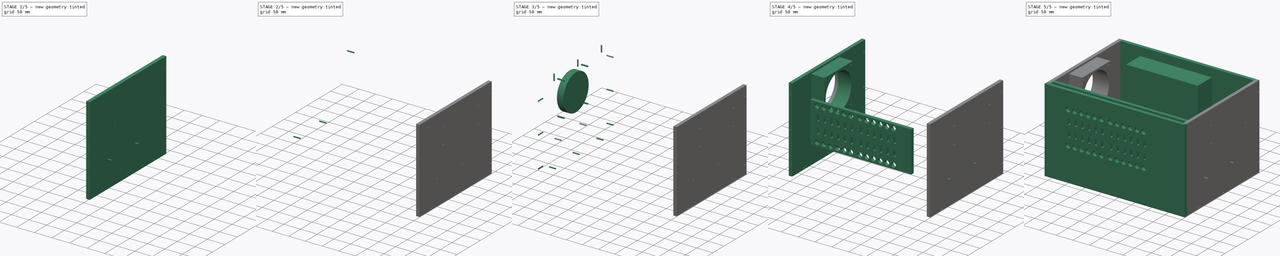
[diagram: build sequence overview — one tinted view per stage of 5, left to right]
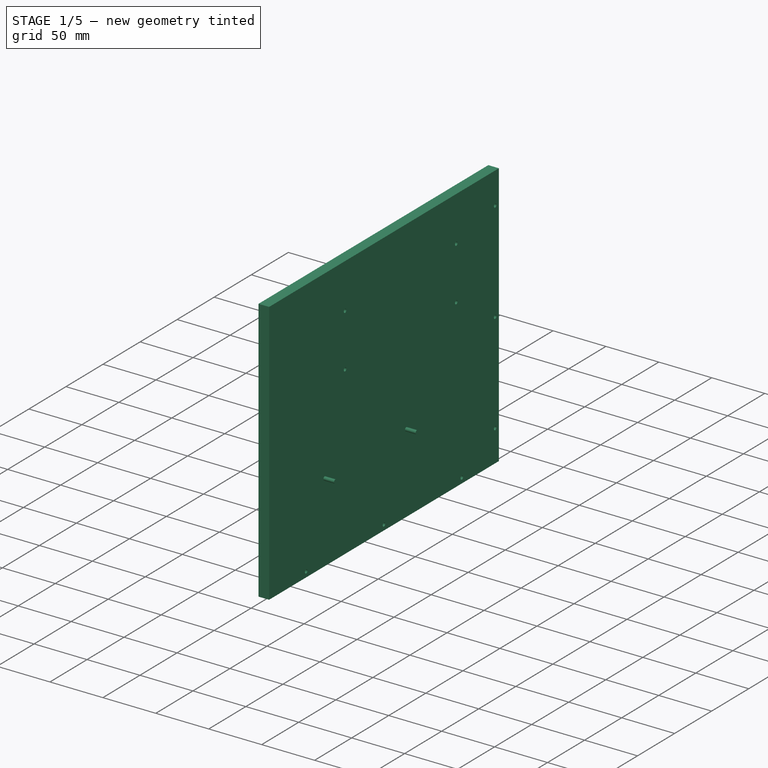
[diagram: stage 1 of 5 — iso view after this stage's code; geometry added in this stage tinted green]
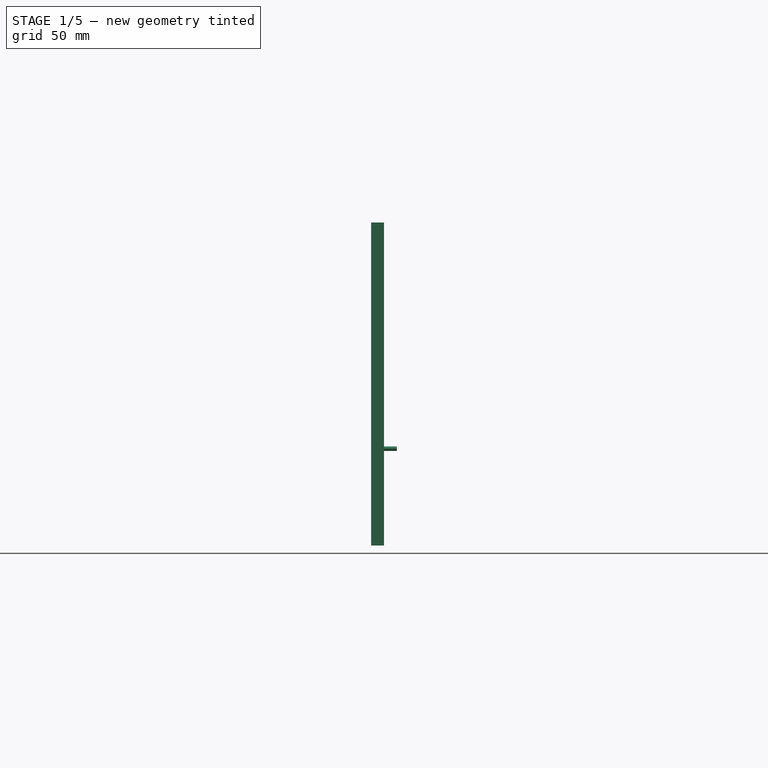
[diagram: stage 1 of 5 — front view after this stage's code; geometry added in this stage tinted green]
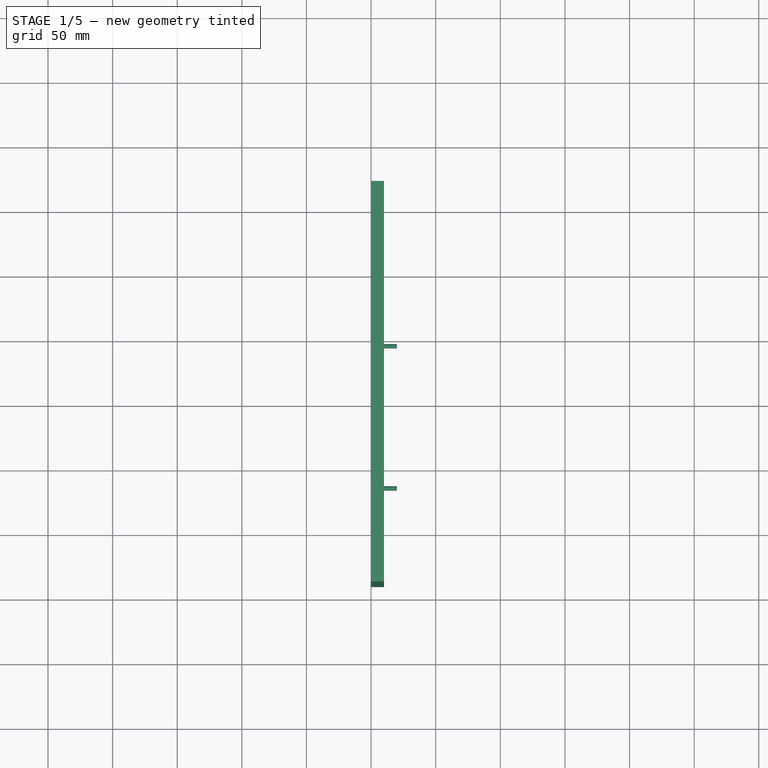
[diagram: stage 1 of 5 — top view after this stage's code; geometry added in this stage tinted green]
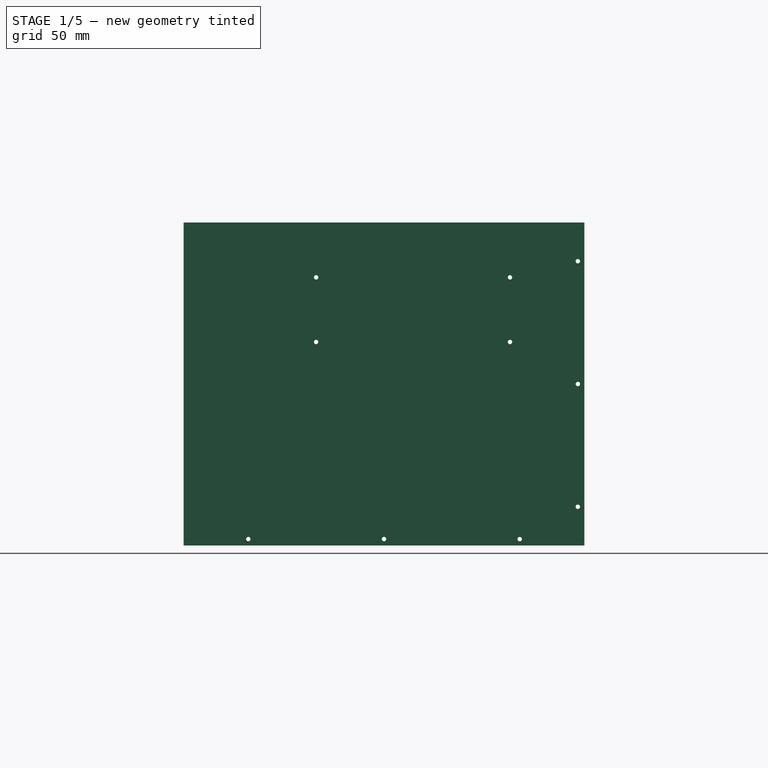
[diagram: stage 1 of 5 — right view after this stage's code; geometry added in this stage tinted green]
FCSTD DOCUMENT  (FreeCAD 0.16R6706 (Git))
Label: MSE-BOX
License: All rights reserved
LicenseURL: http://en.wikipedia.org/wiki/All_rights_reserved
objects: Drawing::FeatureViewPython×38, Part::Cylinder×34, Sketcher::SketchObject×16, PartDesign::Pad×15, Part::Cut×13, Part::MultiFuse×10, Drawing::FeatureViewPart×5, App::DocumentObjectGroup×3, Part::Box×1, Drawing::FeaturePage×1
note: 104 computed .brp shape members not serialized (recipe doc carries the construction recipe); baked Part::Feature solids carry a one-line shape summary decoded from their .brp

FEATURE [Sketcher::SketchObject] Sketch005  label="右侧板图"
  Placement = pos=(200,0,0) rot=(0.57735,0.57735,0.57735;2.0944rad)
  sketch-geometry (14):
    g0: LineSegment StartX=-140 StartY=240 StartZ=0 EndX=170 EndY=240 EndZ=0
    g1: LineSegment StartX=170 StartY=-10 StartZ=0 EndX=-140 EndY=-10 EndZ=0
    g2: LineSegment StartX=-140 StartY=-10 StartZ=0 EndX=-140 EndY=240 EndZ=0
    g3: LineSegment StartX=170 StartY=240 StartZ=0 EndX=170 EndY=-10 EndZ=0
    g4: Circle CenterX=165 CenterY=210 CenterZ=0 NormalX=0 NormalY=0 NormalZ=1 Radius=1.7
    g5: Circle CenterX=165 CenterY=115 CenterZ=0 NormalX=0 NormalY=0 NormalZ=1 Radius=1.7
    g6: Circle CenterX=165 CenterY=20 CenterZ=0 NormalX=0 NormalY=0 NormalZ=1 Radius=1.7
    g7: Circle CenterX=120 CenterY=-5 CenterZ=0 NormalX=0 NormalY=0 NormalZ=1 Radius=1.7
    g8: Circle CenterX=15 CenterY=-5 CenterZ=0 NormalX=0 NormalY=0 NormalZ=1 Radius=1.7
    g9: Circle CenterX=-90 CenterY=-5 CenterZ=0 NormalX=0 NormalY=0 NormalZ=1 Radius=1.7
    g10: Circle CenterX=-37.5 CenterY=197.5 CenterZ=0 NormalX=0 NormalY=0 NormalZ=1 Radius=1.7
    g11: Circle CenterX=-37.5 CenterY=147.5 CenterZ=0 NormalX=0 NormalY=0 NormalZ=1 Radius=1.7
    g12: Circle CenterX=112.5 CenterY=147.5 CenterZ=0 NormalX=0 NormalY=0 NormalZ=1 Radius=1.7
    g13: Circle CenterX=112.5 CenterY=197.5 CenterZ=0 NormalX=0 NormalY=0 NormalZ=1 Radius=1.7
  constraints (41):
    c: Coincident(g1,g2)
    c: Coincident(g2,g0)
    c: Horizontal(g0)
    c: Horizontal(g1)
    c: DistanceX(g0,g0) = 310
    c: Perpendicular(g2,g1)
    c: DistanceX(g0) = 170
    c: Coincident(g3,g0)
    c: Coincident(g3,g1)
    c: Perpendicular(g3,g1,g1) = 4.71239
    c: Radius(g4) = 1.7
    c: Radius(g9) = 1.7
    c: DistanceY(g-1,g9) = -5
    c: Radius(g8) = 1.7
    c: Radius(g5) = 1.7
    c: Radius(g6) = 1.7
    c: Radius(g7) = 1.7
    c: DistanceY(g-1,g8) = -5
    c: DistanceY(g-1,g7) = -5
    c: Distance(g6,g3) = 5
    c: Distance(g5,g3) = 5
    c: Distance(g4,g3) = 5
    c: Radius(g10) = 1.7
    c: Distance(g10,g0) = 42.5
    c: Equal(g10,g11)
    c: Equal(g11,g12)
    c: Equal(g12,g13)
    c: Distance(g11,g0) = 92.5
    c: Distance(g11,g2) = 102.5
    c: Distance(g13,g3) = 57.5
    c: Distance(g13,g0) = 42.5
    c: Distance(g12,g3) = 57.5
    c: Distance(g12,g0) = 92.5
    c: Distance(g4,g0) = 30
    c: Distance(g6,g1) = 30
    c: Distance(g0,g1) = 250
    c: DistanceY(g1,g-1) = 10
    c: Distance(g5,g1) = 125
    c: Distance(g7,g3) = 50
    c: Distance(g9,g2) = 50
    c: Distance(g8,g2) = 155
FEATURE [PartDesign::Pad] Pad005  label="右面板"
  Length = 10
  Length2 = 100
  Placement = pos=(200,0,0) rot=(0.57735,0.57735,0.57735;2.0944rad)
  Sketch = -> Sketch005
  Type = 0
FEATURE [Part::Box] Box  label="5V电源"
  Height = 115
  Length = 50
  Placement = pos=(150,-70,115) rot=(0,0,1;0rad)
  Width = 215
FEATURE [Part::Cylinder] Cylinder002  label="5V-M4-左下"
  Angle = 360
  Height = 61
  Placement = pos=(150,-37.5,147.5) rot=(0,1,0;1.5708rad)
  Radius = 1.7
FEATURE [Part::Cylinder] Cylinder004  label="5V-M4-左上"
  Angle = 360
  Height = 61
  Placement = pos=(150,-37.5,197.5) rot=(0,1,0;1.5708rad)
  Radius = 1.7
FEATURE [Part::Cylinder] Cylinder005  label="5V-M4-右下"
  Angle = 360
  Height = 61
  Placement = pos=(150,112.5,147.5) rot=(0,1,0;1.5708rad)
  Radius = 1.7
FEATURE [Part::Cylinder] Cylinder006  label="5V-M4-右上"
  Angle = 360
  Height = 61
  Placement = pos=(150,112.5,197.5) rot=(0,1,0;1.5708rad)
  Radius = 1.7
FEATURE [Part::MultiFuse] Fusion002  label="5V电源加螺丝"
  Shapes = -> [Cylinder006,Cylinder005,Cylinder004,Cylinder002,Box]
FEATURE [Part::Cut] Cut002  label="右侧开孔"
  Base = -> Pad005
  Tool = -> Fusion002
FEATURE [Part::Cylinder] Cylinder011  label="右侧前002"
  Angle = 360
  Height = 20
  Placement = pos=(205,-135,115) rot=(1,0,0;1.5708rad)
  Radius = 1.7
FEATURE [Part::Cylinder] Cylinder012  label="右侧前003"
  Angle = 360
  Height = 20
  Placement = pos=(205,-135,210) rot=(1,0,0;1.5708rad)
  Radius = 1.7
FEATURE [Part::Cut] Cut009
  Base = -> Cut002
  Tool = -> Cylinder011
FEATURE [Part::Cut] Cut010  label="ok"
  Base = -> Cut002
  Tool = -> Cylinder012
FEATURE [App::DocumentObjectGroup] ___  label="左边"
  Group = -> [Pad011,Cut012]
FEATURE [Part::Cylinder] Cylinder034  label="串口板右前002"
  Angle = 360
  Height = 20
  Placement = pos=(200,-65,65) rot=(0,1,0;1.5708rad)
  Radius = 1.7
FEATURE [Part::Cylinder] Cylinder035  label="串口板右后002"
  Angle = 360
  Height = 20
  Placement = pos=(200,45,65) rot=(0,1,0;1.5708rad)
  Radius = 1.7
FEATURE [Part::MultiFuse] Fusion010
  Shapes = -> [Cylinder034,Cylinder035]
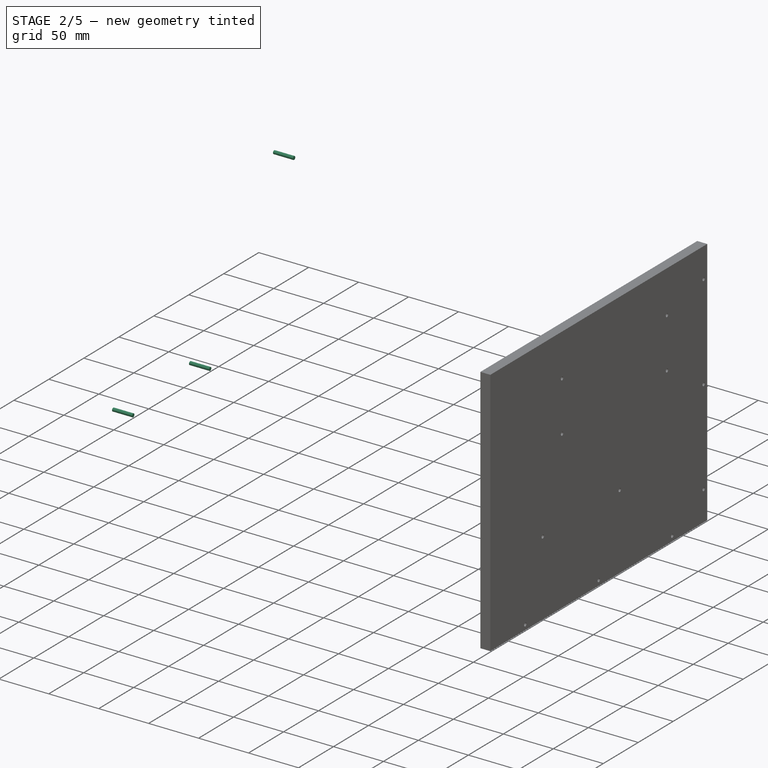
[diagram: stage 2 of 5 — iso view after this stage's code; geometry added in this stage tinted green]
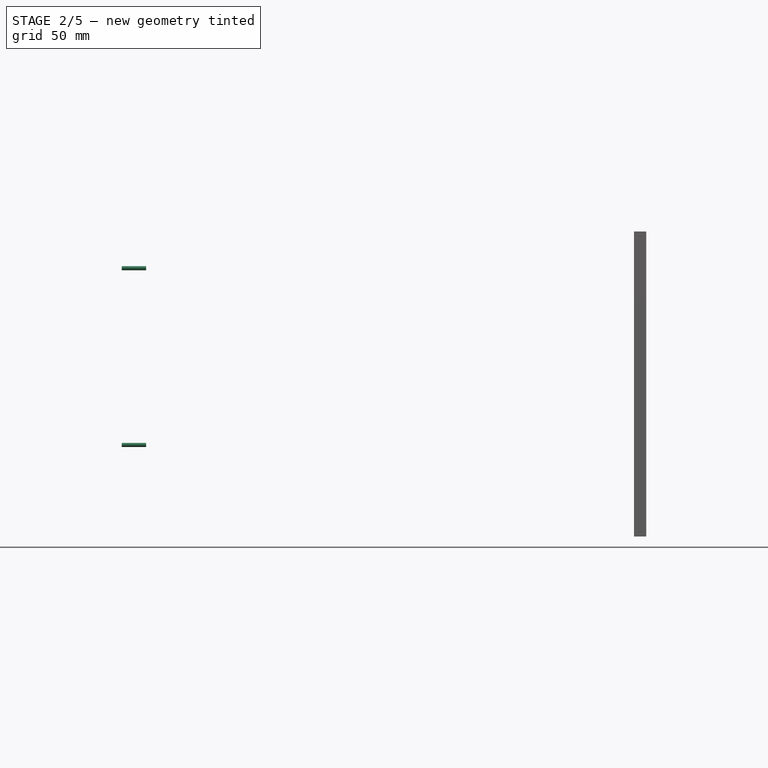
[diagram: stage 2 of 5 — front view after this stage's code; geometry added in this stage tinted green]
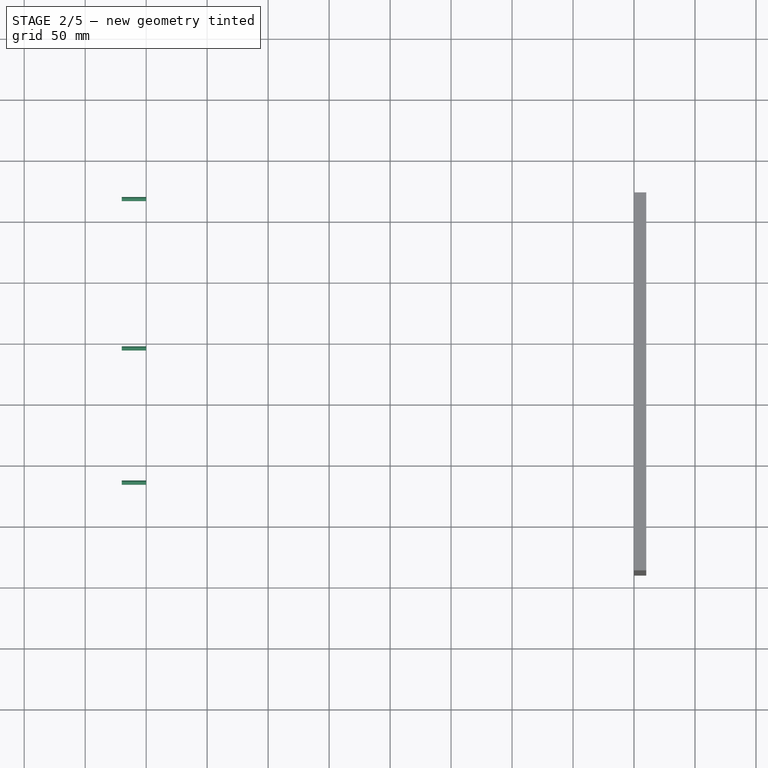
[diagram: stage 2 of 5 — top view after this stage's code; geometry added in this stage tinted green]
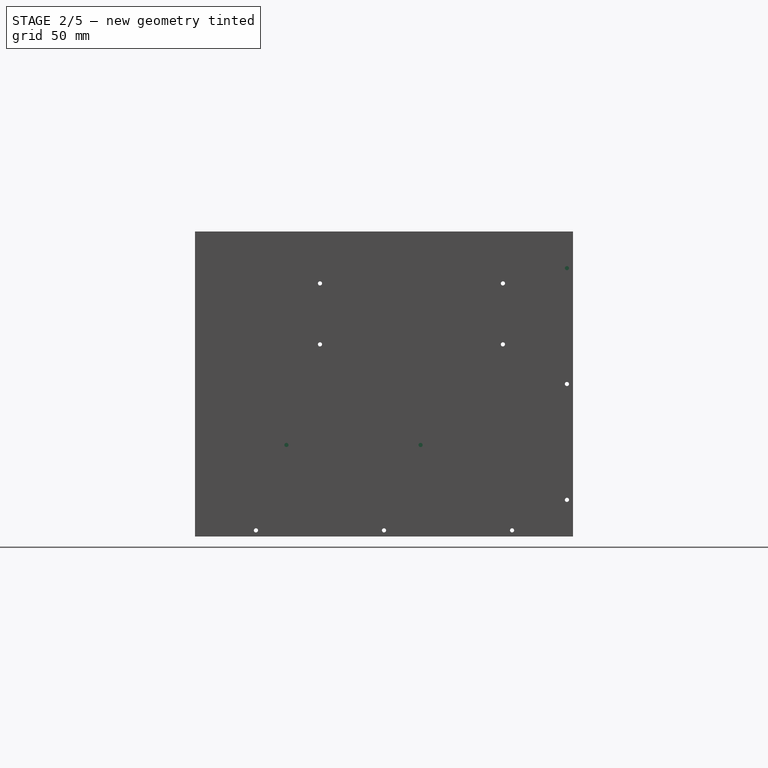
[diagram: stage 2 of 5 — right view after this stage's code; geometry added in this stage tinted green]
FEATURE [Part::Cylinder] Cylinder007  label="右侧-上001"
  Angle = 360
  Height = 20
  Placement = pos=(205,-90,235) rot=(0,0,1;0rad)
  Radius = 1.7
FEATURE [Part::Cylinder] Cylinder008  label="右侧-上002"
  Angle = 360
  Height = 20
  Placement = pos=(205,15,235) rot=(0,0,1;0rad)
  Radius = 1.7
FEATURE [Part::Cylinder] Cylinder009  label="右侧-上003"
  Angle = 360
  Height = 20
  Placement = pos=(205,120,235) rot=(0,0,1;0rad)
  Radius = 1.7
FEATURE [Part::Cylinder] Cylinder010  label="右侧前001"
  Angle = 360
  Height = 20
  Placement = pos=(205,-135,20) rot=(1,0,0;1.5708rad)
  Radius = 1.7
FEATURE [Part::Cut] Cut005
  Base = -> Cut002
  Tool = -> Cylinder007
FEATURE [Part::Cut] Cut006
  Base = -> Cut002
  Tool = -> Cylinder008
FEATURE [Part::Cut] Cut007
  Base = -> Cut002
  Tool = -> Cylinder009
FEATURE [Part::Cut] Cut008
  Base = -> Cut002
  Tool = -> Cylinder010
FEATURE [Part::MultiFuse] Fusion003  label="右侧开孔001"
  Shapes = -> [Cut005,Cut007,Cut006,Cut008,Cut009,Cut010]
FEATURE [Part::Cylinder] Cylinder019  label="串口板左前001"
  Angle = 360
  Height = 20
  Placement = pos=(-220,-65,65) rot=(0,1,0;1.5708rad)
  Radius = 1.7
FEATURE [Part::Cylinder] Cylinder020  label="串口板左后001"
  Angle = 360
  Height = 20
  Placement = pos=(-220,45,65) rot=(0,1,0;1.5708rad)
  Radius = 1.7
FEATURE [Part::Cylinder] Cylinder027  label="后3"
  Angle = 360
  Height = 20
  Placement = pos=(-220,165,210) rot=(0,1,0;1.5708rad)
  Radius = 1.7
FEATURE [Part::MultiFuse] Fusion008
  Shapes = -> [Cylinder019,Cylinder020]
FEATURE [Part::Cut] Cut013  label="右侧"
  Base = -> Fusion003
  Tool = -> Fusion010
FEATURE [App::DocumentObjectGroup] Group  label="右边"
  Group = -> [Cut013]
FEATURE [Drawing::FeatureViewPart] Ortho  label="Ortho_0_0"
  Direction = (1,0,0)
  HiddenWidth = 0.15
  LineWidth = 0.35
  Rotation = -90
  Scale = 0.5
  ShowHiddenLines = false
  ShowSmoothLines = false
  Source = -> Cut013
  Tolerance = 0.05
  ViewResult = <g id="Ortho_0_0"\n   transform="rotate(-90,207.5,176) translate(207.5,176) scale(0.5,0.5)"\n  >\n<g   stroke="rgb(0, 0, 0)"\n   stroke-width="0.7"\n   stroke-linecap="butt"\n   stroke-linejoin="miter"\n   fill="none"\n   transform="scale(1,-1)"\n  >\n<path id= "1" d=" M 240 140 L 240 -170 " />\n<path id= "2" d=" M -10 140 L 240 140 " />\n<path id= "3" d=" M 240 -170 L -10 -170 " />\n<path id= "4" d=" M -10 -170 L -10 140 " />\n<circle cx ="115" cy ="-165" r ="1.7" /><circle cx ="210" cy ="-165" r ="1.7" /><path d="M147.5 -114.2 A1.7 1.7 0 1 1 145.8 -112.5" /><path d="M145.8 -112.5 A1.7 1.7 0 0 1 147.5 -114.2" /><path d="M197.5 -114.2 A1.7 1.7 0 1 1 195.8 -112.5" /><path d="M195.8 -112.5 A1.7 1.7 0 0 1 197.5 -114.2" /><circle cx ="-5" cy ="-15" r ="1.7" /><circle cx ="20" cy ="-165" r ="1.7" /><circle cx ="-5" cy ="-120" r ="1.7" /><circle cx ="65" cy ="-45" r ="1.7" /><circle cx ="65" cy ="65" r ="1.7" /><path d="M147.5 35.8 A1.7 1.7 0 1 1 145.8 37.5" /><path d="M145.8 37.5 A1.7 1.7 0 0 1 147.5 35.8" /><path d="M197.5 35.8 A1.7 1.7 0 1 1 195.8 37.5" /><path d="M195.8 37.5 A1.7 1.7 0 0 1 197.5 35.8" /><circle cx ="-5" cy ="90" r ="1.7" /></g>\n</g>
  Visible = true
  X = 207.5
  Y = 176
FEATURE [Drawing::FeatureViewPart] Ortho001  label="Ortho_-1_0"
  Direction = (0,-1,0)
  HiddenWidth = 0.15
  LineWidth = 0.35
  Rotation = 90
  Scale = 0.5
  ShowHiddenLines = false
  ShowSmoothLines = false
  Source = -> Cut013
  Tolerance = 0.05
  ViewResult = <g id="Ortho_-1_0"\n   transform="rotate(90,-23.75,176) translate(-23.75,176) scale(0.5,0.5)"\n  >\n<g   stroke="rgb(0, 0, 0)"\n   stroke-width="0.7"\n   stroke-linecap="butt"\n   stroke-linejoin="miter"\n   fill="none"\n   transform="scale(1,-1)"\n  >\n<path id= "1" d=" M -240 200 L -240 210 " />\n<path id= "2" d=" M 10 200 L 10 210 " />\n<path id= "3" d=" M 10 200 L -240 200 " />\n<path id= "4" d=" M 10 210 L -240 210 " />\n<circle cx ="-210" cy ="205" r ="1.7" /><circle cx ="-115" cy ="205" r ="1.7" /><circle cx ="-20" cy ="205" r ="1.7" /></g>\n</g>
  Visible = true
  X = -23.75
  Y = 176
FEATURE [Drawing::FeatureViewPart] Ortho002  label="Ortho_1_0"
  Direction = (0,1,0)
  HiddenWidth = 0.15
  LineWidth = 0.35
  Rotation = -90
  Scale = 0.5
  ShowHiddenLines = false
  ShowSmoothLines = false
  Source = -> Cut013
  Tolerance = 0.05
  ViewResult = <g id="Ortho_1_0"\n   transform="rotate(-90,453.75,176) translate(453.75,176) scale(0.5,0.5)"\n  >\n<g   stroke="rgb(0, 0, 0)"\n   stroke-width="0.7"\n   stroke-linecap="butt"\n   stroke-linejoin="miter"\n   fill="none"\n   transform="scale(1,-1)"\n  >\n<path id= "1" d=" M 240 200 L 240 210 " />\n<path id= "2" d=" M 240 200 L -10 200 " />\n<path id= "3" d=" M 240 210 L -10 210 " />\n<path id= "4" d=" M -10 200 L -10 210 " />\n</g>\n</g>
  Visible = true
  X = 453.75
  Y = 176
FEATURE [Drawing::FeatureViewPart] Ortho003  label="Ortho_0_1"
  Direction = (0,0,1)
  HiddenWidth = 0.15
  LineWidth = 0.35
  Rotation = 90
  Scale = 0.5
  ShowHiddenLines = false
  ShowSmoothLines = false
  Source = -> Cut013
  Tolerance = 0.05
  ViewResult = <g id="Ortho_0_1"\n   transform="rotate(90,207.5,-69.5) translate(207.5,-69.5) scale(0.5,0.5)"\n  >\n<g   stroke="rgb(0, 0, 0)"\n   stroke-width="0.7"\n   stroke-linecap="butt"\n   stroke-linejoin="miter"\n   fill="none"\n   transform="scale(1,-1)"\n  >\n<path id= "1" d=" M 200 -140 L 210 -140 " />\n<path id= "2" d=" M 200 -140 L 200 170 " />\n<path id= "3" d=" M 210 -140 L 210 170 " />\n<path id= "4" d=" M 200 170 L 210 170 " />\n<circle cx ="205" cy ="-90" r ="1.7" /><circle cx ="205" cy ="15" r ="1.7" /><circle cx ="205" cy ="120" r ="1.7" /><path id= "8" d=" M 200 121.7 L 210 121.7 " />\n</g>\n</g>
  Visible = true
  X = 207.5
  Y = -69.5
FEATURE [Drawing::FeatureViewPart] Ortho004  label="Ortho_0_-1"
  Direction = (0,0,-1)
  HiddenWidth = 0.15
  LineWidth = 0.35
  Rotation = 90
  Scale = 0.5
  ShowHiddenLines = false
  ShowSmoothLines = false
  Source = -> Cut013
  Tolerance = 0.05
  ViewResult = <blob: 3025 chars omitted>
  Visible = true
  X = 207.5
  Y = 306.5
FEATURE [Drawing::FeatureViewPython] dim001  # drawing view (typed FeaturePython)
  Rotation = 0
  ViewResult = <g> \n  <line x1="137.500000" y1="28.500000" x2="137.500000" y2="23.291591" style="stroke:rgb(0,0,255);stroke-width:0.50" />\n<line x1="292.500000" y1="28.500000" x2="292.500000" y2="23.291591" style="stroke:rgb(0,0,255);stroke-width:0.50" />\n<line x1="137.500000" y1="24.291591" x2="292.500000" y2="24.291591" style="stroke:rgb(0,0,255);stroke-width:0.50" /> \n  <polygon points="292.500000,24.291591 289.500000,23.291591 288.500000,24.291591 289.500000,25.291591" style="fill:rgb(0,0,255);stroke:rgb(0,0,255);stroke-width:0" /><polygon points="137.500000,24.291591 140.500000,25.291591 141.500000,24.291591 140.500000,23.291591" style="fill:rgb(0,0,255);stroke:rgb(0,0,255);stroke-width:0" /> \n  <text x="215.000000" y="22.291591" font-family="inherit" font-size="3.6" fill="rgb(0,0,255)" text-anchor="middle" transform="rotate(0.000000 215.000000,22.291591)" >310</text> </g>
  Visible = true
  X = 0
  Y = 0
  arrowL1 = 3
  arrowL2 = 1
  arrowW = 2
  arrow_scheme = 0
  autoPlaceOffset = 2
  autoPlaceText = true
  click1_x = 199.691
  click1_y = 24.2916
  click2_x = 199.691
  click2_y = 24.2916
  comma_decimal_place = false
  dimension_line_overshoot = 1
  gap_datum_points = 2
  halfDimension_linear = false
  lineColor = rgb(0,0,255)
  strokeWidth = 0.5
  textFormat_linear = %(value)3.3f
  textRenderer_color = rgb(0,0,255)
  textRenderer_family = inherit
  textRenderer_size = 3.6
  unit_custom_scale = 1
  unit_scheme = 0
FEATURE [Drawing::FeatureViewPython] dim002  # drawing view (typed FeaturePython)
  Rotation = 0
  ViewResult = <g> \n  <line x1="74.250000" y1="181.000000" x2="69.016940" y2="181.000000" style="stroke:rgb(0,0,255);stroke-width:0.50" />\n<line x1="74.250000" y1="56.000000" x2="69.016940" y2="56.000000" style="stroke:rgb(0,0,255);stroke-width:0.50" />\n<line x1="70.016940" y1="181.000000" x2="70.016940" y2="56.000000" style="stroke:rgb(0,0,255);stroke-width:0.50" /> \n  <polygon points="70.016940,56.000000 69.016940,59.000000 70.016940,60.000000 71.016940,59.000000" style="fill:rgb(0,0,255);stroke:rgb(0,0,255);stroke-width:0" /><polygon points="70.016940,181.000000 71.016940,178.000000 70.016940,177.000000 69.016940,178.000000" style="fill:rgb(0,0,255);stroke:rgb(0,0,255);stroke-width:0" /> \n  <text x="68.016940" y="118.500000" font-family="inherit" font-size="3.6" fill="rgb(0,0,255)" text-anchor="middle" transform="rotate(-90.000000 68.016940,118.500000)" >250</text> </g>
  Visible = true
  X = 0
  Y = 0
  arrowL1 = 3
  arrowL2 = 1
  arrowW = 2
  arrow_scheme = 0
  autoPlaceOffset = 2
  autoPlaceText = true
  click1_x = 70.0169
  click1_y = 94.6658
  click2_x = 70.0169
  click2_y = 94.6658
  comma_decimal_place = false
  dimension_line_overshoot = 1
  gap_datum_points = 2
  halfDimension_linear = false
  lineColor = rgb(0,0,255)
  strokeWidth = 0.5
  textFormat_linear = %(value)3.3f
  textRenderer_color = rgb(0,0,255)
  textRenderer_family = inherit
  textRenderer_size = 3.6
  unit_custom_scale = 1
  unit_scheme = 0
FEATURE [Drawing::FeatureViewPython] dim003  # drawing view (typed FeaturePython)
  Rotation = 0
  ViewResult = <g> \n  <line x1="137.500000" y1="54.000000" x2="137.500000" y2="51.155475" style="stroke:rgb(0,0,255);stroke-width:0.50" />\n<line x1="292.500000" y1="54.000000" x2="292.500000" y2="51.155475" style="stroke:rgb(0,0,255);stroke-width:0.50" />\n<line x1="137.500000" y1="52.155475" x2="292.500000" y2="52.155475" style="stroke:rgb(0,0,255);stroke-width:0.50" /> \n  <polygon points="292.500000,52.155475 289.500000,51.155475 288.500000,52.155475 289.500000,53.155475" style="fill:rgb(0,0,255);stroke:rgb(0,0,255);stroke-width:0" /><polygon points="137.500000,52.155475 140.500000,53.155475 141.500000,52.155475 140.500000,51.155475" style="fill:rgb(0,0,255);stroke:rgb(0,0,255);stroke-width:0" /> \n  <text x="215.000000" y="50.155475" font-family="inherit" font-size="3.6" fill="rgb(0,0,255)" text-anchor="middle" transform="rotate(0.000000 215.000000,50.155475)" >310</text> </g>
  Visible = true
  X = 0
  Y = 0
  arrowL1 = 3
  arrowL2 = 1
  arrowW = 2
  arrow_scheme = 0
  autoPlaceOffset = 2
  autoPlaceText = true
  click1_x = 191.832
  click1_y = 52.1555
  click2_x = 191.832
  click2_y = 52.1555
  comma_decimal_place = false
  dimension_line_overshoot = 1
  gap_datum_points = 2
  halfDimension_linear = false
  lineColor = rgb(0,0,255)
  strokeWidth = 0.5
  textFormat_linear = %(value)3.3f
  textRenderer_color = rgb(0,0,255)
  textRenderer_family = inherit
  textRenderer_size = 3.6
  unit_custom_scale = 1
  unit_scheme = 0
FEATURE [Drawing::FeatureViewPython] dim004  # drawing view (typed FeaturePython)
  Rotation = 0
  ViewResult = <g> \n  <line x1="135.500000" y1="181.000000" x2="131.174835" y2="181.000000" style="stroke:rgb(0,0,255);stroke-width:0.50" />\n<line x1="135.500000" y1="56.000000" x2="131.174835" y2="56.000000" style="stroke:rgb(0,0,255);stroke-width:0.50" />\n<line x1="132.174835" y1="181.000000" x2="132.174835" y2="56.000000" style="stroke:rgb(0,0,255);stroke-width:0.50" /> \n  <polygon points="132.174835,56.000000 131.174835,59.000000 132.174835,60.000000 133.174835,59.000000" style="fill:rgb(0,0,255);stroke:rgb(0,0,255);stroke-width:0" /><polygon points="132.174835,181.000000 133.174835,178.000000 132.174835,177.000000 131.174835,178.000000" style="fill:rgb(0,0,255);stroke:rgb(0,0,255);stroke-width:0" /> \n  <text x="130.174835" y="118.500000" font-family="inherit" font-size="3.6" fill="rgb(0,0,255)" text-anchor="middle" transform="rotate(-90.000000 130.174835,118.500000)" >250</text> </g>
  Visible = true
  X = 0
  Y = 0
  arrowL1 = 3
  arrowL2 = 1
  arrowW = 2
  arrow_scheme = 0
  autoPlaceOffset = 2
  autoPlaceText = true
  click1_x = 132.175
  click1_y = 96.4519
  click2_x = 132.175
  click2_y = 96.4519
  comma_decimal_place = false
  dimension_line_overshoot = 1
  gap_datum_points = 2
  halfDimension_linear = false
  lineColor = rgb(0,0,255)
  strokeWidth = 0.5
  textFormat_linear = %(value)3.3f
  textRenderer_color = rgb(0,0,255)
  textRenderer_family = inherit
  textRenderer_size = 3.6
  unit_custom_scale = 1
  unit_scheme = 0
FEATURE [Drawing::FeatureViewPython] dim005  # drawing view (typed FeaturePython)
  Rotation = 0
  ViewResult = <g> \n  <line x1="135.500000" y1="35.500000" x2="127.602542" y2="35.500000" style="stroke:rgb(0,0,255);stroke-width:0.50" />\n<line x1="135.500000" y1="30.500000" x2="127.602542" y2="30.500000" style="stroke:rgb(0,0,255);stroke-width:0.50" />\n<line x1="128.602542" y1="35.500000" x2="128.602542" y2="30.500000" style="stroke:rgb(0,0,255);stroke-width:0.50" /> \n  <polygon points="128.602542,30.500000 129.602542,27.500000 128.602542,26.500000 127.602542,27.500000" style="fill:rgb(0,0,255);stroke:rgb(0,0,255);stroke-width:0" /><polygon points="128.602542,35.500000 127.602542,38.500000 128.602542,39.500000 129.602542,38.500000" style="fill:rgb(0,0,255);stroke:rgb(0,0,255);stroke-width:0" /> \n  <text x="126.602542" y="33.000000" font-family="inherit" font-size="3.6" fill="rgb(0,0,255)" text-anchor="middle" transform="rotate(-90.000000 126.602542,33.000000)" >10</text> </g>
  Visible = true
  X = 0
  Y = 0
  arrowL1 = 3
  arrowL2 = 1
  arrowW = 2
  arrow_scheme = 0
  autoPlaceOffset = 2
  autoPlaceText = true
  click1_x = 128.603
  click1_y = 32.5079
  click2_x = 128.603
  click2_y = 32.5079
  comma_decimal_place = false
  dimension_line_overshoot = 1
  gap_datum_points = 2
  halfDimension_linear = false
  lineColor = rgb(0,0,255)
  strokeWidth = 0.5
  textFormat_linear = %(value)3.3f
  textRenderer_color = rgb(0,0,255)
  textRenderer_family = inherit
  textRenderer_size = 3.6
  unit_custom_scale = 1
  unit_scheme = 0
FEATURE [Drawing::FeatureViewPython] dim006  # drawing view (typed FeaturePython)
  Rotation = 0
  ViewResult = <g> \n  <line x1="81.250000" y1="54.000000" x2="81.250000" y2="49.369329" style="stroke:rgb(0,0,255);stroke-width:0.50" />\n<line x1="76.250000" y1="54.000000" x2="76.250000" y2="49.369329" style="stroke:rgb(0,0,255);stroke-width:0.50" />\n<line x1="81.250000" y1="50.369329" x2="76.250000" y2="50.369329" style="stroke:rgb(0,0,255);stroke-width:0.50" /> \n  <polygon points="76.250000,50.369329 73.250000,49.369329 72.250000,50.369329 73.250000,51.369329" style="fill:rgb(0,0,255);stroke:rgb(0,0,255);stroke-width:0" /><polygon points="81.250000,50.369329 84.250000,51.369329 85.250000,50.369329 84.250000,49.369329" style="fill:rgb(0,0,255);stroke:rgb(0,0,255);stroke-width:0" /> \n  <text x="78.750000" y="48.369329" font-family="inherit" font-size="3.6" fill="rgb(0,0,255)" text-anchor="middle" transform="rotate(-0.000000 78.750000,48.369329)" >10</text> </g>
  Visible = true
  X = 0
  Y = 0
  arrowL1 = 3
  arrowL2 = 1
  arrowW = 2
  arrow_scheme = 0
  autoPlaceOffset = 2
  autoPlaceText = true
  click1_x = 76.0898
  click1_y = 50.3693
  click2_x = 76.0898
  click2_y = 50.3693
  comma_decimal_place = false
  dimension_line_overshoot = 1
  gap_datum_points = 2
  halfDimension_linear = false
  lineColor = rgb(0,0,255)
  strokeWidth = 0.5
  textFormat_linear = %(value)3.3f
  textRenderer_color = rgb(0,0,255)
  textRenderer_family = inherit
  textRenderer_size = 3.6
  unit_custom_scale = 1
  unit_scheme = 0
FEATURE [Drawing::FeatureViewPython] centerLines001  # drawing view (typed FeaturePython)
  Rotation = 0
  ViewResult = <g transform="scale(0.500000,0.500000)" stroke="rgb(0,0,255)"  stroke-width="0.640000" > <path d="M 430.000000,112.000000 L 430.000000,118.000000 M 430.000000,122.000000 L 430.000000,134.000000 M 430.000000,138.000000 L 430.000000,144.000000 M 430.000000,148.000000 L 430.000000,160.000000 M 430.000000,164.000000 L 430.000000,170.000000 M 430.000000,174.000000 L 430.000000,186.000000 M 430.000000,190.000000 L 430.000000,196.000000 M 430.000000,200.000000 L 430.000000,212.000000 M 430.000000,216.000000 L 430.000000,222.000000 M 430.000000,226.000000 L 430.000000,238.000000 M 430.000000,242.000000 L 430.000000,248.000000 M 430.000000,252.000000 L 430.000000,264.000000 M 430.000000,268.000000 L 430.000000,274.000000 M 430.000000,278.000000 L 430.000000,290.000000 M 430.000000,294.000000 L 430.000000,300.000000 M 430.000000,304.000000 L 430.000000,316.000000 M 430.000000,320.000000 L 430.000000,326.000000 M 430.000000,330.000000 L 430.000000,342.000000 M 430.000000,346.000000 L 430.000000,352.000000 M 430.000000,356.000000 L 430.000000,368.000000 M 430.000000,372.000000 L 430.000000,378.000000 M 430.000000,382.000000 L 430.000000,394.000000 M 430.000000,398.000000 L 430.000000,404.000000 M 430.000000,408.000000 L 430.000000,420.000000 M 430.000000,424.000000 L 430.000000,430.000000 "/>\n<path d="M 430.000000,112.000000 L 430.000000,106.000000 M 430.000000,102.000000 L 430.000000,90.000000 M 430.000000,86.000000 L 430.000000,80.000000 M 430.000000,76.000000 L 430.000000,64.000000 M 430.000000,60.000000 L 430.000000,54.000000 M 430.000000,50.000000 L 430.000000,38.000000 M 430.000000,34.000000 L 430.000000,32.150636 "/> </g> 
  Visible = true
  X = 0
  Y = 0
  centerLine_color = rgb(0,0,255)
  centerLine_len_dash = 6
  centerLine_len_dot = 3
  centerLine_len_gap = 2
  centerLine_width = 0.32
  click1_x = 220.41
  click1_y = 216.124
  click2_x = 214.695
  click2_y = 16.0753
FEATURE [Drawing::FeatureViewPython] centerLines002  # drawing view (typed FeaturePython)
  Rotation = 0
  ViewResult = <blob: 2328 chars omitted>
  Visible = true
  X = 0
  Y = 0
  centerLine_color = rgb(0,0,255)
  centerLine_len_dash = 6
  centerLine_len_dot = 3
  centerLine_len_gap = 2
  centerLine_width = 0.32
  click1_x = 357.587
  click1_y = 117.171
  click2_x = 60.729
  click2_y = 119.315
FEATURE [Drawing::FeatureViewPython] dia001  # drawing view (typed FeaturePython)
  Rotation = 0
  ViewResult = <g>  <circle cx ="162.500000" cy ="33.000000" r="0.250000" stroke="none" fill="rgb(0,0,255)" /> \n<line x1="150.036299" y1="42.510285" x2="163.175747" y2="33.515621" style="stroke:rgb(0,0,255);stroke-width:0.50" />\n<polygon points="161.824253,32.484379 160.045875,29.869542 158.644265,30.057925 158.832648,31.459535" style="fill:rgb(0,0,255);stroke:rgb(0,0,255);stroke-width:0" />\n<polygon points="163.175747,33.515621 164.954125,36.130458 166.355735,35.942075 166.167352,34.540465" style="fill:rgb(0,0,255);stroke:rgb(0,0,255);stroke-width:0" />\n<line x1="150.036299" y1="42.510285" x2="140.033879" y2="42.510285" style="stroke:rgb(0,0,255);stroke-width:0.50" />\n<text x="145.035089" y="40.510285" font-family="inherit" font-size="3.6" fill="rgb(0,0,255)" text-anchor="middle" transform="rotate(0.000000 145.035089,40.510285)" >Ø3.4</text> </g>
  Visible = true
  X = 0
  Y = 0
  arrowL1 = 3
  arrowL2 = 1
  arrowW = 2
  arrow_scheme = 0
  autoPlaceOffset = 2
  autoPlaceText = true
  centerPointDia = 0.5
  click1_x = 150.036
  click1_y = 42.5103
  click2_x = 140.034
  click2_y = 42.5103
  click3_x = 140.034
  click3_y = 42.5103
  comma_decimal_place = false
  lineColor = rgb(0,0,255)
  strokeWidth = 0.5
  textFormat_circular = Ø%(value)3.3f
  textRenderer_color = rgb(0,0,255)
  textRenderer_family = inherit
  textRenderer_size = 3.6
  unit_custom_scale = 1
  unit_scheme = 0
FEATURE [Drawing::FeatureViewPython] dia002  # drawing view (typed FeaturePython)
  Rotation = 0
  ViewResult = <g>  <circle cx ="78.750000" cy ="71.000000" r="0.250000" stroke="none" fill="rgb(0,0,255)" /> \n<line x1="87.521174" y1="65.372959" x2="79.465431" y2="71.458976" style="stroke:rgb(0,0,255);stroke-width:0.50" />\n<polygon points="78.034569,70.541024 76.049491,68.079426 74.667837,68.381137 74.969548,69.762792" style="fill:rgb(0,0,255);stroke:rgb(0,0,255);stroke-width:0" />\n<polygon points="79.465431,71.458976 81.450509,73.920574 82.832163,73.618863 82.530452,72.237208" style="fill:rgb(0,0,255);stroke:rgb(0,0,255);stroke-width:0" />\n<line x1="87.521174" y1="65.372959" x2="95.737448" y2="65.372959" style="stroke:rgb(0,0,255);stroke-width:0.50" />\n<text x="91.629311" y="63.372959" font-family="inherit" font-size="3.6" fill="rgb(0,0,255)" text-anchor="middle" transform="rotate(0.000000 91.629311,63.372959)" >Ø3.4</text> </g>
  Visible = true
  X = 0
  Y = 0
  arrowL1 = 3
  arrowL2 = 1
  arrowW = 2
  arrow_scheme = 0
  autoPlaceOffset = 2
  autoPlaceText = true
  centerPointDia = 0.5
  click1_x = 87.5212
  click1_y = 65.373
  click2_x = 95.7374
  click2_y = 65.373
  click3_x = 95.7374
  click3_y = 65.373
  comma_decimal_place = false
  lineColor = rgb(0,0,255)
  strokeWidth = 0.5
  textFormat_circular = Ø%(value)3.3f
  textRenderer_color = rgb(0,0,255)
  textRenderer_family = inherit
  textRenderer_size = 3.6
  unit_custom_scale = 1
  unit_scheme = 0
FEATURE [Drawing::FeatureViewPython] dia004  # drawing view (typed FeaturePython)
  Rotation = 0
  ViewResult = <g>  <circle cx ="188.750000" cy ="77.250000" r="0.250000" stroke="none" fill="rgb(0,0,255)" /> \n<line x1="180.036709" y1="71.108839" x2="189.444776" y2="77.739680" style="stroke:rgb(0,0,255);stroke-width:0.50" />\n<polygon points="188.055224,76.760320 186.179170,74.214652 184.785693,74.455941 185.026981,75.849418" style="fill:rgb(0,0,255);stroke:rgb(0,0,255);stroke-width:0" />\n<polygon points="189.444776,77.739680 191.320830,80.285348 192.714307,80.044059 192.473019,78.650582" style="fill:rgb(0,0,255);stroke:rgb(0,0,255);stroke-width:0" />\n<line x1="180.036709" y1="71.108839" x2="172.337026" y2="71.108839" style="stroke:rgb(0,0,255);stroke-width:0.50" />\n<text x="176.186868" y="69.108839" font-family="inherit" font-size="3.6" fill="rgb(0,0,255)" text-anchor="middle" transform="rotate(0.000000 176.186868,69.108839)" >Ø3.4</text> </g>
  Visible = true
  X = 0
  Y = 0
  arrowL1 = 3
  arrowL2 = 1
  arrowW = 2
  arrow_scheme = 0
  autoPlaceOffset = 2
  autoPlaceText = true
  centerPointDia = 0.5
  click1_x = 180.037
  click1_y = 71.1088
  click2_x = 172.337
  click2_y = 71.1088
  click3_x = 172.337
  click3_y = 71.1088
  comma_decimal_place = false
  lineColor = rgb(0,0,255)
  strokeWidth = 0.5
  textFormat_circular = Ø%(value)3.3f
  textRenderer_color = rgb(0,0,255)
  textRenderer_family = inherit
  textRenderer_size = 3.6
  unit_custom_scale = 1
  unit_scheme = 0
FEATURE [Drawing::FeatureViewPython] dia005  # drawing view (typed FeaturePython)
  Rotation = 0
  ViewResult = <g>  <circle cx ="189.600000" cy ="103.100000" r="0.250000" stroke="none" fill="rgb(0,0,255)" /> \n<line x1="180.942554" y1="97.151885" x2="190.300582" y2="103.581336" style="stroke:rgb(0,0,255);stroke-width:0.50" />\n<polygon points="188.899418,102.618664 186.993053,100.095615 185.602561,100.353551 185.860497,101.744044" style="fill:rgb(0,0,255);stroke:rgb(0,0,255);stroke-width:0" />\n<polygon points="190.300582,103.581336 192.206947,106.104385 193.597439,105.846449 193.339503,104.455956" style="fill:rgb(0,0,255);stroke:rgb(0,0,255);stroke-width:0" />\n<line x1="180.942554" y1="97.151885" x2="173.922255" y2="97.151885" style="stroke:rgb(0,0,255);stroke-width:0.50" />\n<text x="177.432405" y="95.151885" font-family="inherit" font-size="3.6" fill="rgb(0,0,255)" text-anchor="middle" transform="rotate(0.000000 177.432405,95.151885)" >Ø3.4</text> </g>
  Visible = true
  X = 0
  Y = 0
  arrowL1 = 3
  arrowL2 = 1
  arrowW = 2
  arrow_scheme = 0
  autoPlaceOffset = 2
  autoPlaceText = true
  centerPointDia = 0.5
  click1_x = 180.943
  click1_y = 97.1519
  click2_x = 173.922
  click2_y = 97.3783
  click3_x = 173.922
  click3_y = 97.3783
  comma_decimal_place = false
  lineColor = rgb(0,0,255)
  strokeWidth = 0.5
  textFormat_circular = Ø%(value)3.3f
  textRenderer_color = rgb(0,0,255)
  textRenderer_family = inherit
  textRenderer_size = 3.6
  unit_custom_scale = 1
  unit_scheme = 0
FEATURE [Drawing::FeatureViewPython] dia003  # drawing view (typed FeaturePython)
  Rotation = 0
  ViewResult = <g>  <circle cx ="162.500000" cy ="178.500000" r="0.250000" stroke="none" fill="rgb(0,0,255)" /> \n<line x1="156.109197" y1="171.470056" x2="163.071769" y2="179.128952" style="stroke:rgb(0,0,255);stroke-width:0.50" />\n<polygon points="161.928231,177.871048 160.650165,174.978550 159.237552,174.911277 159.170279,176.323889" style="fill:rgb(0,0,255);stroke:rgb(0,0,255);stroke-width:0" />\n<polygon points="163.071769,179.128952 164.349835,182.021450 165.762448,182.088723 165.829721,180.676111" style="fill:rgb(0,0,255);stroke:rgb(0,0,255);stroke-width:0" />\n<line x1="156.109197" y1="171.470056" x2="151.107987" y2="171.470056" style="stroke:rgb(0,0,255);stroke-width:0.50" />\n<text x="153.608592" y="169.470056" font-family="inherit" font-size="3.6" fill="rgb(0,0,255)" text-anchor="middle" transform="rotate(0.000000 153.608592,169.470056)" >Ø3.4</text> </g>
  Visible = true
  X = 0
  Y = 0
  arrowL1 = 3
  arrowL2 = 1
  arrowW = 2
  arrow_scheme = 0
  autoPlaceOffset = 2
  autoPlaceText = true
  centerPointDia = 0.5
  click1_x = 156.109
  click1_y = 171.47
  click2_x = 151.108
  click2_y = 172.542
  click3_x = 151.108
  click3_y = 172.542
  comma_decimal_place = false
  lineColor = rgb(0,0,255)
  strokeWidth = 0.5
  textFormat_circular = Ø%(value)3.3f
  textRenderer_color = rgb(0,0,255)
  textRenderer_family = inherit
  textRenderer_size = 3.6
  unit_custom_scale = 1
  unit_scheme = 0
FEATURE [Drawing::FeatureViewPython] dia006  # drawing view (typed FeaturePython)
  Rotation = 0
  ViewResult = <g>  <circle cx ="290.000000" cy ="71.000000" r="0.250000" stroke="none" fill="rgb(0,0,255)" /> \n<line x1="297.571993" y1="66.087417" x2="290.713073" y2="71.462630" style="stroke:rgb(0,0,255);stroke-width:0.50" />\n<polygon points="289.286927,70.537370 287.314468,68.065648 285.931288,68.360288 286.225927,69.743468" style="fill:rgb(0,0,255);stroke:rgb(0,0,255);stroke-width:0" />\n<polygon points="290.713073,71.462630 292.685532,73.934352 294.068712,73.639712 293.774073,72.256532" style="fill:rgb(0,0,255);stroke:rgb(0,0,255);stroke-width:0" />\n<line x1="297.571993" y1="66.087417" x2="304.359350" y2="66.087417" style="stroke:rgb(0,0,255);stroke-width:0.50" />\n<text x="300.965671" y="64.087417" font-family="inherit" font-size="3.6" fill="rgb(0,0,255)" text-anchor="middle" transform="rotate(0.000000 300.965671,64.087417)" >Ø3.4</text> </g>
  Visible = true
  X = 0
  Y = 0
  arrowL1 = 3
  arrowL2 = 1
  arrowW = 2
  arrow_scheme = 0
  autoPlaceOffset = 2
  autoPlaceText = true
  centerPointDia = 0.5
  click1_x = 297.572
  click1_y = 66.0874
  click2_x = 304.359
  click2_y = 66.0874
  click3_x = 304.359
  click3_y = 66.0874
  comma_decimal_place = false
  lineColor = rgb(0,0,255)
  strokeWidth = 0.5
  textFormat_circular = Ø%(value)3.3f
  textRenderer_color = rgb(0,0,255)
  textRenderer_family = inherit
  textRenderer_size = 3.6
  unit_custom_scale = 1
  unit_scheme = 0
FEATURE [Drawing::FeatureViewPython] dim007  # drawing view (typed FeaturePython)
  Rotation = 0
  ViewResult = <g> \n  <line x1="188.750000" y1="79.250000" x2="188.750000" y2="101.917273" style="stroke:rgb(0,0,255);stroke-width:0.50" />\n<line x1="215.000000" y1="213.000000" x2="215.000000" y2="99.917273" style="stroke:rgb(0,0,255);stroke-width:0.50" />\n<line x1="188.750000" y1="100.917273" x2="215.000000" y2="100.917273" style="stroke:rgb(0,0,255);stroke-width:0.50" /> \n  <polygon points="215.000000,100.917273 212.000000,99.917273 211.000000,100.917273 212.000000,101.917273" style="fill:rgb(0,0,255);stroke:rgb(0,0,255);stroke-width:0" /><polygon points="188.750000,100.917273 191.750000,101.917273 192.750000,100.917273 191.750000,99.917273" style="fill:rgb(0,0,255);stroke:rgb(0,0,255);stroke-width:0" /> \n  <text x="201.875000" y="98.917273" font-family="inherit" font-size="3.6" fill="rgb(0,0,255)" text-anchor="middle" transform="rotate(0.000000 201.875000,98.917273)" >52.5</text> </g>
  Visible = true
  X = 0
  Y = 0
  arrowL1 = 3
  arrowL2 = 1
  arrowW = 2
  arrow_scheme = 0
  autoPlaceOffset = 2
  autoPlaceText = true
  click1_x = 206.598
  click1_y = 100.917
  click2_x = 206.598
  click2_y = 100.917
  comma_decimal_place = false
  dimension_line_overshoot = 1
  gap_datum_points = 2
  halfDimension_linear = false
  lineColor = rgb(0,0,255)
  strokeWidth = 0.5
  textFormat_linear = %(value)3.3f
  textRenderer_color = rgb(0,0,255)
  textRenderer_family = inherit
  textRenderer_size = 3.6
  unit_custom_scale = 1
  unit_scheme = 0
FEATURE [Drawing::FeatureViewPython] dim008  # drawing view (typed FeaturePython)
  Rotation = 0
  ViewResult = <g> \n  <line x1="263.750000" y1="79.250000" x2="263.750000" y2="101.820557" style="stroke:rgb(0,0,255);stroke-width:0.50" />\n<line x1="215.000000" y1="213.000000" x2="215.000000" y2="99.820557" style="stroke:rgb(0,0,255);stroke-width:0.50" />\n<line x1="263.750000" y1="100.820557" x2="215.000000" y2="100.820557" style="stroke:rgb(0,0,255);stroke-width:0.50" /> \n  <polygon points="215.000000,100.820557 218.000000,101.820557 219.000000,100.820557 218.000000,99.820557" style="fill:rgb(0,0,255);stroke:rgb(0,0,255);stroke-width:0" /><polygon points="263.750000,100.820557 260.750000,99.820557 259.750000,100.820557 260.750000,101.820557" style="fill:rgb(0,0,255);stroke:rgb(0,0,255);stroke-width:0" /> \n  <text x="239.375000" y="98.820557" font-family="inherit" font-size="3.6" fill="rgb(0,0,255)" text-anchor="middle" transform="rotate(0.000000 239.375000,98.820557)" >97.5</text> </g>
  Visible = true
  X = 0
  Y = 0
  arrowL1 = 3
  arrowL2 = 1
  arrowW = 2
  arrow_scheme = 0
  autoPlaceOffset = 2
  autoPlaceText = true
  click1_x = 223.381
  click1_y = 100.821
  click2_x = 223.381
  click2_y = 100.821
  comma_decimal_place = false
  dimension_line_overshoot = 1
  gap_datum_points = 2
  halfDimension_linear = false
  lineColor = rgb(0,0,255)
  strokeWidth = 0.5
  textFormat_linear = %(value)3.3f
  textRenderer_color = rgb(0,0,255)
  textRenderer_family = inherit
  textRenderer_size = 3.6
  unit_custom_scale = 1
  unit_scheme = 0
FEATURE [Drawing::FeatureViewPython] dim009  # drawing view (typed FeaturePython)
  Rotation = 0
  ViewResult = <g> \n  <line x1="262.600000" y1="102.250000" x2="260.685610" y2="102.250000" style="stroke:rgb(0,0,255);stroke-width:0.50" />\n<line x1="354.500000" y1="118.500000" x2="260.685610" y2="118.500000" style="stroke:rgb(0,0,255);stroke-width:0.50" />\n<line x1="261.685610" y1="102.250000" x2="261.685610" y2="118.500000" style="stroke:rgb(0,0,255);stroke-width:0.50" /> \n  <polygon points="261.685610,118.500000 262.685610,115.500000 261.685610,114.500000 260.685610,115.500000" style="fill:rgb(0,0,255);stroke:rgb(0,0,255);stroke-width:0" /><polygon points="261.685610,102.250000 260.685610,105.250000 261.685610,106.250000 262.685610,105.250000" style="fill:rgb(0,0,255);stroke:rgb(0,0,255);stroke-width:0" /> \n  <text x="259.685610" y="110.375000" font-family="inherit" font-size="3.6" fill="rgb(0,0,255)" text-anchor="middle" transform="rotate(-90.000000 259.685610,110.375000)" >32.5</text> </g>
  Visible = true
  X = 0
  Y = 0
  arrowL1 = 3
  arrowL2 = 1
  arrowW = 2
  arrow_scheme = 0
  autoPlaceOffset = 2
  autoPlaceText = true
  click1_x = 261.686
  click1_y = 117.836
  click2_x = 261.686
  click2_y = 117.836
  comma_decimal_place = false
  dimension_line_overshoot = 1
  gap_datum_points = 2
  halfDimension_linear = false
  lineColor = rgb(0,0,255)
  strokeWidth = 0.5
  textFormat_linear = %(value)3.3f
  textRenderer_color = rgb(0,0,255)
  textRenderer_family = inherit
  textRenderer_size = 3.6
  unit_custom_scale = 1
  unit_scheme = 0
FEATURE [Drawing::FeatureViewPython] dim010  # drawing view (typed FeaturePython)
  Rotation = 0
  ViewResult = <g> \n  <line x1="266.600000" y1="102.250000" x2="273.392047" y2="102.250000" style="stroke:rgb(0,0,255);stroke-width:0.50" />\n<line x1="266.600000" y1="77.250000" x2="273.392047" y2="77.250000" style="stroke:rgb(0,0,255);stroke-width:0.50" />\n<line x1="272.392047" y1="102.250000" x2="272.392047" y2="77.250000" style="stroke:rgb(0,0,255);stroke-width:0.50" /> \n  <polygon points="272.392047,77.250000 271.392047,80.250000 272.392047,81.250000 273.392047,80.250000" style="fill:rgb(0,0,255);stroke:rgb(0,0,255);stroke-width:0" /><polygon points="272.392047,102.250000 273.392047,99.250000 272.392047,98.250000 271.392047,99.250000" style="fill:rgb(0,0,255);stroke:rgb(0,0,255);stroke-width:0" /> \n  <text x="270.392047" y="89.750000" font-family="inherit" font-size="3.6" fill="rgb(0,0,255)" text-anchor="middle" transform="rotate(-90.000000 270.392047,89.750000)" >50</text> </g>
  Visible = true
  X = 0
  Y = 0
  arrowL1 = 3
  arrowL2 = 1
  arrowW = 2
  arrow_scheme = 0
  autoPlaceOffset = 2
  autoPlaceText = true
  click1_x = 272.392
  click1_y = 78.5414
  click2_x = 272.392
  click2_y = 78.5414
  comma_decimal_place = false
  dimension_line_overshoot = 1
  gap_datum_points = 2
  halfDimension_linear = false
  lineColor = rgb(0,0,255)
  strokeWidth = 0.5
  textFormat_linear = %(value)3.3f
  textRenderer_color = rgb(0,0,255)
  textRenderer_family = inherit
  textRenderer_size = 3.6
  unit_custom_scale = 1
  unit_scheme = 0
FEATURE [Drawing::FeatureViewPython] dim011  # drawing view (typed FeaturePython)
  Rotation = 0
  ViewResult = <g> \n  <line x1="290.000000" y1="116.500000" x2="290.000000" y2="111.758840" style="stroke:rgb(0,0,255);stroke-width:0.50" />\n<line x1="292.500000" y1="58.000000" x2="292.500000" y2="113.758840" style="stroke:rgb(0,0,255);stroke-width:0.50" />\n<line x1="290.000000" y1="112.758840" x2="292.500000" y2="112.758840" style="stroke:rgb(0,0,255);stroke-width:0.50" /> \n  <polygon points="292.500000,112.758840 295.500000,113.758840 296.500000,112.758840 295.500000,111.758840" style="fill:rgb(0,0,255);stroke:rgb(0,0,255);stroke-width:0" /><polygon points="290.000000,112.758840 287.000000,111.758840 286.000000,112.758840 287.000000,113.758840" style="fill:rgb(0,0,255);stroke:rgb(0,0,255);stroke-width:0" /> \n  <text x="291.250000" y="110.758840" font-family="inherit" font-size="3.6" fill="rgb(0,0,255)" text-anchor="middle" transform="rotate(0.000000 291.250000,110.758840)" >5</text> </g>
  Visible = true
  X = 0
  Y = 0
  arrowL1 = 3
  arrowL2 = 1
  arrowW = 2
  arrow_scheme = 0
  autoPlaceOffset = 2
  autoPlaceText = true
  click1_x = 290.468
  click1_y = 112.759
  click2_x = 290.468
  click2_y = 112.759
  comma_decimal_place = false
  dimension_line_overshoot = 1
  gap_datum_points = 2
  halfDimension_linear = false
  lineColor = rgb(0,0,255)
  strokeWidth = 0.5
  textFormat_linear = %(value)3.3f
  textRenderer_color = rgb(0,0,255)
  textRenderer_family = inherit
  textRenderer_size = 3.6
  unit_custom_scale = 1
  unit_scheme = 0
FEATURE [Drawing::FeatureViewPython] dim012  # drawing view (typed FeaturePython)
  Rotation = 0
  ViewResult = <g> \n  <line x1="175.000000" y1="145.500000" x2="175.000000" y2="150.198038" style="stroke:rgb(0,0,255);stroke-width:0.50" />\n<line x1="215.000000" y1="176.500000" x2="215.000000" y2="148.198038" style="stroke:rgb(0,0,255);stroke-width:0.50" />\n<line x1="175.000000" y1="149.198038" x2="215.000000" y2="149.198038" style="stroke:rgb(0,0,255);stroke-width:0.50" /> \n  <polygon points="215.000000,149.198038 212.000000,148.198038 211.000000,149.198038 212.000000,150.198038" style="fill:rgb(0,0,255);stroke:rgb(0,0,255);stroke-width:0" /><polygon points="175.000000,149.198038 178.000000,150.198038 179.000000,149.198038 178.000000,148.198038" style="fill:rgb(0,0,255);stroke:rgb(0,0,255);stroke-width:0" /> \n  <text x="195.000000" y="147.198038" font-family="inherit" font-size="3.6" fill="rgb(0,0,255)" text-anchor="middle" transform="rotate(0.000000 195.000000,147.198038)" >80</text> </g>
  Visible = true
  X = 0
  Y = 0
  arrowL1 = 3
  arrowL2 = 1
  arrowW = 2
  arrow_scheme = 0
  autoPlaceOffset = 2
  autoPlaceText = true
  click1_x = 208.566
  click1_y = 149.198
  click2_x = 208.566
  click2_y = 149.198
  comma_decimal_place = false
  dimension_line_overshoot = 1
  gap_datum_points = 2
  halfDimension_linear = false
  lineColor = rgb(0,0,255)
  strokeWidth = 0.5
  textFormat_linear = %(value)3.3f
  textRenderer_color = rgb(0,0,255)
  textRenderer_family = inherit
  textRenderer_size = 3.6
  unit_custom_scale = 1
  unit_scheme = 0
FEATURE [Drawing::FeatureViewPython] dim013  # drawing view (typed FeaturePython)
  Rotation = 0
  ViewResult = <g> \n  <line x1="230.000000" y1="145.500000" x2="230.000000" y2="150.371122" style="stroke:rgb(0,0,255);stroke-width:0.50" />\n<line x1="215.000000" y1="176.500000" x2="215.000000" y2="148.371122" style="stroke:rgb(0,0,255);stroke-width:0.50" />\n<line x1="230.000000" y1="149.371122" x2="215.000000" y2="149.371122" style="stroke:rgb(0,0,255);stroke-width:0.50" /> \n  <polygon points="215.000000,149.371122 218.000000,150.371122 219.000000,149.371122 218.000000,148.371122" style="fill:rgb(0,0,255);stroke:rgb(0,0,255);stroke-width:0" /><polygon points="230.000000,149.371122 227.000000,148.371122 226.000000,149.371122 227.000000,150.371122" style="fill:rgb(0,0,255);stroke:rgb(0,0,255);stroke-width:0" /> \n  <text x="222.500000" y="147.371122" font-family="inherit" font-size="3.6" fill="rgb(0,0,255)" text-anchor="middle" transform="rotate(0.000000 222.500000,147.371122)" >30</text> </g>
  Visible = true
  X = 0
  Y = 0
  arrowL1 = 3
  arrowL2 = 1
  arrowW = 2
  arrow_scheme = 0
  autoPlaceOffset = 2
  autoPlaceText = true
  click1_x = 216.239
  click1_y = 149.371
  click2_x = 216.239
  click2_y = 149.371
  comma_decimal_place = false
  dimension_line_overshoot = 1
  gap_datum_points = 2
  halfDimension_linear = false
  lineColor = rgb(0,0,255)
  strokeWidth = 0.5
  textFormat_linear = %(value)3.3f
  textRenderer_color = rgb(0,0,255)
  textRenderer_family = inherit
  textRenderer_size = 3.6
  unit_custom_scale = 1
  unit_scheme = 0
FEATURE [Drawing::FeatureViewPython] dim014  # drawing view (typed FeaturePython)
  Rotation = 0
  ViewResult = <g> \n  <line x1="177.000000" y1="143.500000" x2="180.753633" y2="143.500000" style="stroke:rgb(0,0,255);stroke-width:0.50" />\n<line x1="80.750000" y1="118.500000" x2="180.753633" y2="118.500000" style="stroke:rgb(0,0,255);stroke-width:0.50" />\n<line x1="179.753633" y1="143.500000" x2="179.753633" y2="118.500000" style="stroke:rgb(0,0,255);stroke-width:0.50" /> \n  <polygon points="179.753633,118.500000 178.753633,121.500000 179.753633,122.500000 180.753633,121.500000" style="fill:rgb(0,0,255);stroke:rgb(0,0,255);stroke-width:0" /><polygon points="179.753633,143.500000 180.753633,140.500000 179.753633,139.500000 178.753633,140.500000" style="fill:rgb(0,0,255);stroke:rgb(0,0,255);stroke-width:0" /> \n  <text x="177.753633" y="131.000000" font-family="inherit" font-size="3.6" fill="rgb(0,0,255)" text-anchor="middle" transform="rotate(-90.000000 177.753633,131.000000)" >50</text> </g>
  Visible = true
  X = 0
  Y = 0
  arrowL1 = 3
  arrowL2 = 1
  arrowW = 2
  arrow_scheme = 0
  autoPlaceOffset = 2
  autoPlaceText = true
  click1_x = 179.754
  click1_y = 136.034
  click2_x = 179.754
  click2_y = 136.034
  comma_decimal_place = false
  dimension_line_overshoot = 1
  gap_datum_points = 2
  halfDimension_linear = false
  lineColor = rgb(0,0,255)
  strokeWidth = 0.5
  textFormat_linear = %(value)3.3f
  textRenderer_color = rgb(0,0,255)
  textRenderer_family = inherit
  textRenderer_size = 3.6
  unit_custom_scale = 1
  unit_scheme = 0
FEATURE [Drawing::FeatureViewPython] dia007  # drawing view (typed FeaturePython)
  Rotation = 0
  ViewResult = <g>  <circle cx ="175.000000" cy ="143.500000" r="0.250000" stroke="none" fill="rgb(0,0,255)" /> \n<line x1="165.996111" y1="135.650300" x2="175.640701" y2="144.058571" style="stroke:rgb(0,0,255);stroke-width:0.50" />\n<polygon points="174.359299,142.941429 172.755142,140.216235 171.344233,140.312859 171.440857,141.723767" style="fill:rgb(0,0,255);stroke:rgb(0,0,255);stroke-width:0" />\n<polygon points="175.640701,144.058571 177.244858,146.783765 178.655767,146.687141 178.559143,145.276233" style="fill:rgb(0,0,255);stroke:rgb(0,0,255);stroke-width:0" />\n<line x1="165.996111" y1="135.650300" x2="159.881656" y2="135.650300" style="stroke:rgb(0,0,255);stroke-width:0.50" />\n<text x="162.938883" y="133.650300" font-family="inherit" font-size="3.6" fill="rgb(0,0,255)" text-anchor="middle" transform="rotate(0.000000 162.938883,133.650300)" >Ø3.4</text> </g>
  Visible = true
  X = 0
  Y = 0
  arrowL1 = 3
  arrowL2 = 1
  arrowW = 2
  arrow_scheme = 0
  autoPlaceOffset = 2
  autoPlaceText = true
  centerPointDia = 0.5
  click1_x = 165.996
  click1_y = 135.65
  click2_x = 159.882
  click2_y = 135.65
  click3_x = 159.882
  click3_y = 135.65
  comma_decimal_place = false
  lineColor = rgb(0,0,255)
  strokeWidth = 0.5
  textFormat_circular = Ø%(value)3.3f
  textRenderer_color = rgb(0,0,255)
  textRenderer_family = inherit
  textRenderer_size = 3.6
  unit_custom_scale = 1
  unit_scheme = 0
FEATURE [Drawing::FeatureViewPython] centerLines003  # drawing view (typed FeaturePython)
  Rotation = 0
  ViewResult = <g transform="scale(0.500000,0.500000)" stroke="rgb(0,0,255)"  stroke-width="0.640000" > <path d="M 350.000000,287.000000 L 356.000000,287.000000 M 360.000000,287.000000 L 372.000000,287.000000 M 376.000000,287.000000 L 382.000000,287.000000 M 386.000000,287.000000 L 398.000000,287.000000 M 402.000000,287.000000 L 408.000000,287.000000 M 412.000000,287.000000 L 424.000000,287.000000 M 428.000000,287.000000 L 434.000000,287.000000 M 438.000000,287.000000 L 450.000000,287.000000 M 454.000000,287.000000 L 460.000000,287.000000 "/>\n<path d="M 350.000000,287.000000 L 356.000000,287.000000 M 360.000000,287.000000 L 372.000000,287.000000 M 376.000000,287.000000 L 382.000000,287.000000 M 386.000000,287.000000 L 398.000000,287.000000 M 402.000000,287.000000 L 408.000000,287.000000 M 412.000000,287.000000 L 424.000000,287.000000 M 428.000000,287.000000 L 434.000000,287.000000 M 438.000000,287.000000 L 450.000000,287.000000 M 454.000000,287.000000 L 459.963050,287.000000 "/> </g> 
  Visible = true
  X = 0
  Y = 0
  centerLine_color = rgb(0,0,255)
  centerLine_len_dash = 6
  centerLine_len_dot = 3
  centerLine_len_gap = 2
  centerLine_width = 0.32
  click1_x = 230.073
  click1_y = 143.34
  click2_x = 229.982
  click2_y = 151.713
FEATURE [Drawing::FeatureViewPython] centerLines004  # drawing view (typed FeaturePython)
  Rotation = 0
  ViewResult = <g transform="scale(0.500000,0.500000)" stroke="rgb(0,0,255)"  stroke-width="0.640000" > <path d="M 325.000000,357.000000 L 331.000000,357.000000 M 335.000000,357.000000 L 347.000000,357.000000 M 351.000000,357.000000 L 357.000000,357.000000 M 361.000000,357.000000 L 373.000000,357.000000 M 377.000000,357.000000 L 383.000000,357.000000 M 387.000000,357.000000 L 399.000000,357.000000 M 403.000000,357.000000 L 409.000000,357.000000 M 413.000000,357.000000 L 425.000000,357.000000 M 429.000000,357.000000 L 435.000000,357.000000 M 439.000000,357.000000 L 451.000000,357.000000 M 455.000000,357.000000 L 461.000000,357.000000 M 465.000000,357.000000 L 477.000000,357.000000 M 481.000000,357.000000 L 487.000000,357.000000 M 491.000000,357.000000 L 503.000000,357.000000 M 507.000000,357.000000 L 513.000000,357.000000 M 517.000000,357.000000 L 529.000000,357.000000 M 533.000000,357.000000 L 539.000000,357.000000 M 543.000000,357.000000 L 555.000000,357.000000 M 559.000000,357.000000 L 565.000000,357.000000 M 569.000000,357.000000 L 581.000000,357.000000 M 585.000000,357.000000 L 591.000000,357.000000 "/>\n<path d="M 325.000000,357.000000 L 319.000000,357.000000 M 315.000000,357.000000 L 303.000000,357.000000 M 299.000000,357.000000 L 293.000000,357.000000 M 289.000000,357.000000 L 277.000000,357.000000 M 273.000000,357.000000 L 267.921963,357.000000 "/> </g> 
  Visible = true
  X = 0
  Y = 0
  centerLine_color = rgb(0,0,255)
  centerLine_len_dash = 6
  centerLine_len_dot = 3
  centerLine_len_gap = 2
  centerLine_width = 0.32
  click1_x = 296.037
  click1_y = 177.788
  click2_x = 133.961
  click2_y = 175.514
FEATURE [Drawing::FeatureViewPython] centerLines005  # drawing view (typed FeaturePython)
  Rotation = 0
  ViewResult = <g transform="scale(0.500000,0.500000)" stroke="rgb(0,0,255)"  stroke-width="0.640000" > <path d="M 580.000000,332.000000 L 580.000000,338.000000 M 580.000000,342.000000 L 580.000000,354.000000 M 580.000000,358.000000 L 580.000000,364.000000 M 580.000000,368.000000 L 580.000000,377.075355 "/>\n<path d="M 580.000000,332.000000 L 580.000000,326.000000 M 580.000000,322.000000 L 580.000000,310.000000 M 580.000000,306.000000 L 580.000000,300.000000 M 580.000000,296.000000 L 580.000000,284.000000 M 580.000000,280.000000 L 580.000000,274.000000 M 580.000000,270.000000 L 580.000000,258.000000 M 580.000000,254.000000 L 580.000000,248.000000 M 580.000000,244.000000 L 580.000000,232.000000 M 580.000000,228.000000 L 580.000000,222.000000 M 580.000000,218.000000 L 580.000000,206.000000 M 580.000000,202.000000 L 580.000000,196.000000 M 580.000000,192.000000 L 580.000000,180.000000 M 580.000000,176.000000 L 580.000000,170.000000 M 580.000000,166.000000 L 580.000000,154.000000 M 580.000000,150.000000 L 580.000000,144.000000 M 580.000000,140.000000 L 580.000000,128.000000 M 580.000000,124.000000 L 580.000000,118.000000 M 580.000000,114.000000 L 580.000000,108.657240 "/> </g> 
  Visible = true
  X = 0
  Y = 0
  centerLine_color = rgb(0,0,255)
  centerLine_len_dash = 6
  centerLine_len_dot = 3
  centerLine_len_gap = 2
  centerLine_width = 0.32
  click1_x = 290.497
  click1_y = 188.538
  click2_x = 290.497
  click2_y = 54.3286
FEATURE [Drawing::FeatureViewPython] centerLines006  # drawing view (typed FeaturePython)
  Rotation = 0
  ViewResult = <g transform="scale(0.500000,0.500000)" stroke="rgb(0,0,255)"  stroke-width="0.640000" > <path d="M 377.500000,154.500000 L 383.500000,154.500000 M 387.500000,154.500000 L 399.500000,154.500000 M 403.500000,154.500000 L 409.500000,154.500000 M 413.500000,154.500000 L 425.500000,154.500000 M 429.500000,154.500000 L 435.500000,154.500000 M 439.500000,154.500000 L 451.500000,154.500000 M 455.500000,154.500000 L 461.500000,154.500000 M 465.500000,154.500000 L 477.500000,154.500000 M 481.500000,154.500000 L 487.500000,154.500000 M 491.500000,154.500000 L 503.500000,154.500000 M 507.500000,154.500000 L 513.500000,154.500000 M 517.500000,154.500000 L 529.500000,154.500000 M 533.500000,154.500000 L 539.500000,154.500000 M 543.500000,154.500000 L 555.500000,154.500000 M 559.500000,154.500000 L 559.812258,154.500000 "/>\n<path d="M 377.500000,154.500000 L 371.500000,154.500000 M 367.500000,154.500000 L 355.544193,154.500000 "/> </g> 
  Visible = true
  X = 0
  Y = 0
  centerLine_color = rgb(0,0,255)
  centerLine_len_dash = 6
  centerLine_len_dot = 3
  centerLine_len_gap = 2
  centerLine_width = 0.32
  click1_x = 279.906
  click1_y = 77.4498
  click2_x = 177.772
  click2_y = 76.3174
FEATURE [Drawing::FeatureViewPython] centerLines007  # drawing view (typed FeaturePython)
  Rotation = 0
  ViewResult = <g transform="scale(0.500000,0.500000)" stroke="rgb(0,0,255)"  stroke-width="0.640000" > <path d="M 379.200000,204.500000 L 373.200000,204.500000 M 369.200000,204.500000 L 362.748463,204.500000 "/>\n<path d="M 379.200000,204.500000 L 385.200000,204.500000 M 389.200000,204.500000 L 401.200000,204.500000 M 405.200000,204.500000 L 411.200000,204.500000 M 415.200000,204.500000 L 427.200000,204.500000 M 431.200000,204.500000 L 437.200000,204.500000 M 441.200000,204.500000 L 453.200000,204.500000 M 457.200000,204.500000 L 463.200000,204.500000 M 467.200000,204.500000 L 479.200000,204.500000 M 483.200000,204.500000 L 489.200000,204.500000 M 493.200000,204.500000 L 505.200000,204.500000 M 509.200000,204.500000 L 515.200000,204.500000 M 519.200000,204.500000 L 531.200000,204.500000 M 535.200000,204.500000 L 541.200000,204.500000 M 545.200000,204.500000 L 557.200000,204.500000 M 561.200000,204.500000 L 563.626128,204.500000 "/> </g> 
  Visible = true
  X = 0
  Y = 0
  centerLine_color = rgb(0,0,255)
  centerLine_len_dash = 6
  centerLine_len_dot = 3
  centerLine_len_gap = 2
  centerLine_width = 0.32
  click1_x = 181.374
  click1_y = 102.446
  click2_x = 281.813
  click2_y = 102.36
FEATURE [Drawing::FeatureViewPython] dim015  # drawing view (typed FeaturePython)
  Rotation = 0
  ViewResult = <g> \n  <line x1="80.750000" y1="71.000000" x2="92.281783" y2="71.000000" style="stroke:rgb(0,0,255);stroke-width:0.50" />\n<line x1="63.500000" y1="118.500000" x2="92.281783" y2="118.500000" style="stroke:rgb(0,0,255);stroke-width:0.50" />\n<line x1="91.281783" y1="71.000000" x2="91.281783" y2="118.500000" style="stroke:rgb(0,0,255);stroke-width:0.50" /> \n  <polygon points="91.281783,118.500000 92.281783,115.500000 91.281783,114.500000 90.281783,115.500000" style="fill:rgb(0,0,255);stroke:rgb(0,0,255);stroke-width:0" /><polygon points="91.281783,71.000000 90.281783,74.000000 91.281783,75.000000 92.281783,74.000000" style="fill:rgb(0,0,255);stroke:rgb(0,0,255);stroke-width:0" /> \n  <text x="89.281783" y="94.750000" font-family="inherit" font-size="3.6" fill="rgb(0,0,255)" text-anchor="middle" transform="rotate(-90.000000 89.281783,94.750000)" >95</text> </g>
  Visible = true
  X = 0
  Y = 0
  arrowL1 = 3
  arrowL2 = 1
  arrowW = 2
  arrow_scheme = 0
  autoPlaceOffset = 2
  autoPlaceText = true
  click1_x = 91.2818
  click1_y = 116.286
  click2_x = 91.2818
  click2_y = 116.286
  comma_decimal_place = false
  dimension_line_overshoot = 1
  gap_datum_points = 2
  halfDimension_linear = false
  lineColor = rgb(0,0,255)
  strokeWidth = 0.5
  textFormat_linear = %(value)3.3f
  textRenderer_color = rgb(0,0,255)
  textRenderer_family = inherit
  textRenderer_size = 3.6
  unit_custom_scale = 1
  unit_scheme = 0
FEATURE [Drawing::FeatureViewPython] dim016  # drawing view (typed FeaturePython)
  Rotation = 0
  ViewResult = <g> \n  <line x1="80.750000" y1="166.000000" x2="92.281783" y2="166.000000" style="stroke:rgb(0,0,255);stroke-width:0.50" />\n<line x1="63.500000" y1="118.500000" x2="92.281783" y2="118.500000" style="stroke:rgb(0,0,255);stroke-width:0.50" />\n<line x1="91.281783" y1="166.000000" x2="91.281783" y2="118.500000" style="stroke:rgb(0,0,255);stroke-width:0.50" /> \n  <polygon points="91.281783,118.500000 90.281783,121.500000 91.281783,122.500000 92.281783,121.500000" style="fill:rgb(0,0,255);stroke:rgb(0,0,255);stroke-width:0" /><polygon points="91.281783,166.000000 92.281783,163.000000 91.281783,162.000000 90.281783,163.000000" style="fill:rgb(0,0,255);stroke:rgb(0,0,255);stroke-width:0" /> \n  <text x="89.281783" y="142.250000" font-family="inherit" font-size="3.6" fill="rgb(0,0,255)" text-anchor="middle" transform="rotate(-90.000000 89.281783,142.250000)" >95</text> </g>
  Visible = true
  X = 0
  Y = 0
  arrowL1 = 3
  arrowL2 = 1
  arrowW = 2
  arrow_scheme = 0
  autoPlaceOffset = 2
  autoPlaceText = true
  click1_x = 91.2818
  click1_y = 125.856
  click2_x = 91.2818
  click2_y = 125.856
  comma_decimal_place = false
  dimension_line_overshoot = 1
  gap_datum_points = 2
  halfDimension_linear = false
  lineColor = rgb(0,0,255)
  strokeWidth = 0.5
  textFormat_linear = %(value)3.3f
  textRenderer_color = rgb(0,0,255)
  textRenderer_family = inherit
  textRenderer_size = 3.6
  unit_custom_scale = 1
  unit_scheme = 0
FEATURE [Drawing::FeatureViewPython] dim017  # drawing view (typed FeaturePython)
  Rotation = 0
  ViewResult = <g> \n  <line x1="215.000000" y1="35.000000" x2="215.000000" y2="41.875416" style="stroke:rgb(0,0,255);stroke-width:0.50" />\n<line x1="267.500000" y1="35.000000" x2="267.500000" y2="41.875416" style="stroke:rgb(0,0,255);stroke-width:0.50" />\n<line x1="215.000000" y1="40.875416" x2="267.500000" y2="40.875416" style="stroke:rgb(0,0,255);stroke-width:0.50" /> \n  <polygon points="267.500000,40.875416 264.500000,39.875416 263.500000,40.875416 264.500000,41.875416" style="fill:rgb(0,0,255);stroke:rgb(0,0,255);stroke-width:0" /><polygon points="215.000000,40.875416 218.000000,41.875416 219.000000,40.875416 218.000000,39.875416" style="fill:rgb(0,0,255);stroke:rgb(0,0,255);stroke-width:0" /> \n  <text x="241.250000" y="38.875416" font-family="inherit" font-size="3.6" fill="rgb(0,0,255)" text-anchor="middle" transform="rotate(0.000000 241.250000,38.875416)" >105</text> </g>
  Visible = true
  X = 0
  Y = 0
  arrowL1 = 3
  arrowL2 = 1
  arrowW = 2
  arrow_scheme = 0
  autoPlaceOffset = 2
  autoPlaceText = true
  click1_x = 266.288
  click1_y = 40.8754
  click2_x = 266.288
  click2_y = 40.8754
  comma_decimal_place = false
  dimension_line_overshoot = 1
  gap_datum_points = 2
  halfDimension_linear = false
  lineColor = rgb(0,0,255)
  strokeWidth = 0.5
  textFormat_linear = %(value)3.3f
  textRenderer_color = rgb(0,0,255)
  textRenderer_family = inherit
  textRenderer_size = 3.6
  unit_custom_scale = 1
  unit_scheme = 0
FEATURE [Drawing::FeatureViewPython] dim018  # drawing view (typed FeaturePython)
  Rotation = 0
  ViewResult = <g> \n  <line x1="215.000000" y1="35.000000" x2="215.000000" y2="41.875416" style="stroke:rgb(0,0,255);stroke-width:0.50" />\n<line x1="162.500000" y1="35.000000" x2="162.500000" y2="41.875416" style="stroke:rgb(0,0,255);stroke-width:0.50" />\n<line x1="215.000000" y1="40.875416" x2="162.500000" y2="40.875416" style="stroke:rgb(0,0,255);stroke-width:0.50" /> \n  <polygon points="162.500000,40.875416 165.500000,41.875416 166.500000,40.875416 165.500000,39.875416" style="fill:rgb(0,0,255);stroke:rgb(0,0,255);stroke-width:0" /><polygon points="215.000000,40.875416 212.000000,39.875416 211.000000,40.875416 212.000000,41.875416" style="fill:rgb(0,0,255);stroke:rgb(0,0,255);stroke-width:0" /> \n  <text x="188.750000" y="38.875416" font-family="inherit" font-size="3.6" fill="rgb(0,0,255)" text-anchor="middle" transform="rotate(0.000000 188.750000,38.875416)" >105</text> </g>
  Visible = true
  X = 0
  Y = 0
  arrowL1 = 3
  arrowL2 = 1
  arrowW = 2
  arrow_scheme = 0
  autoPlaceOffset = 2
  autoPlaceText = true
  click1_x = 165.396
  click1_y = 40.8754
  click2_x = 165.396
  click2_y = 40.8754
  comma_decimal_place = false
  dimension_line_overshoot = 1
  gap_datum_points = 2
  halfDimension_linear = false
  lineColor = rgb(0,0,255)
  strokeWidth = 0.5
  textFormat_linear = %(value)3.3f
  textRenderer_color = rgb(0,0,255)
  textRenderer_family = inherit
  textRenderer_size = 3.6
  unit_custom_scale = 1
  unit_scheme = 0
FEATURE [Drawing::FeatureViewPython] dim019  # drawing view (typed FeaturePython)
  Rotation = 0
  ViewResult = <g> \n  <line x1="292.000000" y1="71.000000" x2="298.930382" y2="71.000000" style="stroke:rgb(0,0,255);stroke-width:0.50" />\n<line x1="292.000000" y1="118.500000" x2="298.930382" y2="118.500000" style="stroke:rgb(0,0,255);stroke-width:0.50" />\n<line x1="297.930382" y1="71.000000" x2="297.930382" y2="118.500000" style="stroke:rgb(0,0,255);stroke-width:0.50" /> \n  <polygon points="297.930382,118.500000 298.930382,115.500000 297.930382,114.500000 296.930382,115.500000" style="fill:rgb(0,0,255);stroke:rgb(0,0,255);stroke-width:0" /><polygon points="297.930382,71.000000 296.930382,74.000000 297.930382,75.000000 298.930382,74.000000" style="fill:rgb(0,0,255);stroke:rgb(0,0,255);stroke-width:0" /> \n  <text x="295.930382" y="94.750000" font-family="inherit" font-size="3.6" fill="rgb(0,0,255)" text-anchor="middle" transform="rotate(-90.000000 295.930382,94.750000)" >95</text> </g>
  Visible = true
  X = 0
  Y = 0
  arrowL1 = 3
  arrowL2 = 1
  arrowW = 2
  arrow_scheme = 0
  autoPlaceOffset = 2
  autoPlaceText = true
  click1_x = 297.93
  click1_y = 117.365
  click2_x = 297.93
  click2_y = 117.365
  comma_decimal_place = false
  dimension_line_overshoot = 1
  gap_datum_points = 2
  halfDimension_linear = false
  lineColor = rgb(0,0,255)
  strokeWidth = 0.5
  textFormat_linear = %(value)3.3f
  textRenderer_color = rgb(0,0,255)
  textRenderer_family = inherit
  textRenderer_size = 3.6
  unit_custom_scale = 1
  unit_scheme = 0
FEATURE [Drawing::FeatureViewPython] dim020  # drawing view (typed FeaturePython)
  Rotation = 0
  ViewResult = <g> \n  <line x1="292.000000" y1="118.500000" x2="299.016740" y2="118.500000" style="stroke:rgb(0,0,255);stroke-width:0.50" />\n<line x1="292.000000" y1="166.000000" x2="299.016740" y2="166.000000" style="stroke:rgb(0,0,255);stroke-width:0.50" />\n<line x1="298.016740" y1="118.500000" x2="298.016740" y2="166.000000" style="stroke:rgb(0,0,255);stroke-width:0.50" /> \n  <polygon points="298.016740,166.000000 299.016740,163.000000 298.016740,162.000000 297.016740,163.000000" style="fill:rgb(0,0,255);stroke:rgb(0,0,255);stroke-width:0" /><polygon points="298.016740,118.500000 297.016740,121.500000 298.016740,122.500000 299.016740,121.500000" style="fill:rgb(0,0,255);stroke:rgb(0,0,255);stroke-width:0" /> \n  <text x="296.016740" y="142.250000" font-family="inherit" font-size="3.6" fill="rgb(0,0,255)" text-anchor="middle" transform="rotate(-90.000000 296.016740,142.250000)" >95</text> </g>
  Visible = true
  X = 0
  Y = 0
  arrowL1 = 3
  arrowL2 = 1
  arrowW = 2
  arrow_scheme = 0
  autoPlaceOffset = 2
  autoPlaceText = true
  click1_x = 298.017
  click1_y = 166.176
  click2_x = 298.017
  click2_y = 166.176
  comma_decimal_place = false
  dimension_line_overshoot = 1
  gap_datum_points = 2
  halfDimension_linear = false
  lineColor = rgb(0,0,255)
  strokeWidth = 0.5
  textFormat_linear = %(value)3.3f
  textRenderer_color = rgb(0,0,255)
  textRenderer_family = inherit
  textRenderer_size = 3.6
  unit_custom_scale = 1
  unit_scheme = 0
FEATURE [Drawing::FeatureViewPython] dim021  # drawing view (typed FeaturePython)
  Rotation = 0
  ViewResult = <g> \n  <line x1="267.500000" y1="180.500000" x2="267.500000" y2="189.425699" style="stroke:rgb(0,0,255);stroke-width:0.50" />\n<line x1="215.000000" y1="180.500000" x2="215.000000" y2="189.425699" style="stroke:rgb(0,0,255);stroke-width:0.50" />\n<line x1="267.500000" y1="188.425699" x2="215.000000" y2="188.425699" style="stroke:rgb(0,0,255);stroke-width:0.50" /> \n  <polygon points="215.000000,188.425699 218.000000,189.425699 219.000000,188.425699 218.000000,187.425699" style="fill:rgb(0,0,255);stroke:rgb(0,0,255);stroke-width:0" /><polygon points="267.500000,188.425699 264.500000,187.425699 263.500000,188.425699 264.500000,189.425699" style="fill:rgb(0,0,255);stroke:rgb(0,0,255);stroke-width:0" /> \n  <text x="241.250000" y="186.425699" font-family="inherit" font-size="3.6" fill="rgb(0,0,255)" text-anchor="middle" transform="rotate(0.000000 241.250000,186.425699)" >105</text> </g>
  Visible = true
  X = 0
  Y = 0
  arrowL1 = 3
  arrowL2 = 1
  arrowW = 2
  arrow_scheme = 0
  autoPlaceOffset = 2
  autoPlaceText = true
  click1_x = 218.916
  click1_y = 188.426
  click2_x = 218.916
  click2_y = 188.426
  comma_decimal_place = false
  dimension_line_overshoot = 1
  gap_datum_points = 2
  halfDimension_linear = false
  lineColor = rgb(0,0,255)
  strokeWidth = 0.5
  textFormat_linear = %(value)3.3f
  textRenderer_color = rgb(0,0,255)
  textRenderer_family = inherit
  textRenderer_size = 3.6
  unit_custom_scale = 1
  unit_scheme = 0
FEATURE [Drawing::FeatureViewPython] dim022  # drawing view (typed FeaturePython)
  Rotation = 0
  ViewResult = <g> \n  <line x1="162.500000" y1="180.500000" x2="162.500000" y2="189.425699" style="stroke:rgb(0,0,255);stroke-width:0.50" />\n<line x1="215.000000" y1="180.500000" x2="215.000000" y2="189.425699" style="stroke:rgb(0,0,255);stroke-width:0.50" />\n<line x1="162.500000" y1="188.425699" x2="215.000000" y2="188.425699" style="stroke:rgb(0,0,255);stroke-width:0.50" /> \n  <polygon points="215.000000,188.425699 212.000000,187.425699 211.000000,188.425699 212.000000,189.425699" style="fill:rgb(0,0,255);stroke:rgb(0,0,255);stroke-width:0" /><polygon points="162.500000,188.425699 165.500000,189.425699 166.500000,188.425699 165.500000,187.425699" style="fill:rgb(0,0,255);stroke:rgb(0,0,255);stroke-width:0" /> \n  <text x="188.750000" y="186.425699" font-family="inherit" font-size="3.6" fill="rgb(0,0,255)" text-anchor="middle" transform="rotate(0.000000 188.750000,186.425699)" >105</text> </g>
  Visible = true
  X = 0
  Y = 0
  arrowL1 = 3
  arrowL2 = 1
  arrowW = 2
  arrow_scheme = 0
  autoPlaceOffset = 2
  autoPlaceText = true
  click1_x = 210.658
  click1_y = 188.426
  click2_x = 210.658
  click2_y = 188.426
  comma_decimal_place = false
  dimension_line_overshoot = 1
  gap_datum_points = 2
  halfDimension_linear = false
  lineColor = rgb(0,0,255)
  strokeWidth = 0.5
  textFormat_linear = %(value)3.3f
  textRenderer_color = rgb(0,0,255)
  textRenderer_family = inherit
  textRenderer_size = 3.6
  unit_custom_scale = 1
  unit_scheme = 0
FEATURE [Drawing::FeatureViewPython] dim023  # drawing view (typed FeaturePython)
  Rotation = 0
  ViewResult = <g> \n  <line x1="213.000000" y1="178.500000" x2="144.620548" y2="178.500000" style="stroke:rgb(0,0,255);stroke-width:0.50" />\n<line x1="354.500000" y1="118.500000" x2="144.620548" y2="118.500000" style="stroke:rgb(0,0,255);stroke-width:0.50" />\n<line x1="145.620548" y1="178.500000" x2="145.620548" y2="118.500000" style="stroke:rgb(0,0,255);stroke-width:0.50" /> \n  <polygon points="145.620548,118.500000 144.620548,121.500000 145.620548,122.500000 146.620548,121.500000" style="fill:rgb(0,0,255);stroke:rgb(0,0,255);stroke-width:0" /><polygon points="145.620548,178.500000 146.620548,175.500000 145.620548,174.500000 144.620548,175.500000" style="fill:rgb(0,0,255);stroke:rgb(0,0,255);stroke-width:0" /> \n  <text x="143.620548" y="148.500000" font-family="inherit" font-size="3.6" fill="rgb(0,0,255)" text-anchor="middle" transform="rotate(-90.000000 143.620548,148.500000)" >120</text> </g>
  Visible = true
  X = 0
  Y = 0
  arrowL1 = 3
  arrowL2 = 1
  arrowW = 2
  arrow_scheme = 0
  autoPlaceOffset = 2
  autoPlaceText = true
  click1_x = 145.621
  click1_y = 155.792
  click2_x = 145.621
  click2_y = 155.792
  comma_decimal_place = false
  dimension_line_overshoot = 1
  gap_datum_points = 2
  halfDimension_linear = false
  lineColor = rgb(0,0,255)
  strokeWidth = 0.5
  textFormat_linear = %(value)3.3f
  textRenderer_color = rgb(0,0,255)
  textRenderer_family = inherit
  textRenderer_size = 3.6
  unit_custom_scale = 1
  unit_scheme = 0
FEATURE [Drawing::FeatureViewPython] dim024  # drawing view (typed FeaturePython)
  Rotation = 0
  ViewResult = <g> \n  <line x1="215.000000" y1="213.000000" x2="215.000000" y2="129.871956" style="stroke:rgb(0,0,255);stroke-width:0.50" />\n<line x1="290.000000" y1="120.500000" x2="290.000000" y2="131.871956" style="stroke:rgb(0,0,255);stroke-width:0.50" />\n<line x1="215.000000" y1="130.871956" x2="290.000000" y2="130.871956" style="stroke:rgb(0,0,255);stroke-width:0.50" /> \n  <polygon points="290.000000,130.871956 287.000000,129.871956 286.000000,130.871956 287.000000,131.871956" style="fill:rgb(0,0,255);stroke:rgb(0,0,255);stroke-width:0" /><polygon points="215.000000,130.871956 218.000000,131.871956 219.000000,130.871956 218.000000,129.871956" style="fill:rgb(0,0,255);stroke:rgb(0,0,255);stroke-width:0" /> \n  <text x="252.500000" y="128.871956" font-family="inherit" font-size="3.6" fill="rgb(0,0,255)" text-anchor="middle" transform="rotate(0.000000 252.500000,128.871956)" >150</text> </g>
  Visible = true
  X = 0
  Y = 0
  arrowL1 = 3
  arrowL2 = 1
  arrowW = 2
  arrow_scheme = 0
  autoPlaceOffset = 2
  autoPlaceText = true
  click1_x = 283.586
  click1_y = 130.872
  click2_x = 283.586
  click2_y = 130.872
  comma_decimal_place = false
  dimension_line_overshoot = 1
  gap_datum_points = 2
  halfDimension_linear = false
  lineColor = rgb(0,0,255)
  strokeWidth = 0.5
  textFormat_linear = %(value)3.3f
  textRenderer_color = rgb(0,0,255)
  textRenderer_family = inherit
  textRenderer_size = 3.6
  unit_custom_scale = 1
  unit_scheme = 0
FEATURE [Drawing::FeaturePage] Page
  EditableTexts = AUTHOR NAME | DRAWING TITLE | FreeCAD DRAWING | A3 | X / Y | SCALE | PN | DN | DD/MM/YYYY | REV A
  Group = -> [Ortho,Ortho001,Ortho002,Ortho003,Ortho004,dim001,dim002,dim003,dim004,dim005,dim006,centerLines001,centerLines002,dia001,dia002,dia004,dia005,dia003,dia006,dim007,dim008,dim009,dim010,dim011,dim012,dim013,dim014,dia007,centerLines003,centerLines004,centerLines005,centerLines006,centerLines007,dim015,dim016,dim017,dim018,dim019,dim020,dim021,dim022,dim023,dim024]
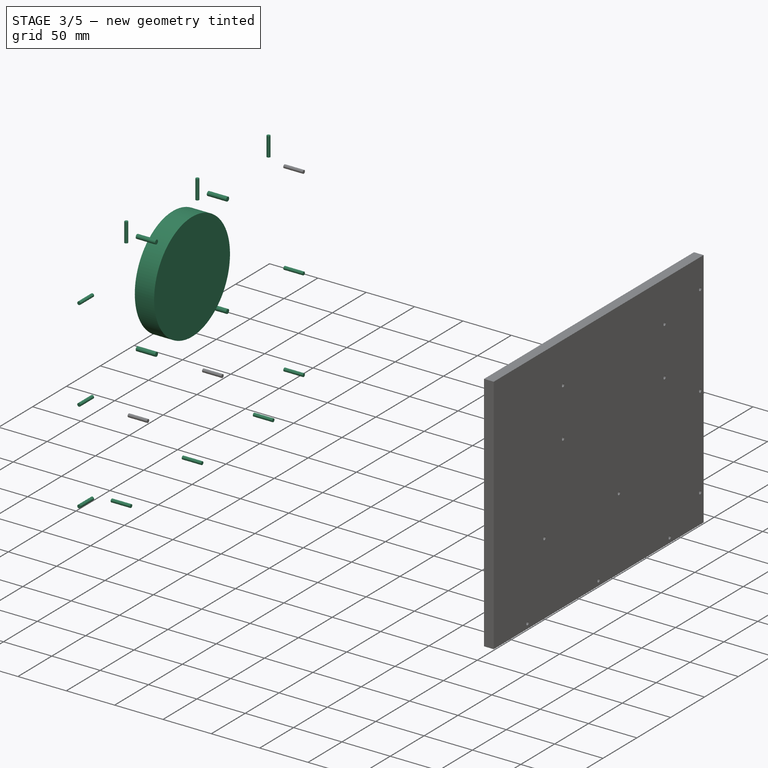
[diagram: stage 3 of 5 — iso view after this stage's code; geometry added in this stage tinted green]
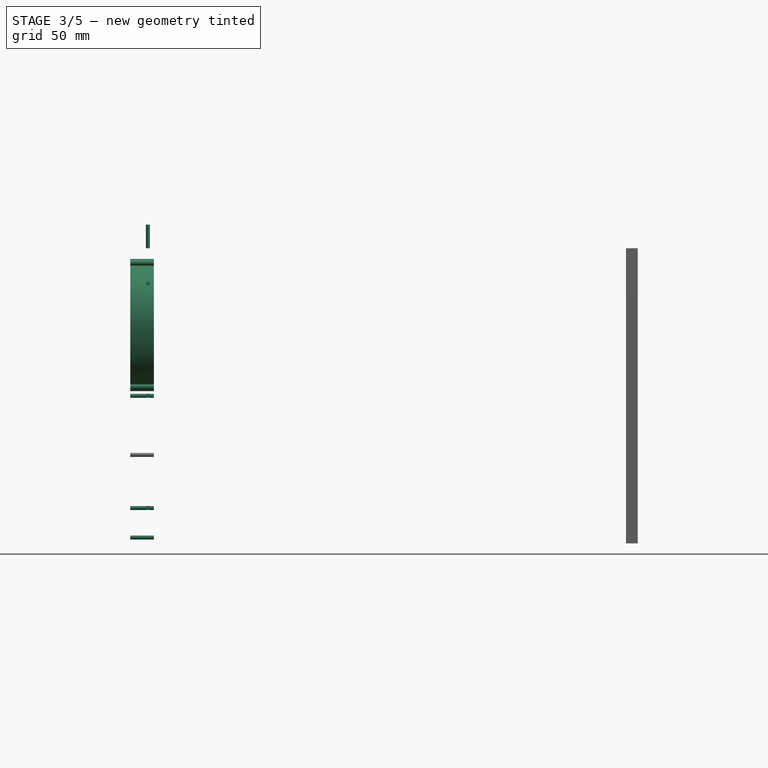
[diagram: stage 3 of 5 — front view after this stage's code; geometry added in this stage tinted green]
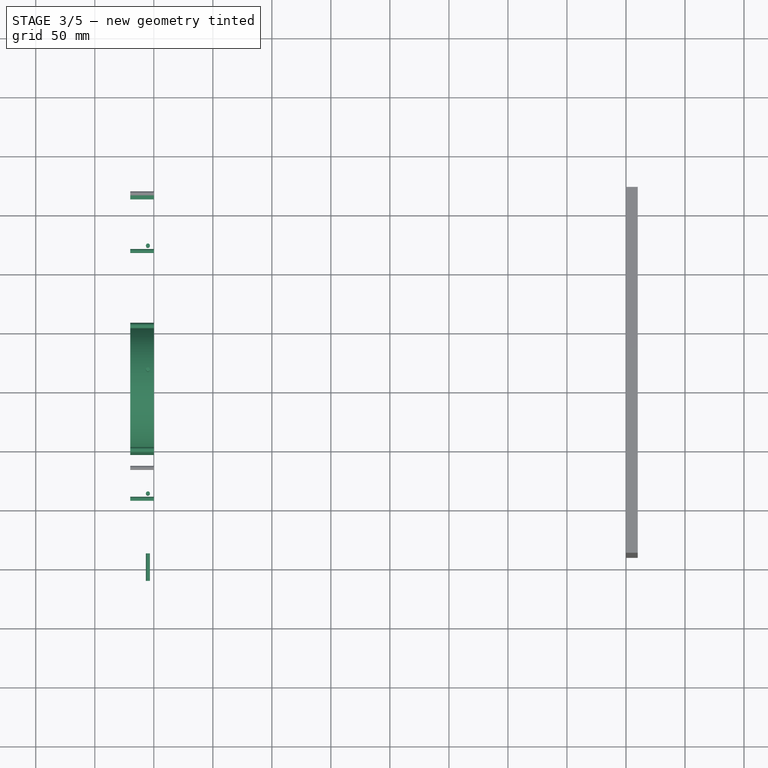
[diagram: stage 3 of 5 — top view after this stage's code; geometry added in this stage tinted green]
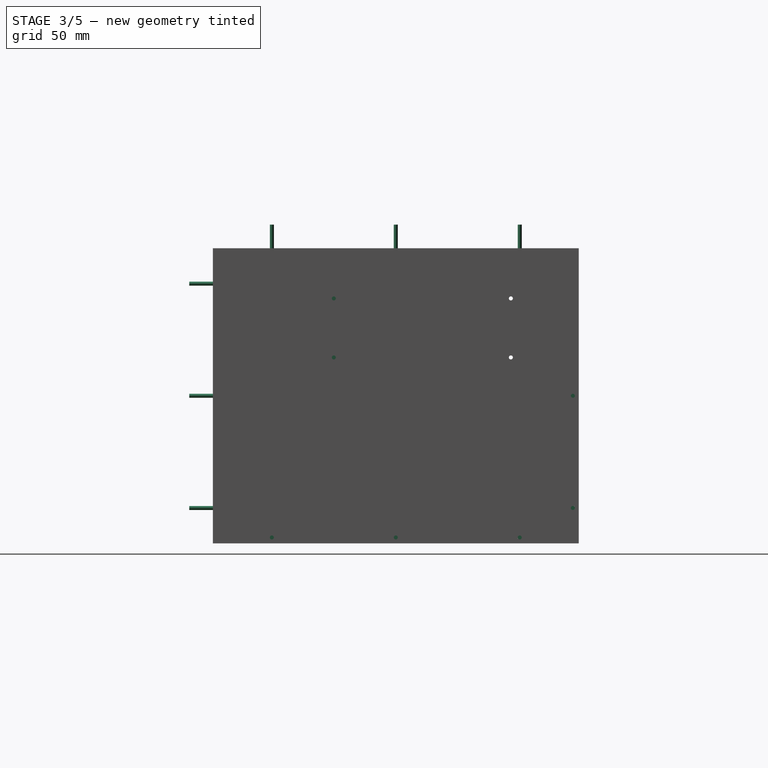
[diagram: stage 3 of 5 — right view after this stage's code; geometry added in this stage tinted green]
FEATURE [Sketcher::SketchObject] Sketch018
  Placement = pos=(-200,0,175) rot=(0.57735,0.57735,0.57735;2.0944rad)
  sketch-geometry (5):
    g0: Circle CenterX=-52.5 CenterY=52.5 CenterZ=0 NormalX=0 NormalY=0 NormalZ=1 Radius=2.2
    g1: Circle CenterX=52.5 CenterY=52.5 CenterZ=0 NormalX=0 NormalY=0 NormalZ=1 Radius=2.2
    g2: Circle CenterX=-52.5 CenterY=-52.5 CenterZ=0 NormalX=0 NormalY=0 NormalZ=1 Radius=2.2
    g3: Circle CenterX=52.5 CenterY=-52.5 CenterZ=0 NormalX=0 NormalY=0 NormalZ=1 Radius=2.2
    g4: Circle CenterX=0 CenterY=0 CenterZ=0 NormalX=0 NormalY=0 NormalZ=1 Radius=56
  constraints (11):
    c: Symmetric(g2,g3,g-2)
    c: Symmetric(g0,g1,g-2)
    c: Symmetric(g0,g2,g-1)
    c: DistanceX(g2,g3) = 105
    c: DistanceY(g2,g0) = 105
    c: Radius(g2) = 2.2
    c: Radius(g3) = 2.2
    c: Radius(g0) = 2.2
    c: Radius(g1) = 2.2
    c: Coincident(g4,g-1)
    c: Radius(g4) = 56
FEATURE [PartDesign::Pad] Pad016  label="风扇挖空块"
  Length = 20
  Length2 = 100
  Placement = pos=(-200,0,175) rot=(0.57735,0.57735,0.57735;2.0944rad)
  Reversed = true
  Sketch = -> Sketch018
  Type = 0
FEATURE [App::DocumentObjectGroup] ___001  label="备份"
  Group = -> [Pad015]
FEATURE [Part::Cylinder] Cylinder022  label="下1"
  Angle = 360
  Height = 20
  Placement = pos=(-220,-90,-5) rot=(0,1,0;1.5708rad)
  Radius = 1.7
FEATURE [Part::Cylinder] Cylinder023  label="下002"
  Angle = 360
  Height = 20
  Placement = pos=(-220,15,-5) rot=(0,1,0;1.5708rad)
  Radius = 1.7
FEATURE [Part::Cylinder] Cylinder024  label="下003"
  Angle = 360
  Height = 20
  Placement = pos=(-220,120,-5) rot=(0,1,0;1.5708rad)
  Radius = 1.7
FEATURE [Part::Cylinder] Cylinder025  label="后1"
  Angle = 360
  Height = 20
  Placement = pos=(-220,165,20) rot=(0,1,0;1.5708rad)
  Radius = 1.7
FEATURE [Part::Cylinder] Cylinder026  label="后2"
  Angle = 360
  Height = 20
  Placement = pos=(-220,165,115) rot=(0,1,0;1.5708rad)
  Radius = 1.7
FEATURE [Part::Cylinder] Cylinder028  label="前1"
  Angle = 360
  Height = 20
  Placement = pos=(-205,-140,20) rot=(1,0,0;1.5708rad)
  Radius = 1.7
FEATURE [Part::Cylinder] Cylinder029  label="上1"
  Angle = 360
  Height = 20
  Placement = pos=(-205,-90,240) rot=(0,0,1;0rad)
  Radius = 1.7
FEATURE [Part::Cylinder] Cylinder031  label="前003"
  Angle = 360
  Height = 20
  Placement = pos=(-205,-140,210) rot=(1,0,0;1.5708rad)
  Radius = 1.7
FEATURE [Part::Cylinder] Cylinder030  label="前002"
  Angle = 360
  Height = 20
  Placement = pos=(-205,-140,115) rot=(1,0,0;1.5708rad)
  Radius = 1.7
FEATURE [Part::Cylinder] Cylinder032  label="上002"
  Angle = 360
  Height = 20
  Placement = pos=(-205,15,240) rot=(0,0,1;0rad)
  Radius = 1.7
FEATURE [Part::Cylinder] Cylinder033  label="上003"
  Angle = 360
  Height = 20
  Placement = pos=(-205,120,240) rot=(0,0,1;0rad)
  Radius = 1.7
FEATURE [Part::MultiFuse] Fusion006
  Shapes = -> [Cylinder029,Cylinder033,Cylinder031,Cylinder028,Cylinder032,Cylinder030]
FEATURE [Part::MultiFuse] Fusion007
  Shapes = -> [Cylinder022,Cylinder024,Cylinder025,Cylinder026,Cylinder027,Cylinder023]
FEATURE [Part::MultiFuse] Fusion009
  Shapes = -> [Fusion008,Fusion006,Fusion007]
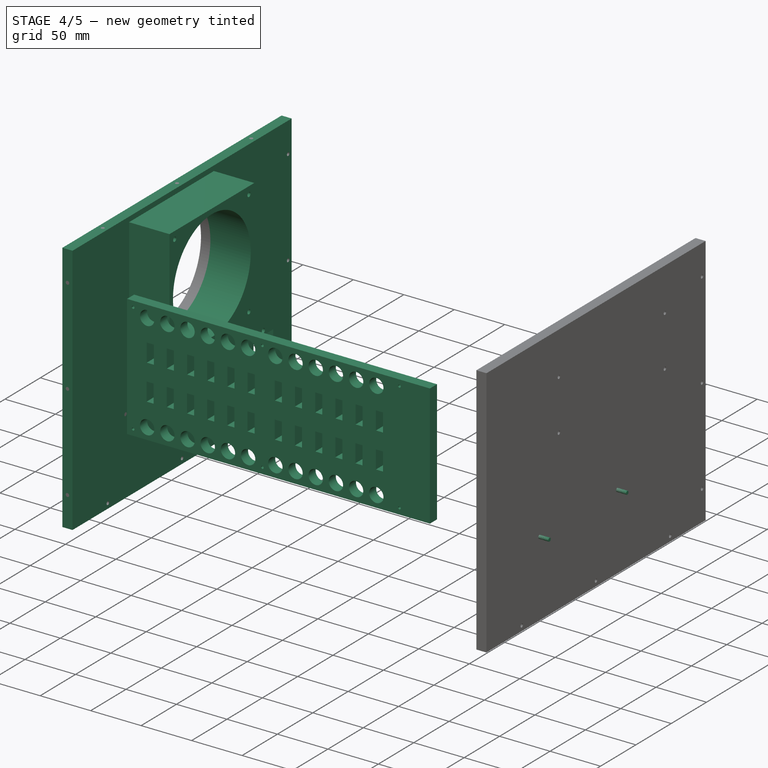
[diagram: stage 4 of 5 — iso view after this stage's code; geometry added in this stage tinted green]
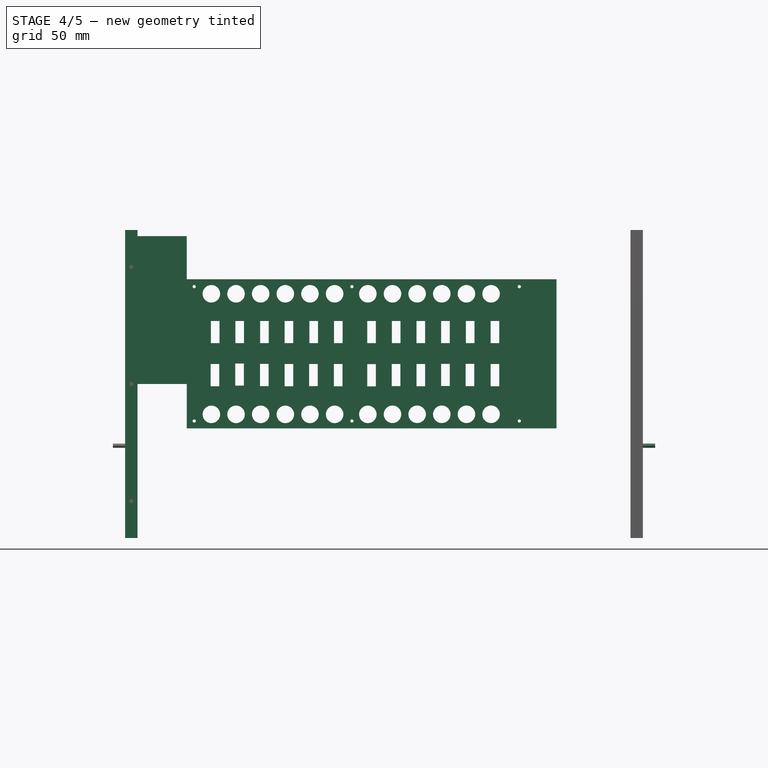
[diagram: stage 4 of 5 — front view after this stage's code; geometry added in this stage tinted green]
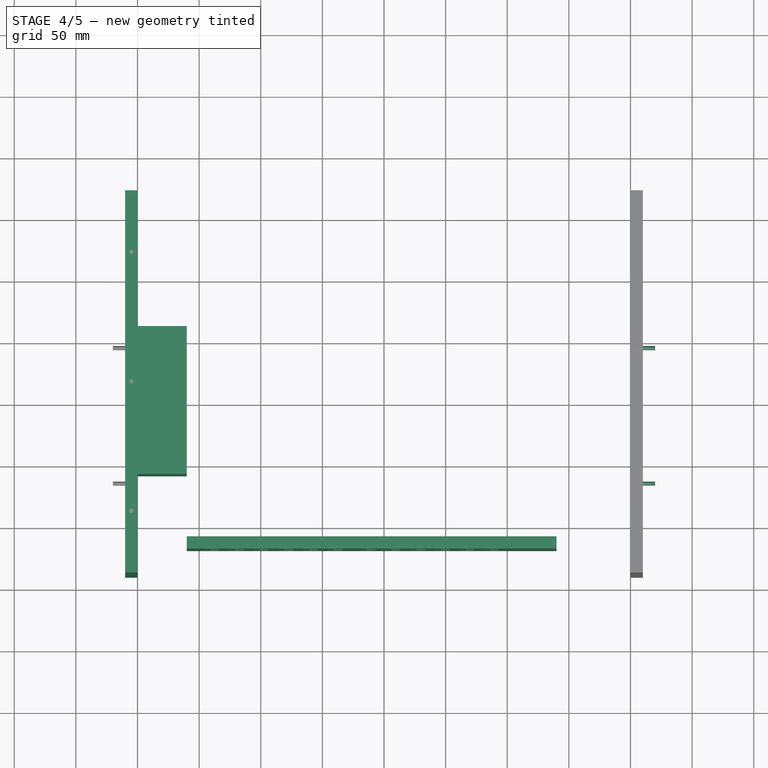
[diagram: stage 4 of 5 — top view after this stage's code; geometry added in this stage tinted green]
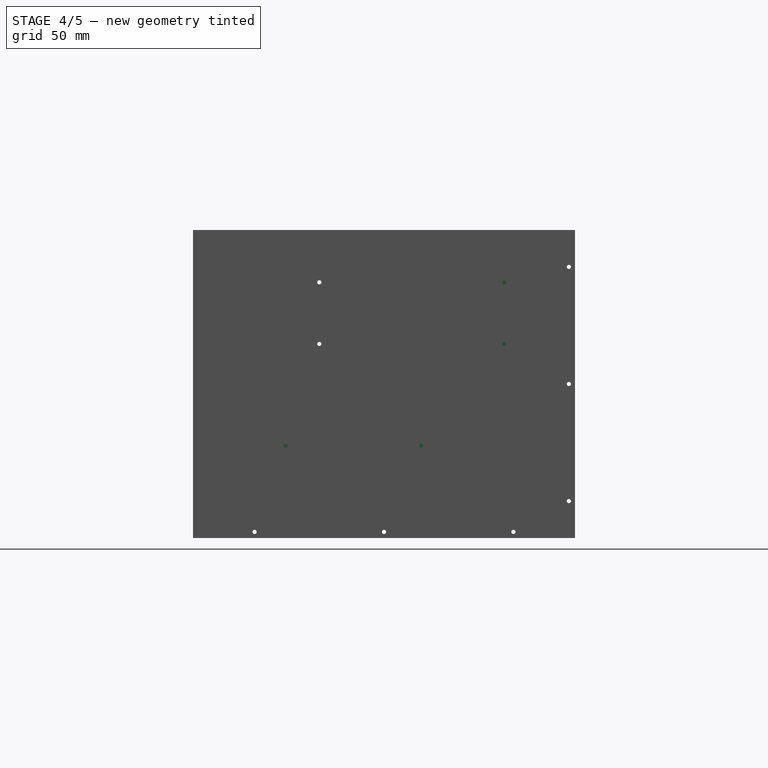
[diagram: stage 4 of 5 — right view after this stage's code; geometry added in this stage tinted green]
FEATURE [Sketcher::SketchObject] Sketch006  label="左侧面板"
  Placement = pos=(-210,0,0) rot=(0.57735,0.57735,0.57735;2.0944rad)
  sketch-geometry (4):
    g0: LineSegment StartX=-140 StartY=240 StartZ=0 EndX=170 EndY=240 EndZ=0
    g1: LineSegment StartX=170 StartY=240 StartZ=0 EndX=170 EndY=-10 EndZ=0
    g2: LineSegment StartX=170 StartY=-10 StartZ=0 EndX=-140 EndY=-10 EndZ=0
    g3: LineSegment StartX=-140 StartY=-10 StartZ=0 EndX=-140 EndY=240 EndZ=0
  constraints (12):
    c: Coincident(g0,g1)
    c: Coincident(g1,g2)
    c: Coincident(g2,g3)
    c: Coincident(g3,g0)
    c: Horizontal(g0)
    c: Horizontal(g2)
    c: Vertical(g1)
    c: Vertical(g3)
    c: DistanceY(g-1,g1) = -10
    c: DistanceX(g-1,g0) = 170
    c: DistanceX(g0,g-1) = 140
    c: DistanceY(g1,g1) = 250
FEATURE [PartDesign::Pad] Pad006  label="左侧"
  Length = 10
  Length2 = 100
  Placement = pos=(-210,0,0) rot=(0.57735,0.57735,0.57735;2.0944rad)
  Sketch = -> Sketch006
  Type = 0
FEATURE [Sketcher::SketchObject] Sketch011
  Placement = pos=(-200,0,175) rot=(0.57735,0.57735,0.57735;2.0944rad)
  sketch-geometry (9):
    g0: LineSegment StartX=-60 StartY=60 StartZ=0 EndX=60 EndY=60 EndZ=0
    g1: LineSegment StartX=60 StartY=60 StartZ=0 EndX=60 EndY=-60 EndZ=0
    g2: LineSegment StartX=60 StartY=-60 StartZ=0 EndX=-60 EndY=-60 EndZ=0
    g3: LineSegment StartX=-60 StartY=-60 StartZ=0 EndX=-60 EndY=60 EndZ=0
    g4: Circle CenterX=-52.5 CenterY=52.5 CenterZ=0 NormalX=0 NormalY=0 NormalZ=1 Radius=2.2
    g5: Circle CenterX=52.5 CenterY=52.5 CenterZ=0 NormalX=0 NormalY=0 NormalZ=1 Radius=2.2
    g6: Circle CenterX=-52.5 CenterY=-52.5 CenterZ=0 NormalX=0 NormalY=0 NormalZ=1 Radius=2.2
    g7: Circle CenterX=52.5 CenterY=-52.5 CenterZ=0 NormalX=0 NormalY=0 NormalZ=1 Radius=2.2
    g8: Circle CenterX=0 CenterY=0 CenterZ=0 NormalX=0 NormalY=0 NormalZ=1 Radius=55
  constraints (22):
    c: Coincident(g0,g1)
    c: Coincident(g1,g2)
    c: Coincident(g2,g3)
    c: Coincident(g3,g0)
    c: Horizontal(g2)
    c: Vertical(g1)
    c: Vertical(g3)
    c: Symmetric(g0,g0,g-2)
    c: Symmetric(g0,g1,g-1)
    c: DistanceY(g1,g1) = 120
    c: DistanceX(g0,g0) = 120
    c: Symmetric(g6,g7,g-2)
    c: Symmetric(g4,g5,g-2)
    c: Symmetric(g4,g6,g-1)
    c: DistanceX(g6,g7) = 105
    c: DistanceY(g6,g4) = 105
    c: Radius(g6) = 2.2
    c: Radius(g7) = 2.2
    c: Radius(g4) = 2.2
    c: Radius(g5) = 2.2
    c: Coincident(g8,g-1)
    c: Radius(g8) = 55
FEATURE [PartDesign::Pad] Pad011  label="风扇"
  Length = 40
  Length2 = 100
  Placement = pos=(-200,0,175) rot=(0.57735,0.57735,0.57735;2.0944rad)
  Sketch = -> Sketch011
  Type = 0
FEATURE [Sketcher::SketchObject] Sketch012
  Placement = pos=(-213,130,40) rot=(0.57735,0.57735,0.57735;2.0944rad)
  sketch-geometry (6):
    g0: Circle CenterX=0 CenterY=25.3 CenterZ=0 NormalX=0 NormalY=0 NormalZ=1 Radius=2.2
    g1: Circle CenterX=0 CenterY=-25.3 CenterZ=0 NormalX=0 NormalY=0 NormalZ=1 Radius=2.2
    g2: LineSegment StartX=-13.9 StartY=21.25 StartZ=0 EndX=13.9 EndY=21.25 EndZ=0
    g3: LineSegment StartX=13.9 StartY=21.25 StartZ=0 EndX=13.9 EndY=-21.25 EndZ=0
    g4: LineSegment StartX=13.9 StartY=-21.25 StartZ=0 EndX=-13.9 EndY=-21.25 EndZ=0
    g5: LineSegment StartX=-13.9 StartY=-21.25 StartZ=0 EndX=-13.9 EndY=21.25 EndZ=0
  constraints (16):
    c: Symmetric(g0,g1,g-1)
    c: Radius(g0) = 2.2
    c: Equal(g0,g1)
    c: Coincident(g2,g3)
    c: Coincident(g3,g4)
    c: Coincident(g4,g5)
    c: Coincident(g5,g2)
    c: Horizontal(g2)
    c: Horizontal(g4)
    c: Vertical(g3)
    c: Vertical(g5)
    c: Symmetric(g2,g3,g-1)
    c: DistanceY(g3,g3) = 42.5
    c: DistanceY(g1,g0) = 50.6
    c: DistanceX(g2,g2) = 27.8
    c: Symmetric(g2,g2,g-2)
FEATURE [PartDesign::Pad] Pad012  label="品形插座"
  Length = 30
  Length2 = 100
  Placement = pos=(-213,130,40) rot=(0.57735,0.57735,0.57735;2.0944rad)
  Sketch = -> Sketch012
  Type = 0
FEATURE [Sketcher::SketchObject] Sketch015
  Placement = pos=(-160,-110,200) rot=(0.57735,0.57735,-0.57735;2.0944rad)
  sketch-geometry (134):
    g0: LineSegment StartX=0 StartY=300 StartZ=0 EndX=121 EndY=300 EndZ=0
    g1: LineSegment StartX=121 StartY=300 StartZ=0 EndX=121 EndY=0 EndZ=0
    g2: LineSegment StartX=121 StartY=0 StartZ=0 EndX=0 EndY=0 EndZ=0
    g3: LineSegment StartX=0 StartY=0 StartZ=0 EndX=0 EndY=300 EndZ=0
    g4: Circle CenterX=11.81 CenterY=19.93 CenterZ=0 NormalX=0 NormalY=0 NormalZ=1 Radius=7.1
    g5: Circle CenterX=11.81 CenterY=39.93 CenterZ=0 NormalX=0 NormalY=0 NormalZ=1 Radius=7.1
    g6: Circle CenterX=11.81 CenterY=59.93 CenterZ=0 NormalX=0 NormalY=0 NormalZ=1 Radius=7.1
    g7: Circle CenterX=11.81 CenterY=79.93 CenterZ=0 NormalX=0 NormalY=0 NormalZ=1 Radius=7.1
    g8: Circle CenterX=11.81 CenterY=99.93 CenterZ=0 NormalX=0 NormalY=0 NormalZ=1 Radius=7.1
    g9: Circle CenterX=11.81 CenterY=119.93 CenterZ=0 NormalX=0 NormalY=0 NormalZ=1 Radius=7.1
    g10: Circle CenterX=11.81 CenterY=146.89 CenterZ=0 NormalX=0 NormalY=0 NormalZ=1 Radius=7.1
    g11: Circle CenterX=11.81 CenterY=166.89 CenterZ=0 NormalX=0 NormalY=0 NormalZ=1 Radius=7.1
    g12: Circle CenterX=11.81 CenterY=186.89 CenterZ=0 NormalX=0 NormalY=0 NormalZ=1 Radius=7.1
    g13: Circle CenterX=11.81 CenterY=246.89 CenterZ=0 NormalX=0 NormalY=0 NormalZ=1 Radius=7.1
    g14: Circle CenterX=109.58 CenterY=246.89 CenterZ=0 NormalX=0 NormalY=0 NormalZ=1 Radius=7.1
    g15: Circle CenterX=11.81 CenterY=226.89 CenterZ=0 NormalX=0 NormalY=0 NormalZ=1 Radius=7.1
    g16: Circle CenterX=11.81 CenterY=206.89 CenterZ=0 NormalX=0 NormalY=0 NormalZ=1 Radius=7.1
    g17: Circle CenterX=109.58 CenterY=186.89 CenterZ=0 NormalX=0 NormalY=0 NormalZ=1 Radius=7.1
    g18: Circle CenterX=109.58 CenterY=226.89 CenterZ=0 NormalX=0 NormalY=0 NormalZ=1 Radius=7.1
    g19: Circle CenterX=109.58 CenterY=206.89 CenterZ=0 NormalX=0 NormalY=0 NormalZ=1 Radius=7.1
    g20: Circle CenterX=109.58 CenterY=166.89 CenterZ=0 NormalX=0 NormalY=0 NormalZ=1 Radius=7.1
    g21: Circle CenterX=109.63 CenterY=146.89 CenterZ=0 NormalX=0 NormalY=0 NormalZ=1 Radius=7.1
    g22: Circle CenterX=109.63 CenterY=119.95 CenterZ=0 NormalX=0 NormalY=0 NormalZ=1 Radius=7.1
    g23: Circle CenterX=109.63 CenterY=99.95 CenterZ=0 NormalX=0 NormalY=0 NormalZ=1 Radius=7.1
    g24: Circle CenterX=109.63 CenterY=79.95 CenterZ=0 NormalX=0 NormalY=0 NormalZ=1 Radius=7.1
    g25: Circle CenterX=109.63 CenterY=59.95 CenterZ=0 NormalX=0 NormalY=0 NormalZ=1 Radius=7.1
    g26: Circle CenterX=109.63 CenterY=39.95 CenterZ=0 NormalX=0 NormalY=0 NormalZ=1 Radius=7.1
    g27: Circle CenterX=109.63 CenterY=19.95 CenterZ=0 NormalX=0 NormalY=0 NormalZ=1 Radius=7.1
    g28: Circle CenterX=5.9944 CenterY=5.9944 CenterZ=0 NormalX=0 NormalY=0 NormalZ=1 Radius=1.3
    g29: Circle CenterX=5.9944 CenterY=134 CenterZ=0 NormalX=0 NormalY=0 NormalZ=1 Radius=1.3
    g30: Circle CenterX=5.9944 CenterY=269.79 CenterZ=0 NormalX=0 NormalY=0 NormalZ=1 Radius=1.3
    g31: Circle CenterX=115 CenterY=269.79 CenterZ=0 NormalX=0 NormalY=0 NormalZ=1 Radius=1.3
    g32: Circle CenterX=115 CenterY=5.9944 CenterZ=0 NormalX=0 NormalY=0 NormalZ=1 Radius=1.3
    g33: Circle CenterX=115 CenterY=134 CenterZ=0 NormalX=0 NormalY=0 NormalZ=1 Radius=1.3
    g34: LineSegment StartX=33.87 StartY=26.57 StartZ=0 EndX=51.87 EndY=26.57 EndZ=0
    g35: LineSegment StartX=51.87 StartY=26.57 StartZ=0 EndX=51.87 EndY=19.57 EndZ=0
    g36: LineSegment StartX=51.87 StartY=19.57 StartZ=0 EndX=33.87 EndY=19.57 EndZ=0
    g37: LineSegment StartX=33.87 StartY=19.57 StartZ=0 EndX=33.87 EndY=26.57 EndZ=0
    g38: LineSegment StartX=33.87 StartY=66.47 StartZ=0 EndX=51.87 EndY=66.47 EndZ=0
    g39: LineSegment StartX=51.87 StartY=66.47 StartZ=0 EndX=51.87 EndY=59.47 EndZ=0
    g40: LineSegment StartX=51.87 StartY=59.47 StartZ=0 EndX=33.87 EndY=59.47 EndZ=0
    g41: LineSegment StartX=33.87 StartY=59.47 StartZ=0 EndX=33.87 EndY=66.47 EndZ=0
    g42: LineSegment StartX=33.87 StartY=86.38 StartZ=0 EndX=51.87 EndY=86.38 EndZ=0
    g43: LineSegment StartX=51.87 StartY=86.38 StartZ=0 EndX=51.87 EndY=79.38 EndZ=0
    g44: LineSegment StartX=51.87 StartY=79.38 StartZ=0 EndX=33.87 EndY=79.38 EndZ=0
    g45: LineSegment StartX=33.87 StartY=79.38 StartZ=0 EndX=33.87 EndY=86.38 EndZ=0
    g46: LineSegment StartX=33.87 StartY=46.4 StartZ=0 EndX=51.87 EndY=46.4 EndZ=0
    g47: LineSegment StartX=51.87 StartY=46.4 StartZ=0 EndX=51.87 EndY=39.4 EndZ=0
    g48: LineSegment StartX=51.87 StartY=39.4 StartZ=0 EndX=33.87 EndY=39.4 EndZ=0
    g49: LineSegment StartX=33.87 StartY=39.4 StartZ=0 EndX=33.87 EndY=46.4 EndZ=0
    g50: LineSegment StartX=33.87 StartY=153.36 StartZ=0 EndX=51.87 EndY=153.36 EndZ=0
    g51: LineSegment StartX=51.87 StartY=153.36 StartZ=0 EndX=51.87 EndY=146.36 EndZ=0
    g52: LineSegment StartX=51.87 StartY=146.36 StartZ=0 EndX=33.87 EndY=146.36 EndZ=0
    g53: LineSegment StartX=33.87 StartY=146.36 StartZ=0 EndX=33.87 EndY=153.36 EndZ=0
    g54: LineSegment StartX=33.87 StartY=126.46 StartZ=0 EndX=51.87 EndY=126.46 EndZ=0
    g55: LineSegment StartX=51.87 StartY=126.46 StartZ=0 EndX=51.87 EndY=119.46 EndZ=0
    g56: LineSegment StartX=51.87 StartY=119.46 StartZ=0 EndX=33.87 EndY=119.46 EndZ=0
    g57: LineSegment StartX=33.87 StartY=119.46 StartZ=0 EndX=33.87 EndY=126.46 EndZ=0
    g58: LineSegment StartX=33.87 StartY=106.43 StartZ=0 EndX=51.87 EndY=106.43 EndZ=0
    g59: LineSegment StartX=51.87 StartY=106.43 StartZ=0 EndX=51.87 EndY=99.43 EndZ=0
    g60: LineSegment StartX=51.87 StartY=99.43 StartZ=0 EndX=33.87 EndY=99.43 EndZ=0
    g61: LineSegment StartX=33.87 StartY=99.43 StartZ=0 EndX=33.87 EndY=106.43 EndZ=0
    g62: LineSegment StartX=33.87 StartY=173.36 StartZ=0 EndX=51.87 EndY=173.36 EndZ=0
    g63: LineSegment StartX=51.87 StartY=173.36 StartZ=0 EndX=51.87 EndY=166.36 EndZ=0
    g64: LineSegment StartX=51.87 StartY=166.36 StartZ=0 EndX=33.87 EndY=166.36 EndZ=0
    g65: LineSegment StartX=33.87 StartY=166.36 StartZ=0 EndX=33.87 EndY=173.36 EndZ=0
    g66: LineSegment StartX=51.87 StartY=213.34 StartZ=0 EndX=33.87 EndY=213.34 EndZ=0
    g67: LineSegment StartX=33.87 StartY=213.34 StartZ=0 EndX=33.87 EndY=206.34 EndZ=0
    g68: LineSegment StartX=33.87 StartY=206.34 StartZ=0 EndX=51.87 EndY=206.34 EndZ=0
    g69: LineSegment StartX=51.87 StartY=206.34 StartZ=0 EndX=51.87 EndY=213.34 EndZ=0
    g70: LineSegment StartX=33.87 StartY=193.39 StartZ=0 EndX=51.87 EndY=193.39 EndZ=0
    g71: LineSegment StartX=51.87 StartY=193.39 StartZ=0 EndX=51.87 EndY=186.39 EndZ=0
    g72: LineSegment StartX=51.87 StartY=186.39 StartZ=0 EndX=33.87 EndY=186.39 EndZ=0
    g73: LineSegment StartX=33.87 StartY=186.39 StartZ=0 EndX=33.87 EndY=193.39 EndZ=0
    g74: LineSegment StartX=33.87 StartY=253.52 StartZ=0 EndX=51.87 EndY=253.52 EndZ=0
    g75: LineSegment StartX=51.87 StartY=253.52 StartZ=0 EndX=51.87 EndY=246.52 EndZ=0
    g76: LineSegment StartX=51.87 StartY=246.52 StartZ=0 EndX=33.87 EndY=246.52 EndZ=0
    g77: LineSegment StartX=33.87 StartY=246.52 StartZ=0 EndX=33.87 EndY=253.52 EndZ=0
    g78: LineSegment StartX=33.8701 StartY=233.4 StartZ=0 EndX=51.8701 EndY=233.4 EndZ=0
    g79: LineSegment StartX=51.8701 StartY=233.4 StartZ=0 EndX=51.8701 EndY=226.4 EndZ=0
    g80: LineSegment StartX=51.8701 StartY=226.4 StartZ=0 EndX=33.8701 EndY=226.4 EndZ=0
    g81: LineSegment StartX=33.8701 StartY=226.4 StartZ=0 EndX=33.8701 EndY=233.4 EndZ=0
    g82: LineSegment StartX=68.82 StartY=26.37 StartZ=0 EndX=86.82 EndY=26.37 EndZ=0
    g83: LineSegment StartX=86.82 StartY=26.37 StartZ=0 EndX=86.82 EndY=19.37 EndZ=0
    g84: LineSegment StartX=86.82 StartY=19.37 StartZ=0 EndX=68.82 EndY=19.37 EndZ=0
    g85: LineSegment StartX=68.82 StartY=19.37 StartZ=0 EndX=68.82 EndY=26.37 EndZ=0
    g86: LineSegment StartX=68.3352 StartY=46.33 StartZ=0 EndX=86.3352 EndY=46.33 EndZ=0
    g87: LineSegment StartX=86.3352 StartY=46.33 StartZ=0 EndX=86.3352 EndY=39.33 EndZ=0
    g88: LineSegment StartX=86.3352 StartY=39.33 StartZ=0 EndX=68.3352 EndY=39.33 EndZ=0
    g89: LineSegment StartX=68.3352 StartY=39.33 StartZ=0 EndX=68.3352 EndY=46.33 EndZ=0
    g90: LineSegment StartX=68.6925 StartY=66.4 StartZ=0 EndX=86.6925 EndY=66.4 EndZ=0
    g91: LineSegment StartX=86.6925 StartY=66.4 StartZ=0 EndX=86.6925 EndY=59.4 EndZ=0
    g92: LineSegment StartX=86.6925 StartY=59.4 StartZ=0 EndX=68.6925 EndY=59.4 EndZ=0
    g93: LineSegment StartX=68.6925 StartY=59.4 StartZ=0 EndX=68.6925 EndY=66.4 EndZ=0
    g94: LineSegment StartX=68.7894 StartY=86.34 StartZ=0 EndX=86.7894 EndY=86.34 EndZ=0
    g95: LineSegment StartX=86.7894 StartY=86.34 StartZ=0 EndX=86.7894 EndY=79.34 EndZ=0
    g96: LineSegment StartX=86.7894 StartY=79.34 StartZ=0 EndX=68.7894 EndY=79.34 EndZ=0
    g97: LineSegment StartX=68.7894 StartY=79.34 StartZ=0 EndX=68.7894 EndY=86.34 EndZ=0
    g98: LineSegment StartX=68.733 StartY=106.27 StartZ=0 EndX=86.733 EndY=106.27 EndZ=0
    g99: LineSegment StartX=86.733 StartY=106.27 StartZ=0 EndX=86.733 EndY=99.27 EndZ=0
    g100: LineSegment StartX=86.733 StartY=99.27 StartZ=0 EndX=68.733 EndY=99.27 EndZ=0
    g101: LineSegment StartX=68.733 StartY=99.27 StartZ=0 EndX=68.733 EndY=106.27 EndZ=0
    g102: LineSegment StartX=68.82 StartY=126.36 StartZ=0 EndX=86.82 EndY=126.36 EndZ=0
    g103: LineSegment StartX=86.82 StartY=126.36 StartZ=0 EndX=86.82 EndY=119.36 EndZ=0
    g104: LineSegment StartX=86.82 StartY=119.36 StartZ=0 EndX=68.82 EndY=119.36 EndZ=0
    g105: LineSegment StartX=68.82 StartY=119.36 StartZ=0 EndX=68.82 EndY=126.36 EndZ=0
    g106: LineSegment StartX=68.8995 StartY=153.372 StartZ=0 EndX=86.8995 EndY=153.372 EndZ=0
    g107: LineSegment StartX=86.8995 StartY=153.372 StartZ=0 EndX=86.8995 EndY=146.372 EndZ=0
    g108: LineSegment StartX=86.8995 StartY=146.372 StartZ=0 EndX=68.8995 EndY=146.372 EndZ=0
    g109: LineSegment StartX=68.8995 StartY=146.372 StartZ=0 EndX=68.8995 EndY=153.372 EndZ=0
    g110: LineSegment StartX=68.7731 StartY=173.267 StartZ=0 EndX=86.7731 EndY=173.267 EndZ=0
    g111: LineSegment StartX=86.7731 StartY=173.267 StartZ=0 EndX=86.7731 EndY=166.267 EndZ=0
    g112: LineSegment StartX=86.7731 StartY=166.267 StartZ=0 EndX=68.7731 EndY=166.267 EndZ=0
    g113: LineSegment StartX=68.7731 StartY=166.267 StartZ=0 EndX=68.7731 EndY=173.267 EndZ=0
    g114: LineSegment StartX=68.781 StartY=193.39 StartZ=0 EndX=86.781 EndY=193.39 EndZ=0
    g115: LineSegment StartX=86.781 StartY=193.39 StartZ=0 EndX=86.781 EndY=186.39 EndZ=0
    g116: LineSegment StartX=86.781 StartY=186.39 StartZ=0 EndX=68.781 EndY=186.39 EndZ=0
    g117: LineSegment StartX=68.781 StartY=186.39 StartZ=0 EndX=68.781 EndY=193.39 EndZ=0
    g118: LineSegment StartX=68.6717 StartY=213.338 StartZ=0 EndX=86.6717 EndY=213.338 EndZ=0
    g119: LineSegment StartX=86.6717 StartY=213.338 StartZ=0 EndX=86.6717 EndY=206.338 EndZ=0
    g120: LineSegment StartX=86.6717 StartY=206.338 StartZ=0 EndX=68.6717 EndY=206.338 EndZ=0
    g121: LineSegment StartX=68.6717 StartY=206.338 StartZ=0 EndX=68.6717 EndY=213.338 EndZ=0
    g122: LineSegment StartX=68.6927 StartY=233.2 StartZ=0 EndX=86.6927 EndY=233.2 EndZ=0
    g123: LineSegment StartX=86.6927 StartY=233.2 StartZ=0 EndX=86.6927 EndY=226.2 EndZ=0
    g124: LineSegment StartX=86.6927 StartY=226.2 StartZ=0 EndX=68.6927 EndY=226.2 EndZ=0
    g125: LineSegment StartX=68.6927 StartY=226.2 StartZ=0 EndX=68.6927 EndY=233.2 EndZ=0
    g126: LineSegment StartX=68.82 StartY=253.52 StartZ=0 EndX=86.82 EndY=253.52 EndZ=0
    g127: LineSegment StartX=86.82 StartY=253.52 StartZ=0 EndX=86.82 EndY=246.52 EndZ=0
    g128: LineSegment StartX=86.82 StartY=246.52 StartZ=0 EndX=68.82 EndY=246.52 EndZ=0
    g129: LineSegment StartX=68.82 StartY=246.52 StartZ=0 EndX=68.82 EndY=253.52 EndZ=0
    g130: LineSegment StartX=-39.8783 StartY=360.002 StartZ=0 EndX=210.122 EndY=360.002 EndZ=0
    g131: LineSegment StartX=210.122 StartY=360.002 StartZ=0 EndX=210.122 EndY=-39.9981 EndZ=0
    g132: LineSegment StartX=210.122 StartY=-39.9981 StartZ=0 EndX=-39.8783 EndY=-39.9981 EndZ=0
    g133: LineSegment StartX=-39.8783 StartY=-39.9981 StartZ=0 EndX=-39.8783 EndY=360.002 EndZ=0
  constraints (346):
    c: Coincident(g0,g1)
    c: Coincident(g1,g2)
    c: Coincident(g2,g3)
    c: Coincident(g3,g0)
    c: Horizontal(g0)
    c: Horizontal(g2)
    c: Vertical(g1)
    c: Vertical(g3)
    c: Coincident(g2,g-1)
    c: DistanceX(g0) = 121
    c: DistanceY(g0) = 300
    c: Radius(g4) = 7.1
    c: DistanceX(g4) = 11.81
    c: DistanceY(g4) = 19.93
    c: Equal(g5,g6)
    c: DistanceY(g5) = 39.93
    c: DistanceY(g6) = 59.93
    c: Equal(g6,g7)
    c: DistanceY(g7) = 79.93
    c: Equal(g7,g8)
    c: Equal(g8,g9)
    c: Equal(g9,g10)
    c: DistanceY(g8) = 99.93
    c: DistanceY(g9) = 119.93
    c: DistanceY(g10) = 146.89
    c: Equal(g10,g11)
    c: Equal(g11,g12)
    c: DistanceY(g11) = 166.89
    c: DistanceY(g12) = 186.89
    c: Equal(g12,g16)
    c: Equal(g16,g15)
    c: Equal(g15,g14)
    c: Equal(g14,g13)
    c: DistanceY(g16) = 206.89
    c: DistanceY(g15) = 226.89
    c: DistanceY(g13) = 246.89
    c: DistanceX(g14) = 109.58
    c: DistanceY(g14) = 246.89
    c: DistanceX(g18) = 109.58
    c: DistanceY(g18) = 226.89
    c: Equal(g14,g18)
    c: Equal(g18,g19)
    c: Equal(g19,g17)
    c: Equal(g17,g20)
    c: Equal(g20,g21)
    c: Equal(g21,g22)
    c: Equal(g22,g23)
    c: Equal(g23,g24)
    c: Equal(g24,g25)
    c: Equal(g25,g26)
    c: Equal(g26,g27)
    c: DistanceX(g19) = 109.58
    c: DistanceY(g19) = 206.89
    c: DistanceX(g27) = 109.63
    c: DistanceY(g27) = 19.95
    c: DistanceY(g26) = 39.95
    c: DistanceY(g25) = 59.95
    c: DistanceY(g24) = 79.95
    c: DistanceY(g23) = 99.95
    c: DistanceY(g22) = 119.95
    c: DistanceX(g21) = 109.63
    c: DistanceY(g21) = 146.89
    c: DistanceX(g20) = 109.58
    c: DistanceY(g20) = 166.89
    c: DistanceX(g17) = 109.58
    c: DistanceY(g17) = 186.89
    c: Radius(g28) = 1.3
    c: DistanceX(g28) = 5.9944
    c: DistanceY(g28) = 5.9944
    c: Equal(g28,g29)
    c: Equal(g29,g30)
    c: Equal(g30,g32)
    c: Equal(g32,g33)
    c: Equal(g33,g31)
    c: Radius(g5) = 7.1
    c: DistanceX(g29) = 5.9944
    c: DistanceY(g29) = 134
    c: DistanceX(g30) = 5.9944
    c: DistanceY(g30) = 269.79
    c: DistanceX(g32) = 115
    c: DistanceY(g32) = 5.9944
    c: DistanceX(g33) = 115
    c: DistanceY(g33) = 134
    c: DistanceX(g31) = 115
    c: DistanceY(g31) = 269.79
    c: Coincident(g34,g35)
    c: Coincident(g35,g36)
    c: Coincident(g36,g37)
    c: Coincident(g37,g34)
    c: Horizontal(g34)
    c: Horizontal(g36)
    c: Vertical(g35)
    c: Vertical(g37)
    c: DistanceX(g34) = 51.87
    c: Coincident(g38,g39)
    c: Coincident(g39,g40)
    c: Coincident(g40,g41)
    c: Coincident(g41,g38)
    c: Horizontal(g38)
    c: Horizontal(g40)
    c: Vertical(g39)
    c: Vertical(g41)
    c: DistanceX(g36,g36) = 18
    c: DistanceY(g35,g35) = 7
    c: Equal(g36,g38)
    c: Equal(g35,g39)
    c: Coincident(g42,g43)
    c: Coincident(g43,g44)
    c: Coincident(g44,g45)
    c: Coincident(g45,g42)
    c: Horizontal(g42)
    c: Horizontal(g44)
    c: Vertical(g43)
    c: Vertical(g45)
    c: Coincident(g46,g47)
    c: Coincident(g47,g48)
    c: Coincident(g48,g49)
    c: Coincident(g49,g46)
    c: Horizontal(g46)
    c: Horizontal(g48)
    c: Vertical(g47)
    c: Vertical(g49)
    c: Coincident(g50,g51)
    c: Coincident(g51,g52)
    c: Coincident(g52,g53)
    c: Coincident(g53,g50)
    c: Horizontal(g50)
    c: Horizontal(g52)
    c: Vertical(g51)
    c: Vertical(g53)
    c: Coincident(g54,g55)
    c: Coincident(g55,g56)
    c: Coincident(g56,g57)
    c: Coincident(g57,g54)
    c: Horizontal(g54)
    c: Horizontal(g56)
    c: Vertical(g55)
    c: Vertical(g57)
    c: Coincident(g58,g59)
    c: Coincident(g59,g60)
    c: Coincident(g60,g61)
    c: Coincident(g61,g58)
    c: Horizontal(g58)
    c: Horizontal(g60)
    c: Vertical(g59)
    c: Vertical(g61)
    c: Coincident(g62,g63)
    c: Coincident(g63,g64)
    c: Coincident(g64,g65)
    c: Coincident(g65,g62)
    c: Horizontal(g62)
    c: Horizontal(g64)
    c: Vertical(g63)
    c: Vertical(g65)
    c: Coincident(g66,g67)
    c: Coincident(g67,g68)
    c: Coincident(g68,g69)
    c: Coincident(g69,g66)
    c: Horizontal(g66)
    c: Horizontal(g68)
    c: Vertical(g67)
    c: Vertical(g69)
    c: Coincident(g70,g71)
    c: Coincident(g71,g72)
    c: Coincident(g72,g73)
    c: Coincident(g73,g70)
    c: Horizontal(g70)
    c: Horizontal(g72)
    c: Vertical(g71)
    c: Vertical(g73)
    c: Coincident(g74,g75)
    c: Coincident(g75,g76)
    c: Coincident(g76,g77)
    c: Coincident(g77,g74)
    c: Horizontal(g74)
    c: Horizontal(g76)
    c: Vertical(g75)
    c: Vertical(g77)
    c: Coincident(g78,g79)
    c: Coincident(g79,g80)
    c: Coincident(g80,g81)
    c: Coincident(g81,g78)
    c: Horizontal(g78)
    c: Horizontal(g80)
    c: Vertical(g79)
    c: Vertical(g81)
    c: Equal(g38,g42)
    c: Equal(g42,g58)
    c: Equal(g58,g46)
    c: Equal(g39,g59)
    c: Equal(g59,g43)
    c: Equal(g43,g47)
    c: Equal(g36,g64)
    c: Equal(g64,g54)
    c: Equal(g54,g50)
    c: Equal(g50,g70)
    c: Equal(g70,g66)
    c: Equal(g66,g78)
    c: Equal(g78,g74)
    c: Equal(g35,g63)
    c: Equal(g63,g55)
    c: Equal(g55,g51)
    c: Equal(g51,g71)
    c: Equal(g71,g67)
    c: Equal(g67,g79)
    c: Equal(g79,g77)
    c: DistanceY(g54) = 126.46
    c: Coincident(g82,g83)
    c: Coincident(g83,g84)
    c: Coincident(g84,g85)
    c: Coincident(g85,g82)
    c: Horizontal(g82)
    c: Horizontal(g84)
    c: Vertical(g83)
    c: Vertical(g85)
    c: Coincident(g86,g87)
    c: Coincident(g87,g88)
    c: Coincident(g88,g89)
    c: Coincident(g89,g86)
    c: Horizontal(g86)
    c: Horizontal(g88)
    c: Vertical(g87)
    c: Vertical(g89)
    c: Coincident(g90,g91)
    c: Coincident(g91,g92)
    c: Coincident(g92,g93)
    c: Coincident(g93,g90)
    c: Horizontal(g90)
    c: Horizontal(g92)
    c: Vertical(g91)
    c: Vertical(g93)
    c: Coincident(g94,g95)
    c: Coincident(g95,g96)
    c: Coincident(g96,g97)
    c: Coincident(g97,g94)
    c: Horizontal(g94)
    c: Horizontal(g96)
    c: Vertical(g95)
    c: Vertical(g97)
    c: Coincident(g98,g99)
    c: Coincident(g99,g100)
    c: Coincident(g100,g101)
    c: Coincident(g101,g98)
    c: Horizontal(g98)
    c: Horizontal(g100)
    c: Vertical(g99)
    c: Vertical(g101)
    c: Coincident(g102,g103)
    c: Coincident(g103,g104)
    c: Coincident(g104,g105)
    c: Coincident(g105,g102)
    c: Horizontal(g102)
    c: Horizontal(g104)
    c: Vertical(g103)
    c: Vertical(g105)
    c: Coincident(g106,g107)
    c: Coincident(g107,g108)
    c: Coincident(g108,g109)
    c: Coincident(g109,g106)
    c: Horizontal(g106)
    c: Horizontal(g108)
    c: Vertical(g107)
    c: Vertical(g109)
    c: Coincident(g110,g111)
    c: Coincident(g111,g112)
    c: Coincident(g112,g113)
    c: Coincident(g113,g110)
    c: Horizontal(g110)
    c: Horizontal(g112)
    c: Vertical(g111)
    c: Vertical(g113)
    c: Coincident(g114,g115)
    c: Coincident(g115,g116)
    c: Coincident(g116,g117)
    c: Coincident(g117,g114)
    c: Horizontal(g114)
    c: Vertical(g115)
    c: Vertical(g117)
    c: Coincident(g118,g119)
    c: Coincident(g119,g120)
    c: Coincident(g120,g121)
    c: Coincident(g121,g118)
    c: Horizontal(g118)
    c: Vertical(g119)
    c: Vertical(g121)
    c: Coincident(g122,g123)
    c: Coincident(g123,g124)
    c: Coincident(g124,g125)
    c: Coincident(g125,g122)
    c: Horizontal(g122)
    c: Horizontal(g124)
    c: Vertical(g123)
    c: Vertical(g125)
    c: Coincident(g126,g127)
    c: Coincident(g127,g128)
    c: Coincident(g128,g129)
    c: Coincident(g129,g126)
    c: Horizontal(g126)
    c: Horizontal(g128)
    c: Vertical(g127)
    c: Vertical(g129)
    c: Equal(g74,g126)
    c: Equal(g75,g127)
    c: Equal(g79,g125)
    c: Equal(g78,g122)
    c: Equal(g124,g118)
    c: Equal(g118,g114)
    c: Equal(g114,g110)
    c: Equal(g129,g125)
    c: Equal(g123,g119)
    c: Equal(g119,g115)
    c: Equal(g115,g111)
    c: Equal(g112,g106)
    c: Equal(g106,g104)
    c: Equal(g104,g100)
    c: Equal(g100,g96)
    c: Equal(g96,g92)
    c: Equal(g92,g88)
    c: Equal(g88,g84)
    c: Equal(g125,g121)
    c: Equal(g121,g117)
    c: Equal(g117,g113)
    c: Equal(g113,g109)
    c: Equal(g109,g105)
    c: Equal(g105,g101)
    c: Equal(g101,g97)
    c: Equal(g101,g93)
    c: Equal(g93,g89)
    c: Equal(g89,g85)
    c: DistanceX(g126) = 86.82
    c: DistanceY(g102) = 126.36
    c: DistanceY(g98) = 106.27
    c: DistanceY(g94) = 86.34
    c: DistanceY(g90) = 66.4
    c: DistanceY(g86) = 46.33
    c: DistanceY(g82) = 26.37
    c: Coincident(g130,g131)
    c: Coincident(g131,g132)
    c: Coincident(g132,g133)
    c: Coincident(g133,g130)
    c: Horizontal(g130)
    c: Horizontal(g132)
    c: Vertical(g131)
    c: Vertical(g133)
    c: DistanceX(g130,g130) = 250
    c: DistanceY(g133,g133) = 400
FEATURE [PartDesign::Pad] Pad015  label="电源板备份"
  Length = 10
  Length2 = 100
  Placement = pos=(-160,-110,200) rot=(0.57735,0.57735,-0.57735;2.0944rad)
  Sketch = -> Sketch015
  Type = 0
FEATURE [Sketcher::SketchObject] Sketch016  label="边框打孔"
  Placement = pos=(0,0,0) rot=(0.57735,0.57735,0.57735;2.0944rad)
FEATURE [Part::Cut] Cut004  label="左侧开孔"
  Base = -> Pad006
  Tool = -> Pad012
FEATURE [Part::Cylinder] Cylinder013  label="串口板右前"
  Angle = 360
  Height = 20
  Placement = pos=(200,-65,65) rot=(0,1,0;1.5708rad)
  Radius = 1.7
FEATURE [Part::Cylinder] Cylinder015  label="串口板左前"
  Angle = 360
  Height = 20
  Placement = pos=(-220,-65,65) rot=(0,1,0;1.5708rad)
  Radius = 1.7
FEATURE [Part::Cylinder] Cylinder016  label="串口板左后"
  Angle = 360
  Height = 20
  Placement = pos=(-220,45,65) rot=(0,1,0;1.5708rad)
  Radius = 1.7
FEATURE [Part::Cylinder] Cylinder017  label="串口板右后"
  Angle = 360
  Height = 20
  Placement = pos=(200,45,65) rot=(0,1,0;1.5708rad)
  Radius = 1.7
FEATURE [Part::MultiFuse] Fusion004  label="支架四个螺丝钉"
  Shapes = -> [Cylinder017,Cylinder013,Cylinder015,Cylinder016]
FEATURE [Part::Cut] Cut011  label="左侧开孔001"
  Base = -> Cut004
  Tool = -> Pad016
FEATURE [Part::Cylinder] Cylinder018  label="串口板右前001"
  Angle = 360
  Height = 20
  Placement = pos=(200,-65,65) rot=(0,1,0;1.5708rad)
  Radius = 1.7
FEATURE [Part::Cylinder] Cylinder021  label="串口板右后001"
  Angle = 360
  Height = 20
  Placement = pos=(200,45,65) rot=(0,1,0;1.5708rad)
  Radius = 1.7
FEATURE [Part::Cut] Cut012
  Base = -> Cut011
  Tool = -> Fusion009
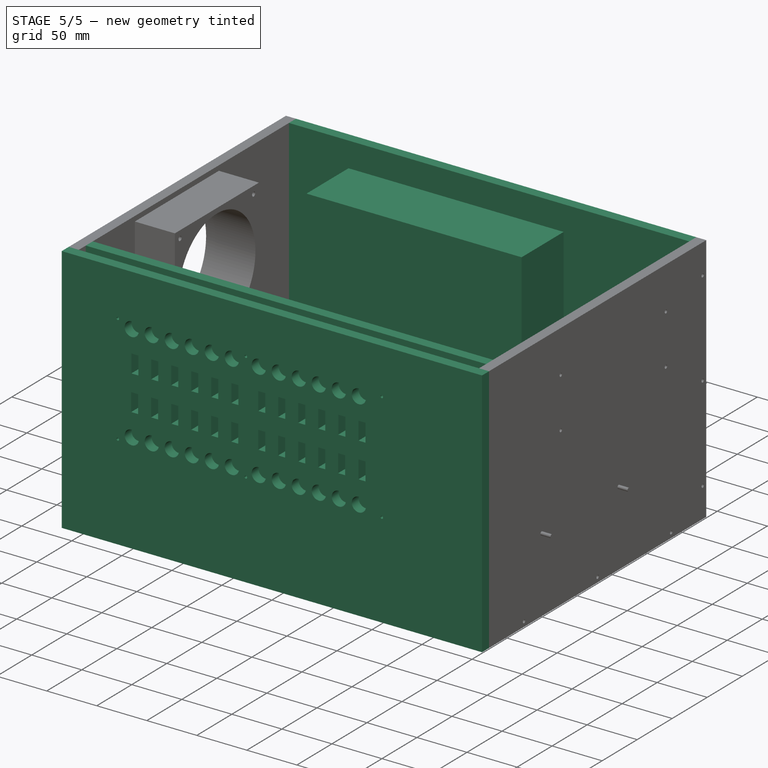
[diagram: stage 5 of 5 — iso view after this stage's code; geometry added in this stage tinted green]
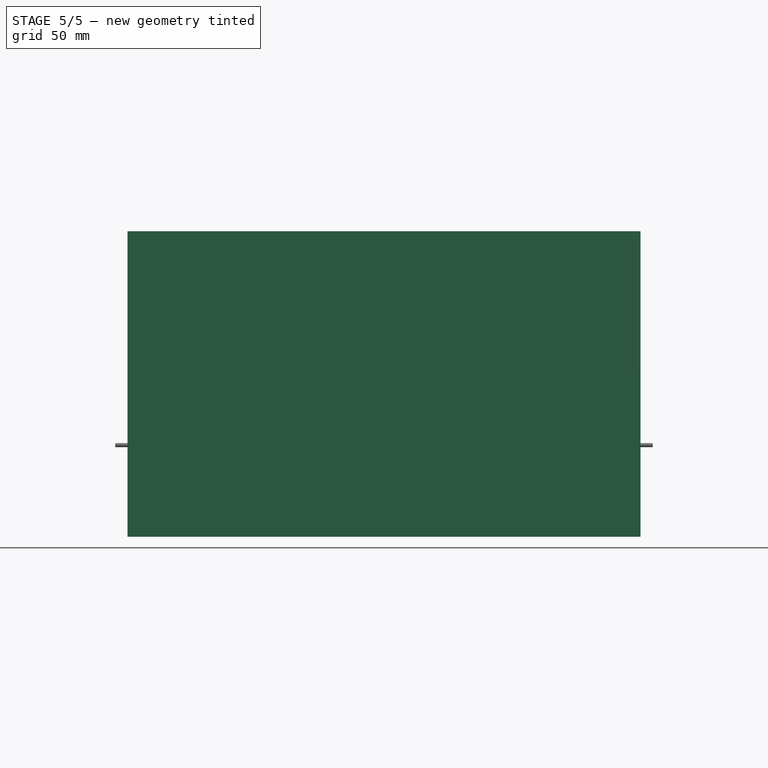
[diagram: stage 5 of 5 — front view after this stage's code; geometry added in this stage tinted green]
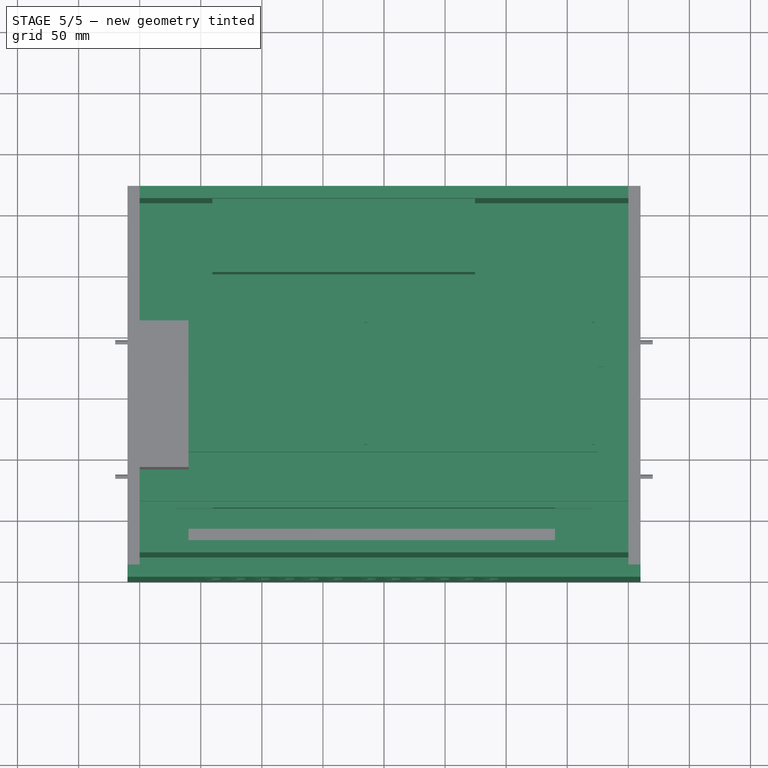
[diagram: stage 5 of 5 — top view after this stage's code; geometry added in this stage tinted green]
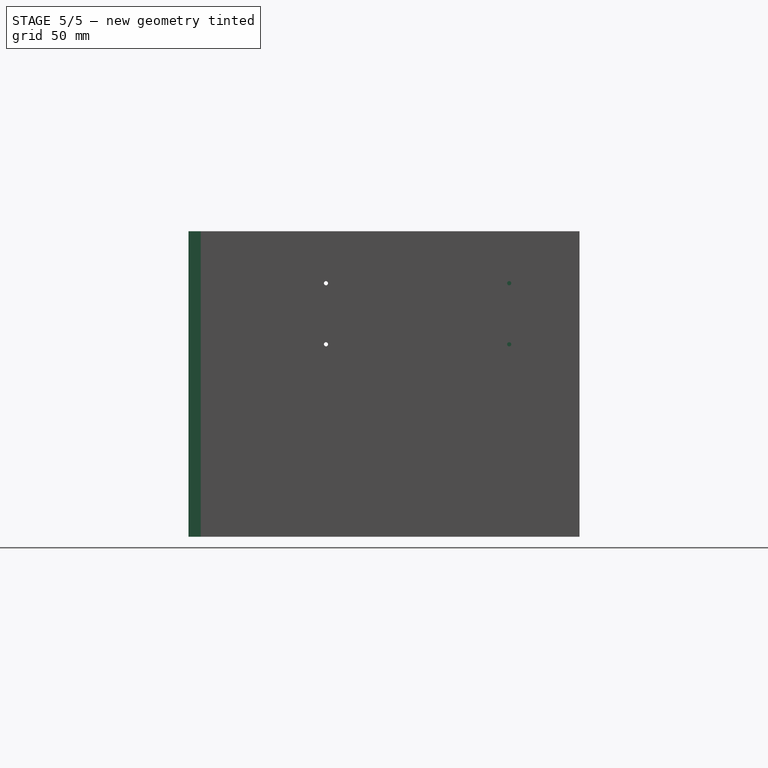
[diagram: stage 5 of 5 — right view after this stage's code; geometry added in this stage tinted green]
FEATURE [Sketcher::SketchObject] Sketch
  sketch-geometry (4):
    g0: LineSegment StartX=-140 StartY=90 StartZ=0 EndX=140 EndY=90 EndZ=0
    g1: LineSegment StartX=140 StartY=90 StartZ=0 EndX=140 EndY=-90 EndZ=0
    g2: LineSegment StartX=140 StartY=-90 StartZ=0 EndX=-140 EndY=-90 EndZ=0
    g3: LineSegment StartX=-140 StartY=-90 StartZ=0 EndX=-140 EndY=90 EndZ=0
  constraints (12):
    c: Coincident(g0,g1)
    c: Coincident(g1,g2)
    c: Coincident(g2,g3)
    c: Coincident(g3,g0)
    c: Horizontal(g0)
    c: Horizontal(g2)
    c: Vertical(g1)
    c: Vertical(g3)
    c: Distance(g1) = 180
    c: Distance(g0) = 280
    c: DistanceX(g0) = 140
    c: DistanceY(g0) = 90
FEATURE [PartDesign::Pad] Pad
  Length = 44
  Length2 = 100
  Sketch = -> Sketch
  Type = 0
FEATURE [Sketcher::SketchObject] Sketch001
  sketch-geometry (8):
    g0: LineSegment StartX=140 StartY=-36 StartZ=0 EndX=170 EndY=-36 EndZ=0
    g1: LineSegment StartX=170 StartY=-36 StartZ=0 EndX=170 EndY=-90 EndZ=0
    g2: LineSegment StartX=170 StartY=-90 StartZ=0 EndX=140 EndY=-90 EndZ=0
    g3: LineSegment StartX=140 StartY=-90 StartZ=0 EndX=140 EndY=-36 EndZ=0
    g4: LineSegment StartX=-170 StartY=-36 StartZ=0 EndX=-140 EndY=-36 EndZ=0
    g5: LineSegment StartX=-140 StartY=-36 StartZ=0 EndX=-140 EndY=-90 EndZ=0
    g6: LineSegment StartX=-140 StartY=-90 StartZ=0 EndX=-170 EndY=-90 EndZ=0
    g7: LineSegment StartX=-170 StartY=-90 StartZ=0 EndX=-170 EndY=-36 EndZ=0
  constraints (21):
    c: Coincident(g0,g1)
    c: Coincident(g1,g2)
    c: Coincident(g3,g0)
    c: Horizontal(g0)
    c: Horizontal(g2)
    c: Vertical(g1)
    c: Vertical(g3)
    c: DistanceY(g1,g1) = 54
    c: DistanceX(g0,g0) = 30
    c: Coincident(g4,g5)
    c: Coincident(g5,g6)
    c: Coincident(g6,g7)
    c: Coincident(g7,g4)
    c: Horizontal(g4)
    c: Horizontal(g6)
    c: Vertical(g5)
    c: Vertical(g7)
    c: DistanceX(g5) = -140
    c: DistanceY(g5) = -90
    c: DistanceX(g6,g6) = 30
    c: DistanceY(g7,g7) = 54
FEATURE [PartDesign::Pad] Pad001
  Length = 10
  Length2 = 100
  Sketch = -> Sketch001
  Type = 0
FEATURE [Sketcher::SketchObject] Sketch002
  Placement = pos=(0,0,-10) rot=(1,0,0;3.14159rad)
  sketch-geometry (4):
    g0: LineSegment StartX=-200 StartY=140 StartZ=0 EndX=200 EndY=140 EndZ=0
    g1: LineSegment StartX=200 StartY=140 StartZ=0 EndX=200 EndY=-160 EndZ=0
    g2: LineSegment StartX=200 StartY=-160 StartZ=0 EndX=-200 EndY=-160 EndZ=0
    g3: LineSegment StartX=-200 StartY=-160 StartZ=0 EndX=-200 EndY=140 EndZ=0
  constraints (13):
    c: Coincident(g1,g2)
    c: Coincident(g2,g3)
    c: Coincident(g3,g0)
    c: Horizontal(g0)
    c: Horizontal(g2)
    c: Vertical(g1)
    c: Vertical(g3)
    c: DistanceX(g0) = 200
    c: DistanceX(g0,g0) = 400
    c: DistanceX(g1) = 200
    c: DistanceY(g1,g1) = 300
    c: DistanceY(g-1,g0) = 140
    c: DistanceY(g1,g-1) = 160
FEATURE [PartDesign::Pad] Pad002  label="底面板"
  Length = 10
  Length2 = 100
  Placement = pos=(0,0,-10) rot=(1,0,0;3.14159rad)
  Reversed = true
  Sketch = -> Sketch002
  Type = 0
FEATURE [Part::Cylinder] Cylinder
  Angle = 360
  Height = 50
  Placement = pos=(155,-66,-25) rot=(0,0,1;0rad)
  Radius = 5
FEATURE [Part::Cylinder] Cylinder001
  Angle = 360
  Height = 50
  Placement = pos=(-155,-66,-30) rot=(0,0,1;0rad)
  Radius = 5
FEATURE [Part::MultiFuse] Fusion  label="交换机"
  Shapes = -> [Pad001,Pad]
FEATURE [Part::MultiFuse] Fusion001  label="交换机加底面板"
  Shapes = -> [Pad002,Fusion]
FEATURE [Part::Cut] Cut
  Base = -> Fusion001
  Tool = -> Cylinder
FEATURE [Part::Cut] Cut001  label="底面"
  Base = -> Cut
  Tool = -> Cylinder001
FEATURE [Sketcher::SketchObject] Sketch003  label="后面板1"
  Placement = pos=(0,170,0) rot=(1,0,0;1.5708rad)
  sketch-geometry (4):
    g0: LineSegment StartX=-200 StartY=240 StartZ=0 EndX=200 EndY=240 EndZ=0
    g1: LineSegment StartX=200 StartY=240 StartZ=0 EndX=200 EndY=-10 EndZ=0
    g2: LineSegment StartX=200 StartY=-10 StartZ=0 EndX=-200 EndY=-10 EndZ=0
    g3: LineSegment StartX=-200 StartY=-10 StartZ=0 EndX=-200 EndY=240 EndZ=0
  constraints (12):
    c: Coincident(g0,g1)
    c: Coincident(g1,g2)
    c: Coincident(g2,g3)
    c: Coincident(g3,g0)
    c: Horizontal(g0)
    c: Horizontal(g2)
    c: Vertical(g1)
    c: Vertical(g3)
    c: DistanceX(g0,g0) = 400
    c: Symmetric(g0,g0,g-2)
    c: DistanceY(g1,g1) = 250
    c: DistanceY(g1,g-1) = 10
FEATURE [PartDesign::Pad] Pad003  label="后面板"
  Length = 10
  Length2 = 100
  Placement = pos=(0,170,0) rot=(1,0,0;1.5708rad)
  Sketch = -> Sketch003
  Type = 0
FEATURE [Sketcher::SketchObject] Sketch004  label="12V电源001"
  Placement = pos=(-33,160,50) rot=(1,0,0;1.5708rad)
  sketch-geometry (4):
    g0: LineSegment StartX=-107.5 StartY=165 StartZ=0 EndX=107.5 EndY=165 EndZ=0
    g1: LineSegment StartX=107.5 StartY=165 StartZ=0 EndX=107.5 EndY=50 EndZ=0
    g2: LineSegment StartX=107.5 StartY=50 StartZ=0 EndX=-107.5 EndY=50 EndZ=0
    g3: LineSegment StartX=-107.5 StartY=50 StartZ=0 EndX=-107.5 EndY=165 EndZ=0
  constraints (12):
    c: Coincident(g0,g1)
    c: Coincident(g1,g2)
    c: Coincident(g2,g3)
    c: Coincident(g3,g0)
    c: Horizontal(g0)
    c: Horizontal(g2)
    c: Vertical(g1)
    c: Vertical(g3)
    c: DistanceX(g0,g0) = 215
    c: DistanceY(g1,g1) = 115
    c: Symmetric(g0,g0,g-2)
    c: DistanceY(g1) = 50
FEATURE [PartDesign::Pad] Pad004  label="12V电源"
  Length = 60
  Length2 = 100
  Placement = pos=(-33,160,50) rot=(1,0,0;1.5708rad)
  Sketch = -> Sketch004
  Type = 0
FEATURE [Sketcher::SketchObject] Sketch007
  Placement = pos=(0,-120,0) rot=(1,0,0;1.5708rad)
  sketch-geometry (4):
    g0: LineSegment StartX=-200 StartY=240 StartZ=0 EndX=200 EndY=240 EndZ=0
    g1: LineSegment StartX=200 StartY=240 StartZ=0 EndX=200 EndY=-10 EndZ=0
    g2: LineSegment StartX=200 StartY=-10 StartZ=0 EndX=-200 EndY=-10 EndZ=0
    g3: LineSegment StartX=-200 StartY=-10 StartZ=0 EndX=-200 EndY=240 EndZ=0
  constraints (12):
    c: Coincident(g0,g1)
    c: Coincident(g1,g2)
    c: Coincident(g2,g3)
    c: Coincident(g3,g0)
    c: Horizontal(g0)
    c: Horizontal(g2)
    c: Vertical(g1)
    c: Vertical(g3)
    c: DistanceX(g0,g0) = 400
    c: Symmetric(g0,g0,g-2)
    c: DistanceY(g1,g1) = 250
    c: DistanceY(g-1,g1) = -10
FEATURE [PartDesign::Pad] Pad007  label="纯前面板"
  Length = 10
  Length2 = 100
  Placement = pos=(0,-120,0) rot=(1,0,0;1.5708rad)
  Sketch = -> Sketch007
  Type = 0
FEATURE [Sketcher::SketchObject] Sketch009
  Placement = pos=(-160,-140,200) rot=(0.57735,0.57735,-0.57735;2.0944rad)
  sketch-geometry (130):
    g0: Circle CenterX=11.81 CenterY=19.93 CenterZ=0 NormalX=0 NormalY=0 NormalZ=1 Radius=7.1
    g1: Circle CenterX=11.81 CenterY=39.93 CenterZ=0 NormalX=0 NormalY=0 NormalZ=1 Radius=7.1
    g2: Circle CenterX=11.81 CenterY=59.93 CenterZ=0 NormalX=0 NormalY=0 NormalZ=1 Radius=7.1
    g3: Circle CenterX=11.81 CenterY=79.93 CenterZ=0 NormalX=0 NormalY=0 NormalZ=1 Radius=7.1
    g4: Circle CenterX=11.81 CenterY=99.93 CenterZ=0 NormalX=0 NormalY=0 NormalZ=1 Radius=7.1
    g5: Circle CenterX=11.81 CenterY=119.93 CenterZ=0 NormalX=0 NormalY=0 NormalZ=1 Radius=7.1
    g6: Circle CenterX=11.81 CenterY=146.89 CenterZ=0 NormalX=0 NormalY=0 NormalZ=1 Radius=7.1
    g7: Circle CenterX=11.81 CenterY=166.89 CenterZ=0 NormalX=0 NormalY=0 NormalZ=1 Radius=7.1
    g8: Circle CenterX=11.81 CenterY=186.89 CenterZ=0 NormalX=0 NormalY=0 NormalZ=1 Radius=7.1
    g9: Circle CenterX=11.81 CenterY=246.89 CenterZ=0 NormalX=0 NormalY=0 NormalZ=1 Radius=7.1
    g10: Circle CenterX=109.58 CenterY=246.89 CenterZ=0 NormalX=0 NormalY=0 NormalZ=1 Radius=7.1
    g11: Circle CenterX=11.81 CenterY=226.89 CenterZ=0 NormalX=0 NormalY=0 NormalZ=1 Radius=7.1
    g12: Circle CenterX=11.81 CenterY=206.89 CenterZ=0 NormalX=0 NormalY=0 NormalZ=1 Radius=7.1
    g13: Circle CenterX=109.58 CenterY=186.89 CenterZ=0 NormalX=0 NormalY=0 NormalZ=1 Radius=7.1
    g14: Circle CenterX=109.58 CenterY=226.89 CenterZ=0 NormalX=0 NormalY=0 NormalZ=1 Radius=7.1
    g15: Circle CenterX=109.58 CenterY=206.89 CenterZ=0 NormalX=0 NormalY=0 NormalZ=1 Radius=7.1
    g16: Circle CenterX=109.58 CenterY=166.89 CenterZ=0 NormalX=0 NormalY=0 NormalZ=1 Radius=7.1
    g17: Circle CenterX=109.63 CenterY=146.89 CenterZ=0 NormalX=0 NormalY=0 NormalZ=1 Radius=7.1
    g18: Circle CenterX=109.63 CenterY=119.95 CenterZ=0 NormalX=0 NormalY=0 NormalZ=1 Radius=7.1
    g19: Circle CenterX=109.63 CenterY=99.95 CenterZ=0 NormalX=0 NormalY=0 NormalZ=1 Radius=7.1
    g20: Circle CenterX=109.63 CenterY=79.95 CenterZ=0 NormalX=0 NormalY=0 NormalZ=1 Radius=7.1
    g21: Circle CenterX=109.63 CenterY=59.95 CenterZ=0 NormalX=0 NormalY=0 NormalZ=1 Radius=7.1
    g22: Circle CenterX=109.63 CenterY=39.95 CenterZ=0 NormalX=0 NormalY=0 NormalZ=1 Radius=7.1
    g23: Circle CenterX=109.63 CenterY=19.95 CenterZ=0 NormalX=0 NormalY=0 NormalZ=1 Radius=7.1
    g24: Circle CenterX=5.9944 CenterY=5.9944 CenterZ=0 NormalX=0 NormalY=0 NormalZ=1 Radius=1.3
    g25: Circle CenterX=5.9944 CenterY=134 CenterZ=0 NormalX=0 NormalY=0 NormalZ=1 Radius=1.3
    g26: Circle CenterX=5.9944 CenterY=269.79 CenterZ=0 NormalX=0 NormalY=0 NormalZ=1 Radius=1.3
    g27: Circle CenterX=115 CenterY=269.79 CenterZ=0 NormalX=0 NormalY=0 NormalZ=1 Radius=1.3
    g28: Circle CenterX=115 CenterY=5.9944 CenterZ=0 NormalX=0 NormalY=0 NormalZ=1 Radius=1.3
    g29: Circle CenterX=115 CenterY=134 CenterZ=0 NormalX=0 NormalY=0 NormalZ=1 Radius=1.3
    g30: LineSegment StartX=33.87 StartY=26.57 StartZ=0 EndX=51.87 EndY=26.57 EndZ=0
    g31: LineSegment StartX=51.87 StartY=26.57 StartZ=0 EndX=51.87 EndY=19.57 EndZ=0
    g32: LineSegment StartX=51.87 StartY=19.57 StartZ=0 EndX=33.87 EndY=19.57 EndZ=0
    g33: LineSegment StartX=33.87 StartY=19.57 StartZ=0 EndX=33.87 EndY=26.57 EndZ=0
    g34: LineSegment StartX=33.87 StartY=66.47 StartZ=0 EndX=51.87 EndY=66.47 EndZ=0
    g35: LineSegment StartX=51.87 StartY=66.47 StartZ=0 EndX=51.87 EndY=59.47 EndZ=0
    g36: LineSegment StartX=51.87 StartY=59.47 StartZ=0 EndX=33.87 EndY=59.47 EndZ=0
    g37: LineSegment StartX=33.87 StartY=59.47 StartZ=0 EndX=33.87 EndY=66.47 EndZ=0
    g38: LineSegment StartX=33.87 StartY=86.38 StartZ=0 EndX=51.87 EndY=86.38 EndZ=0
    g39: LineSegment StartX=51.87 StartY=86.38 StartZ=0 EndX=51.87 EndY=79.38 EndZ=0
    g40: LineSegment StartX=51.87 StartY=79.38 StartZ=0 EndX=33.87 EndY=79.38 EndZ=0
    g41: LineSegment StartX=33.87 StartY=79.38 StartZ=0 EndX=33.87 EndY=86.38 EndZ=0
    g42: LineSegment StartX=33.87 StartY=46.4 StartZ=0 EndX=51.87 EndY=46.4 EndZ=0
    g43: LineSegment StartX=51.87 StartY=46.4 StartZ=0 EndX=51.87 EndY=39.4 EndZ=0
    g44: LineSegment StartX=51.87 StartY=39.4 StartZ=0 EndX=33.87 EndY=39.4 EndZ=0
    g45: LineSegment StartX=33.87 StartY=39.4 StartZ=0 EndX=33.87 EndY=46.4 EndZ=0
    g46: LineSegment StartX=33.87 StartY=153.36 StartZ=0 EndX=51.87 EndY=153.36 EndZ=0
    g47: LineSegment StartX=51.87 StartY=153.36 StartZ=0 EndX=51.87 EndY=146.36 EndZ=0
    g48: LineSegment StartX=51.87 StartY=146.36 StartZ=0 EndX=33.87 EndY=146.36 EndZ=0
    g49: LineSegment StartX=33.87 StartY=146.36 StartZ=0 EndX=33.87 EndY=153.36 EndZ=0
    g50: LineSegment StartX=33.87 StartY=126.46 StartZ=0 EndX=51.87 EndY=126.46 EndZ=0
    g51: LineSegment StartX=51.87 StartY=126.46 StartZ=0 EndX=51.87 EndY=119.46 EndZ=0
    g52: LineSegment StartX=51.87 StartY=119.46 StartZ=0 EndX=33.87 EndY=119.46 EndZ=0
    g53: LineSegment StartX=33.87 StartY=119.46 StartZ=0 EndX=33.87 EndY=126.46 EndZ=0
    g54: LineSegment StartX=33.87 StartY=106.43 StartZ=0 EndX=51.87 EndY=106.43 EndZ=0
    g55: LineSegment StartX=51.87 StartY=106.43 StartZ=0 EndX=51.87 EndY=99.43 EndZ=0
    g56: LineSegment StartX=51.87 StartY=99.43 StartZ=0 EndX=33.87 EndY=99.43 EndZ=0
    g57: LineSegment StartX=33.87 StartY=99.43 StartZ=0 EndX=33.87 EndY=106.43 EndZ=0
    g58: LineSegment StartX=33.87 StartY=173.36 StartZ=0 EndX=51.87 EndY=173.36 EndZ=0
    g59: LineSegment StartX=51.87 StartY=173.36 StartZ=0 EndX=51.87 EndY=166.36 EndZ=0
    g60: LineSegment StartX=51.87 StartY=166.36 StartZ=0 EndX=33.87 EndY=166.36 EndZ=0
    g61: LineSegment StartX=33.87 StartY=166.36 StartZ=0 EndX=33.87 EndY=173.36 EndZ=0
    g62: LineSegment StartX=51.87 StartY=213.34 StartZ=0 EndX=33.87 EndY=213.34 EndZ=0
    g63: LineSegment StartX=33.87 StartY=213.34 StartZ=0 EndX=33.87 EndY=206.34 EndZ=0
    g64: LineSegment StartX=33.87 StartY=206.34 StartZ=0 EndX=51.87 EndY=206.34 EndZ=0
    g65: LineSegment StartX=51.87 StartY=206.34 StartZ=0 EndX=51.87 EndY=213.34 EndZ=0
    g66: LineSegment StartX=33.87 StartY=193.39 StartZ=0 EndX=51.87 EndY=193.39 EndZ=0
    g67: LineSegment StartX=51.87 StartY=193.39 StartZ=0 EndX=51.87 EndY=186.39 EndZ=0
    g68: LineSegment StartX=51.87 StartY=186.39 StartZ=0 EndX=33.87 EndY=186.39 EndZ=0
    g69: LineSegment StartX=33.87 StartY=186.39 StartZ=0 EndX=33.87 EndY=193.39 EndZ=0
    g70: LineSegment StartX=33.87 StartY=253.52 StartZ=0 EndX=51.87 EndY=253.52 EndZ=0
    g71: LineSegment StartX=51.87 StartY=253.52 StartZ=0 EndX=51.87 EndY=246.52 EndZ=0
    g72: LineSegment StartX=51.87 StartY=246.52 StartZ=0 EndX=33.87 EndY=246.52 EndZ=0
    g73: LineSegment StartX=33.87 StartY=246.52 StartZ=0 EndX=33.87 EndY=253.52 EndZ=0
    g74: LineSegment StartX=33.8701 StartY=233.4 StartZ=0 EndX=51.8701 EndY=233.4 EndZ=0
    g75: LineSegment StartX=51.8701 StartY=233.4 StartZ=0 EndX=51.8701 EndY=226.4 EndZ=0
    g76: LineSegment StartX=51.8701 StartY=226.4 StartZ=0 EndX=33.8701 EndY=226.4 EndZ=0
    g77: LineSegment StartX=33.8701 StartY=226.4 StartZ=0 EndX=33.8701 EndY=233.4 EndZ=0
    g78: LineSegment StartX=68.82 StartY=26.37 StartZ=0 EndX=86.82 EndY=26.37 EndZ=0
    g79: LineSegment StartX=86.82 StartY=26.37 StartZ=0 EndX=86.82 EndY=19.37 EndZ=0
    g80: LineSegment StartX=86.82 StartY=19.37 StartZ=0 EndX=68.82 EndY=19.37 EndZ=0
    g81: LineSegment StartX=68.82 StartY=19.37 StartZ=0 EndX=68.82 EndY=26.37 EndZ=0
    g82: LineSegment StartX=68.3352 StartY=46.33 StartZ=0 EndX=86.3352 EndY=46.33 EndZ=0
    g83: LineSegment StartX=86.3352 StartY=46.33 StartZ=0 EndX=86.3352 EndY=39.33 EndZ=0
    g84: LineSegment StartX=86.3352 StartY=39.33 StartZ=0 EndX=68.3352 EndY=39.33 EndZ=0
    g85: LineSegment StartX=68.3352 StartY=39.33 StartZ=0 EndX=68.3352 EndY=46.33 EndZ=0
    g86: LineSegment StartX=68.6925 StartY=66.4 StartZ=0 EndX=86.6925 EndY=66.4 EndZ=0
    g87: LineSegment StartX=86.6925 StartY=66.4 StartZ=0 EndX=86.6925 EndY=59.4 EndZ=0
    g88: LineSegment StartX=86.6925 StartY=59.4 StartZ=0 EndX=68.6925 EndY=59.4 EndZ=0
    g89: LineSegment StartX=68.6925 StartY=59.4 StartZ=0 EndX=68.6925 EndY=66.4 EndZ=0
    g90: LineSegment StartX=68.7894 StartY=86.34 StartZ=0 EndX=86.7894 EndY=86.34 EndZ=0
    g91: LineSegment StartX=86.7894 StartY=86.34 StartZ=0 EndX=86.7894 EndY=79.34 EndZ=0
    g92: LineSegment StartX=86.7894 StartY=79.34 StartZ=0 EndX=68.7894 EndY=79.34 EndZ=0
    g93: LineSegment StartX=68.7894 StartY=79.34 StartZ=0 EndX=68.7894 EndY=86.34 EndZ=0
    g94: LineSegment StartX=68.733 StartY=106.27 StartZ=0 EndX=86.733 EndY=106.27 EndZ=0
    g95: LineSegment StartX=86.733 StartY=106.27 StartZ=0 EndX=86.733 EndY=99.27 EndZ=0
    g96: LineSegment StartX=86.733 StartY=99.27 StartZ=0 EndX=68.733 EndY=99.27 EndZ=0
    g97: LineSegment StartX=68.733 StartY=99.27 StartZ=0 EndX=68.733 EndY=106.27 EndZ=0
    g98: LineSegment StartX=68.82 StartY=126.36 StartZ=0 EndX=86.82 EndY=126.36 EndZ=0
    g99: LineSegment StartX=86.82 StartY=126.36 StartZ=0 EndX=86.82 EndY=119.36 EndZ=0
    g100: LineSegment StartX=86.82 StartY=119.36 StartZ=0 EndX=68.82 EndY=119.36 EndZ=0
    g101: LineSegment StartX=68.82 StartY=119.36 StartZ=0 EndX=68.82 EndY=126.36 EndZ=0
    g102: LineSegment StartX=68.8995 StartY=153.372 StartZ=0 EndX=86.8995 EndY=153.372 EndZ=0
    g103: LineSegment StartX=86.8995 StartY=153.372 StartZ=0 EndX=86.8995 EndY=146.372 EndZ=0
    g104: LineSegment StartX=86.8995 StartY=146.372 StartZ=0 EndX=68.8995 EndY=146.372 EndZ=0
    g105: LineSegment StartX=68.8995 StartY=146.372 StartZ=0 EndX=68.8995 EndY=153.372 EndZ=0
    g106: LineSegment StartX=68.7731 StartY=173.267 StartZ=0 EndX=86.7731 EndY=173.267 EndZ=0
    g107: LineSegment StartX=86.7731 StartY=173.267 StartZ=0 EndX=86.7731 EndY=166.267 EndZ=0
    g108: LineSegment StartX=86.7731 StartY=166.267 StartZ=0 EndX=68.7731 EndY=166.267 EndZ=0
    g109: LineSegment StartX=68.7731 StartY=166.267 StartZ=0 EndX=68.7731 EndY=173.267 EndZ=0
    g110: LineSegment StartX=68.781 StartY=193.39 StartZ=0 EndX=86.781 EndY=193.39 EndZ=0
    g111: LineSegment StartX=86.781 StartY=193.39 StartZ=0 EndX=86.781 EndY=186.39 EndZ=0
    g112: LineSegment StartX=86.781 StartY=186.39 StartZ=0 EndX=68.781 EndY=186.39 EndZ=0
    g113: LineSegment StartX=68.781 StartY=186.39 StartZ=0 EndX=68.781 EndY=193.39 EndZ=0
    g114: LineSegment StartX=68.6717 StartY=213.338 StartZ=0 EndX=86.6717 EndY=213.338 EndZ=0
    g115: LineSegment StartX=86.6717 StartY=213.338 StartZ=0 EndX=86.6717 EndY=206.338 EndZ=0
    g116: LineSegment StartX=86.6717 StartY=206.338 StartZ=0 EndX=68.6717 EndY=206.338 EndZ=0
    g117: LineSegment StartX=68.6717 StartY=206.338 StartZ=0 EndX=68.6717 EndY=213.338 EndZ=0
    g118: LineSegment StartX=68.6927 StartY=233.2 StartZ=0 EndX=86.6927 EndY=233.2 EndZ=0
    g119: LineSegment StartX=86.6927 StartY=233.2 StartZ=0 EndX=86.6927 EndY=226.2 EndZ=0
    g120: LineSegment StartX=86.6927 StartY=226.2 StartZ=0 EndX=68.6927 EndY=226.2 EndZ=0
    g121: LineSegment StartX=68.6927 StartY=226.2 StartZ=0 EndX=68.6927 EndY=233.2 EndZ=0
    g122: LineSegment StartX=68.82 StartY=253.52 StartZ=0 EndX=86.82 EndY=253.52 EndZ=0
    g123: LineSegment StartX=86.82 StartY=253.52 StartZ=0 EndX=86.82 EndY=246.52 EndZ=0
    g124: LineSegment StartX=86.82 StartY=246.52 StartZ=0 EndX=68.82 EndY=246.52 EndZ=0
    g125: LineSegment StartX=68.82 StartY=246.52 StartZ=0 EndX=68.82 EndY=253.52 EndZ=0
    g126: LineSegment StartX=-40 StartY=370 StartZ=0 EndX=210 EndY=370 EndZ=0
    g127: LineSegment StartX=210 StartY=370 StartZ=0 EndX=210 EndY=-49.9998 EndZ=0
    g128: LineSegment StartX=210 StartY=-49.9998 StartZ=0 EndX=-40 EndY=-49.9998 EndZ=0
    g129: LineSegment StartX=-40 StartY=-49.9998 StartZ=0 EndX=-40 EndY=370 EndZ=0
  constraints (337):
    c: Radius(g0) = 7.1
    c: DistanceX(g0) = 11.81
    c: DistanceY(g0) = 19.93
    c: Equal(g1,g2)
    c: DistanceY(g1) = 39.93
    c: DistanceY(g2) = 59.93
    c: Equal(g2,g3)
    c: DistanceY(g3) = 79.93
    c: Equal(g3,g4)
    c: Equal(g4,g5)
    c: Equal(g5,g6)
    c: DistanceY(g4) = 99.93
    c: DistanceY(g5) = 119.93
    c: DistanceY(g6) = 146.89
    c: Equal(g6,g7)
    c: Equal(g7,g8)
    c: DistanceY(g7) = 166.89
    c: DistanceY(g8) = 186.89
    c: Equal(g8,g12)
    c: Equal(g12,g11)
    c: Equal(g11,g10)
    c: Equal(g10,g9)
    c: DistanceY(g12) = 206.89
    c: DistanceY(g11) = 226.89
    c: DistanceY(g9) = 246.89
    c: DistanceX(g10) = 109.58
    c: DistanceY(g10) = 246.89
    c: DistanceX(g14) = 109.58
    c: DistanceY(g14) = 226.89
    c: Equal(g10,g14)
    c: Equal(g14,g15)
    c: Equal(g15,g13)
    c: Equal(g13,g16)
    c: Equal(g16,g17)
    c: Equal(g17,g18)
    c: Equal(g18,g19)
    c: Equal(g19,g20)
    c: Equal(g20,g21)
    c: Equal(g21,g22)
    c: Equal(g22,g23)
    c: DistanceX(g15) = 109.58
    c: DistanceY(g15) = 206.89
    c: DistanceX(g23) = 109.63
    c: DistanceY(g23) = 19.95
    c: DistanceY(g22) = 39.95
    c: DistanceY(g21) = 59.95
    c: DistanceY(g20) = 79.95
    c: DistanceY(g19) = 99.95
    c: DistanceY(g18) = 119.95
    c: DistanceX(g17) = 109.63
    c: DistanceY(g17) = 146.89
    c: DistanceX(g16) = 109.58
    c: DistanceY(g16) = 166.89
    c: DistanceX(g13) = 109.58
    c: DistanceY(g13) = 186.89
    c: Radius(g24) = 1.3
    c: DistanceX(g24) = 5.9944
    c: DistanceY(g24) = 5.9944
    c: Equal(g24,g25)
    c: Equal(g25,g26)
    c: Equal(g26,g28)
    c: Equal(g28,g29)
    c: Equal(g29,g27)
    c: Radius(g1) = 7.1
    c: DistanceX(g25) = 5.9944
    c: DistanceY(g25) = 134
    c: DistanceX(g26) = 5.9944
    c: DistanceY(g26) = 269.79
    c: DistanceX(g28) = 115
    c: DistanceY(g28) = 5.9944
    c: DistanceX(g29) = 115
    c: DistanceY(g29) = 134
    c: DistanceX(g27) = 115
    c: DistanceY(g27) = 269.79
    c: Coincident(g30,g31)
    c: Coincident(g31,g32)
    c: Coincident(g32,g33)
    c: Coincident(g33,g30)
    c: Horizontal(g30)
    c: Horizontal(g32)
    c: Vertical(g31)
    c: Vertical(g33)
    c: DistanceX(g30) = 51.87
    c: Coincident(g34,g35)
    c: Coincident(g35,g36)
    c: Coincident(g36,g37)
    c: Coincident(g37,g34)
    c: Horizontal(g34)
    c: Horizontal(g36)
    c: Vertical(g35)
    c: Vertical(g37)
    c: DistanceX(g32,g32) = 18
    c: DistanceY(g31,g31) = 7
    c: Equal(g32,g34)
    c: Equal(g31,g35)
    c: Coincident(g38,g39)
    c: Coincident(g39,g40)
    c: Coincident(g40,g41)
    c: Coincident(g41,g38)
    c: Horizontal(g38)
    c: Horizontal(g40)
    c: Vertical(g39)
    c: Vertical(g41)
    c: Coincident(g42,g43)
    c: Coincident(g43,g44)
    c: Coincident(g44,g45)
    c: Coincident(g45,g42)
    c: Horizontal(g42)
    c: Horizontal(g44)
    c: Vertical(g43)
    c: Vertical(g45)
    c: Coincident(g46,g47)
    c: Coincident(g47,g48)
    c: Coincident(g48,g49)
    c: Coincident(g49,g46)
    c: Horizontal(g46)
    c: Horizontal(g48)
    c: Vertical(g47)
    c: Vertical(g49)
    c: Coincident(g50,g51)
    c: Coincident(g51,g52)
    c: Coincident(g52,g53)
    c: Coincident(g53,g50)
    c: Horizontal(g50)
    c: Horizontal(g52)
    c: Vertical(g51)
    c: Vertical(g53)
    c: Coincident(g54,g55)
    c: Coincident(g55,g56)
    c: Coincident(g56,g57)
    c: Coincident(g57,g54)
    c: Horizontal(g54)
    c: Horizontal(g56)
    c: Vertical(g55)
    c: Vertical(g57)
    c: Coincident(g58,g59)
    c: Coincident(g59,g60)
    c: Coincident(g60,g61)
    c: Coincident(g61,g58)
    c: Horizontal(g58)
    c: Horizontal(g60)
    c: Vertical(g59)
    c: Vertical(g61)
    c: Coincident(g62,g63)
    c: Coincident(g63,g64)
    c: Coincident(g64,g65)
    c: Coincident(g65,g62)
    c: Horizontal(g62)
    c: Horizontal(g64)
    c: Vertical(g63)
    c: Vertical(g65)
    c: Coincident(g66,g67)
    c: Coincident(g67,g68)
    c: Coincident(g68,g69)
    c: Coincident(g69,g66)
    c: Horizontal(g66)
    c: Horizontal(g68)
    c: Vertical(g67)
    c: Vertical(g69)
    c: Coincident(g70,g71)
    c: Coincident(g71,g72)
    c: Coincident(g72,g73)
    c: Coincident(g73,g70)
    c: Horizontal(g70)
    c: Horizontal(g72)
    c: Vertical(g71)
    c: Vertical(g73)
    c: Coincident(g74,g75)
    c: Coincident(g75,g76)
    c: Coincident(g76,g77)
    c: Coincident(g77,g74)
    c: Horizontal(g74)
    c: Horizontal(g76)
    c: Vertical(g75)
    c: Vertical(g77)
    c: Equal(g34,g38)
    c: Equal(g38,g54)
    c: Equal(g54,g42)
    c: Equal(g35,g55)
    c: Equal(g55,g39)
    c: Equal(g39,g43)
    c: Equal(g32,g60)
    c: Equal(g60,g50)
    c: Equal(g50,g46)
    c: Equal(g46,g66)
    c: Equal(g66,g62)
    c: Equal(g62,g74)
    c: Equal(g74,g70)
    c: Equal(g31,g59)
    c: Equal(g59,g51)
    c: Equal(g51,g47)
    c: Equal(g47,g67)
    c: Equal(g67,g63)
    c: Equal(g63,g75)
    c: Equal(g75,g73)
    c: DistanceY(g50) = 126.46
    c: Coincident(g78,g79)
    c: Coincident(g79,g80)
    c: Coincident(g80,g81)
    c: Coincident(g81,g78)
    c: Horizontal(g78)
    c: Horizontal(g80)
    c: Vertical(g79)
    c: Vertical(g81)
    c: Coincident(g82,g83)
    c: Coincident(g83,g84)
    c: Coincident(g84,g85)
    c: Coincident(g85,g82)
    c: Horizontal(g82)
    c: Horizontal(g84)
    c: Vertical(g83)
    c: Vertical(g85)
    c: Coincident(g86,g87)
    c: Coincident(g87,g88)
    c: Coincident(g88,g89)
    c: Coincident(g89,g86)
    c: Horizontal(g86)
    c: Horizontal(g88)
    c: Vertical(g87)
    c: Vertical(g89)
    c: Coincident(g90,g91)
    c: Coincident(g91,g92)
    c: Coincident(g92,g93)
    c: Coincident(g93,g90)
    c: Horizontal(g90)
    c: Horizontal(g92)
    c: Vertical(g91)
    c: Vertical(g93)
    c: Coincident(g94,g95)
    c: Coincident(g95,g96)
    c: Coincident(g96,g97)
    c: Coincident(g97,g94)
    c: Horizontal(g94)
    c: Horizontal(g96)
    c: Vertical(g95)
    c: Vertical(g97)
    c: Coincident(g98,g99)
    c: Coincident(g99,g100)
    c: Coincident(g100,g101)
    c: Coincident(g101,g98)
    c: Horizontal(g98)
    c: Horizontal(g100)
    c: Vertical(g99)
    c: Vertical(g101)
    c: Coincident(g102,g103)
    c: Coincident(g103,g104)
    c: Coincident(g104,g105)
    c: Coincident(g105,g102)
    c: Horizontal(g102)
    c: Horizontal(g104)
    c: Vertical(g103)
    c: Vertical(g105)
    c: Coincident(g106,g107)
    c: Coincident(g107,g108)
    c: Coincident(g108,g109)
    c: Coincident(g109,g106)
    c: Horizontal(g106)
    c: Horizontal(g108)
    c: Vertical(g107)
    c: Vertical(g109)
    c: Coincident(g110,g111)
    c: Coincident(g111,g112)
    c: Coincident(g112,g113)
    c: Coincident(g113,g110)
    c: Horizontal(g110)
    c: Vertical(g111)
    c: Vertical(g113)
    c: Coincident(g114,g115)
    c: Coincident(g115,g116)
    c: Coincident(g116,g117)
    c: Coincident(g117,g114)
    c: Horizontal(g114)
    c: Vertical(g115)
    c: Vertical(g117)
    c: Coincident(g118,g119)
    c: Coincident(g119,g120)
    c: Coincident(g120,g121)
    c: Coincident(g121,g118)
    c: Horizontal(g118)
    c: Horizontal(g120)
    c: Vertical(g119)
    c: Vertical(g121)
    c: Coincident(g122,g123)
    c: Coincident(g123,g124)
    c: Coincident(g124,g125)
    c: Coincident(g125,g122)
    c: Horizontal(g122)
    c: Horizontal(g124)
    c: Vertical(g123)
    c: Vertical(g125)
    c: Equal(g70,g122)
    c: Equal(g71,g123)
    c: Equal(g75,g121)
    c: Equal(g74,g118)
    c: Equal(g120,g114)
    c: Equal(g114,g110)
    c: Equal(g110,g106)
    c: Equal(g125,g121)
    c: Equal(g119,g115)
    c: Equal(g115,g111)
    c: Equal(g111,g107)
    c: Equal(g108,g102)
    c: Equal(g102,g100)
    c: Equal(g100,g96)
    c: Equal(g96,g92)
    c: Equal(g92,g88)
    c: Equal(g88,g84)
    c: Equal(g84,g80)
    c: Equal(g121,g117)
    c: Equal(g117,g113)
    c: Equal(g113,g109)
    c: Equal(g109,g105)
    c: Equal(g105,g101)
    c: Equal(g101,g97)
    c: Equal(g97,g93)
    c: Equal(g97,g89)
    c: Equal(g89,g85)
    c: Equal(g85,g81)
    c: DistanceX(g122) = 86.82
    c: DistanceY(g98) = 126.36
    c: DistanceY(g94) = 106.27
    c: DistanceY(g90) = 86.34
    c: DistanceY(g86) = 66.4
    c: DistanceY(g82) = 46.33
    c: DistanceY(g78) = 26.37
    c: Coincident(g126,g127)
    c: Coincident(g127,g128)
    c: Coincident(g128,g129)
    c: Coincident(g129,g126)
    c: Horizontal(g126)
    c: Horizontal(g128)
    c: Vertical(g127)
    c: Vertical(g129)
    c: DistanceX(g126,g126) = 250
    c: DistanceY(g129,g129) = 420
    c: DistanceX(g126) = -40
    c: DistanceY(g126) = 370
FEATURE [PartDesign::Pad] Pad009  label="电源板in前面板"
  Length = 10
  Length2 = 100
  Placement = pos=(-160,-140,200) rot=(0.57735,0.57735,-0.57735;2.0944rad)
  Sketch = -> Sketch009
  Type = 0
FEATURE [Sketcher::SketchObject] Sketch013
  Placement = pos=(0,-10,60) rot=(0,0,1;0rad)
  sketch-geometry (8):
    g0: LineSegment StartX=-200 StartY=75 StartZ=0 EndX=200 EndY=75 EndZ=0
    g1: LineSegment StartX=200 StartY=75 StartZ=0 EndX=200 EndY=-75 EndZ=0
    g2: LineSegment StartX=200 StartY=-75 StartZ=0 EndX=-200 EndY=-75 EndZ=0
    g3: LineSegment StartX=-200 StartY=-75 StartZ=0 EndX=-200 EndY=75 EndZ=0
    g4: LineSegment StartX=-180 StartY=35 StartZ=0 EndX=180 EndY=35 EndZ=0
    g5: LineSegment StartX=180 StartY=35 StartZ=0 EndX=180 EndY=-35 EndZ=0
    g6: LineSegment StartX=180 StartY=-35 StartZ=0 EndX=-180 EndY=-35 EndZ=0
    g7: LineSegment StartX=-180 StartY=-35 StartZ=0 EndX=-180 EndY=35 EndZ=0
  constraints (23):
    c: Coincident(g0,g1)
    c: Coincident(g2,g3)
    c: Coincident(g3,g0)
    c: Vertical(g1)
    c: Vertical(g3)
    c: DistanceX(g0,g0) = 400
    c: Symmetric(g0,g0,g-2)
    c: DistanceY(g1,g1) = 150
    c: Coincident(g4,g5)
    c: Coincident(g5,g6)
    c: Coincident(g6,g7)
    c: Coincident(g7,g4)
    c: Horizontal(g4)
    c: Horizontal(g6)
    c: Vertical(g5)
    c: Vertical(g7)
    c: Distance(g4,g3) = 20
    c: Distance(g4,g1) = 20
    c: Distance(g4,g0) = 40
    c: Symmetric(g1,g0,g-1)
    c: DistanceY(g2,g5) = 40
    c: DistanceY(g6,g4) = 70
    c: DistanceY(g2,g0) = 150
FEATURE [PartDesign::Pad] Pad013  label="串口板支架"
  Length = 10
  Length2 = 100
  Placement = pos=(0,-10,60) rot=(0,0,1;0rad)
  Sketch = -> Sketch013
  Type = 0
FEATURE [Sketcher::SketchObject] Sketch014
  Placement = pos=(0,10,70) rot=(0,0,1;0rad)
  sketch-geometry (10):
    g0: LineSegment StartX=-175 StartY=55 StartZ=0 EndX=175 EndY=55 EndZ=0
    g1: LineSegment StartX=175 StartY=55 StartZ=0 EndX=175 EndY=-55 EndZ=0
    g2: LineSegment StartX=175 StartY=-55 StartZ=0 EndX=-175 EndY=-55 EndZ=0
    g3: LineSegment StartX=-175 StartY=-55 StartZ=0 EndX=-175 EndY=55 EndZ=0
    g4: Circle CenterX=170.934 CenterY=50 CenterZ=0 NormalX=0 NormalY=0 NormalZ=1 Radius=1.3
    g5: Circle CenterX=170.934 CenterY=-50 CenterZ=0 NormalX=0 NormalY=0 NormalZ=1 Radius=1.3
    g6: Circle CenterX=-15.0664 CenterY=50 CenterZ=0 NormalX=0 NormalY=0 NormalZ=1 Radius=1.3
    g7: Circle CenterX=-15.0664 CenterY=-50 CenterZ=0 NormalX=0 NormalY=0 NormalZ=1 Radius=1.3
    g8: Circle CenterX=-171.066 CenterY=-50 CenterZ=0 NormalX=0 NormalY=0 NormalZ=1 Radius=1.3
    g9: Circle CenterX=-171.066 CenterY=50 CenterZ=0 NormalX=0 NormalY=0 NormalZ=1 Radius=1.3
  constraints (26):
    c: Coincident(g0,g1)
    c: Coincident(g1,g2)
    c: Coincident(g2,g3)
    c: Coincident(g3,g0)
    c: Horizontal(g0)
    c: Horizontal(g2)
    c: Vertical(g1)
    c: Vertical(g3)
    c: DistanceX(g0,g0) = 350
    c: DistanceY(g1,g1) = 110
    c: Symmetric(g0,g0,g-2)
    c: Radius(g4) = 1.3
    c: Radius(g5) = 1.3
    c: DistanceY(g5,g4) = 100
    c: Symmetric(g0,g1,g-1)
    c: Symmetric(g4,g5,g-1)
    c: Symmetric(g6,g7,g-1)
    c: Symmetric(g9,g8,g-1)
    c: DistanceY(g8,g9) = 100
    c: DistanceY(g7,g6) = 100
    c: Radius(g9) = 1.3
    c: Radius(g8) = 1.3
    c: Radius(g7) = 1.3
    c: Radius(g6) = 1.3
    c: DistanceX(g8,g7) = 156
    c: DistanceX(g7,g5) = 186
FEATURE [PartDesign::Pad] Pad014  label="串口板模型"
  Length = 20
  Length2 = 100
  Placement = pos=(0,10,70) rot=(0,0,1;0rad)
  Sketch = -> Sketch014
  Type = 0
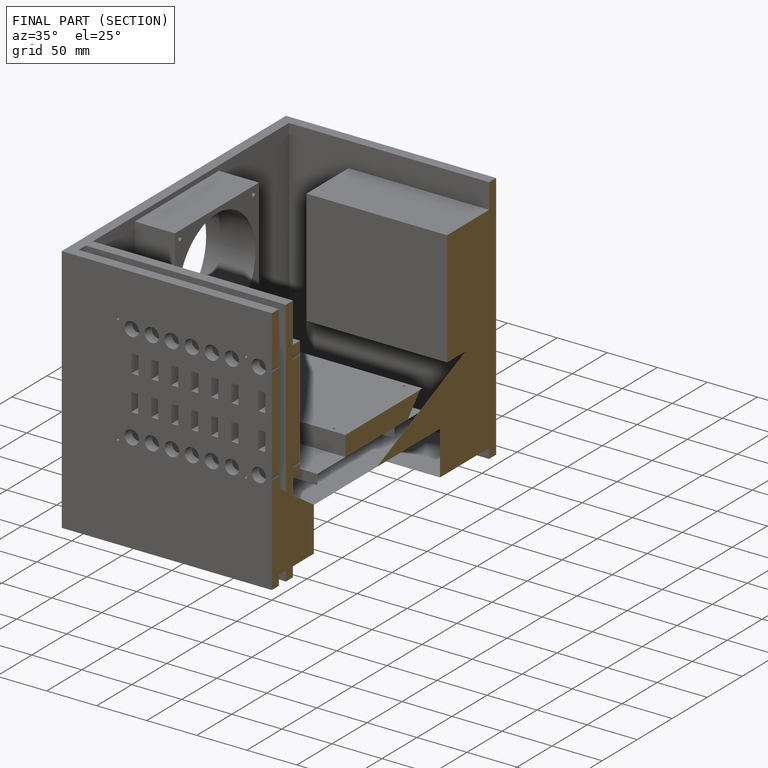
[diagram: finished part — half-section view (interior)]
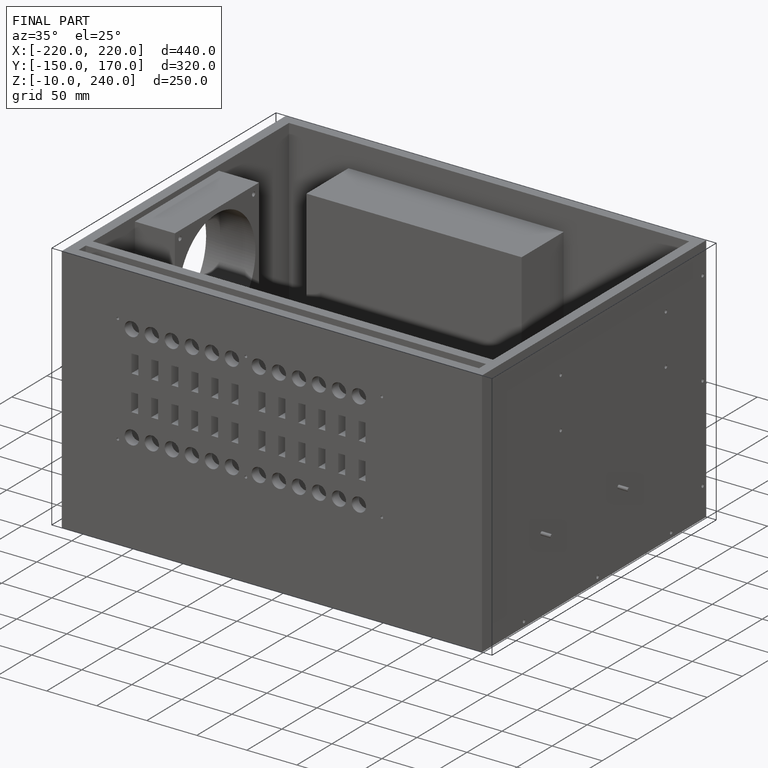
[diagram: finished part — iso view with bounding-box wireframe]
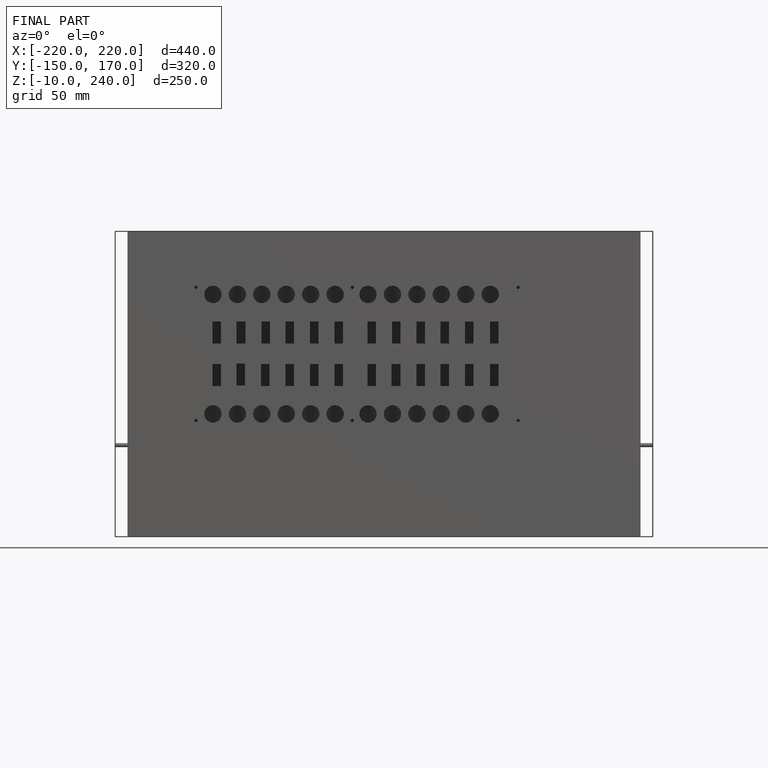
[diagram: finished part — front view with bounding-box wireframe]
